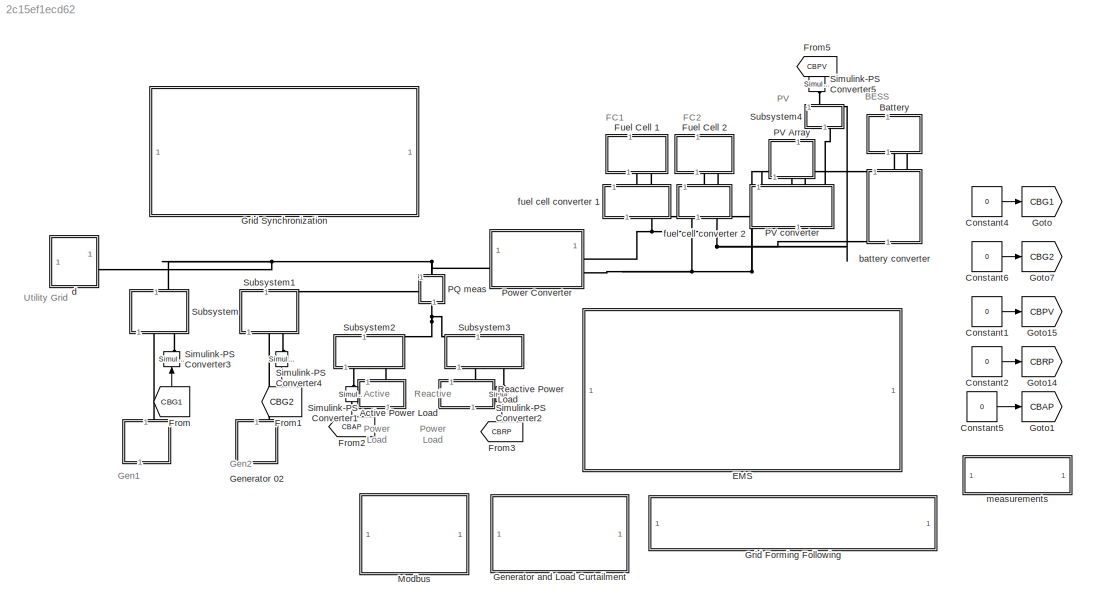
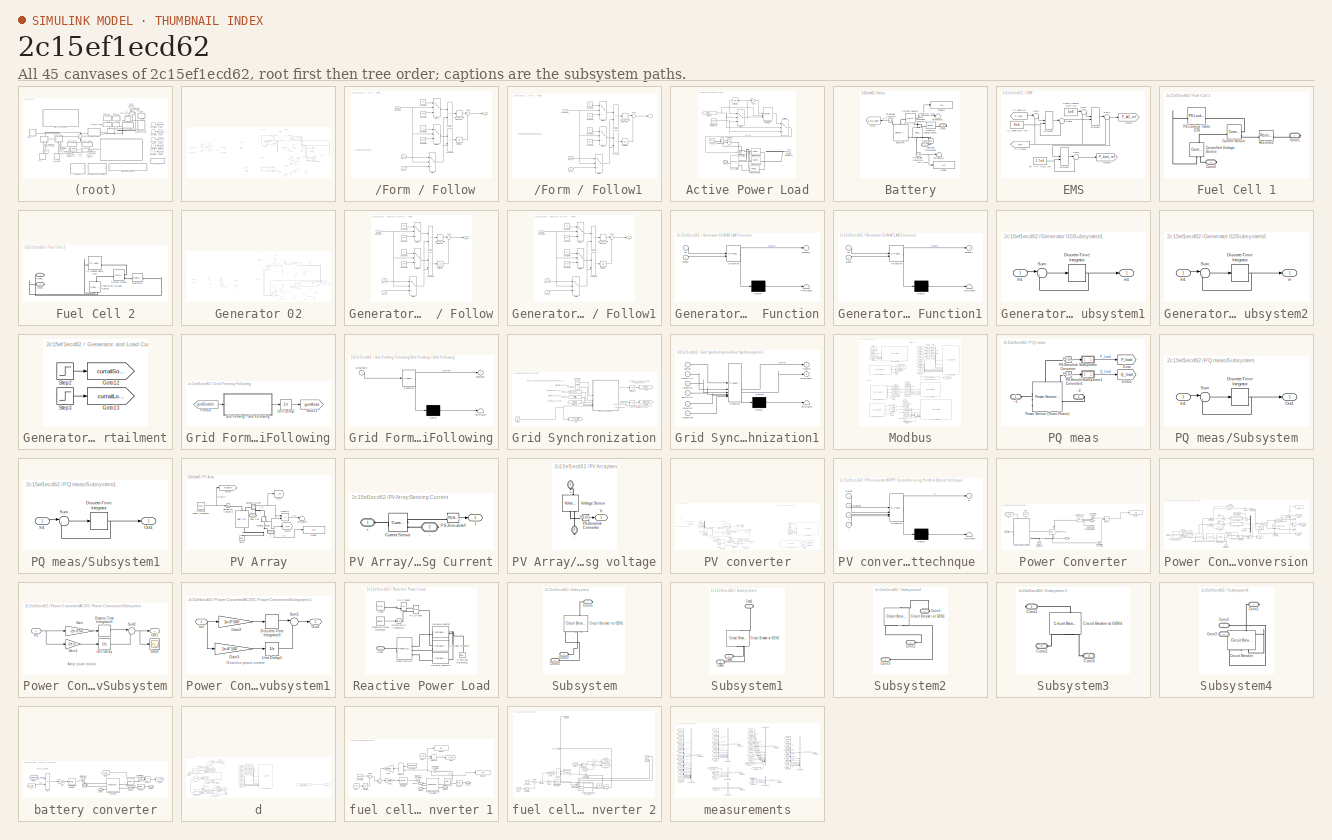
[diagram: thumbnail index - all 45 canvases of the model, root first then tree order]
MODEL slx_2c15ef1ecd62
KIND model
CONFIG AbsTol = auto
CONFIG EnableMultiTasking = off
CONFIG FixedStep = auto
CONFIG MaxStep = auto
CONFIG MinStep = auto
CONFIG RelTol = 1e-3
CONFIG SampleTimeConstraint = Unconstrained
CONFIG SolverName = VariableStepAuto
CONFIG StartTime = 0.0
CONFIG StopTime = 270
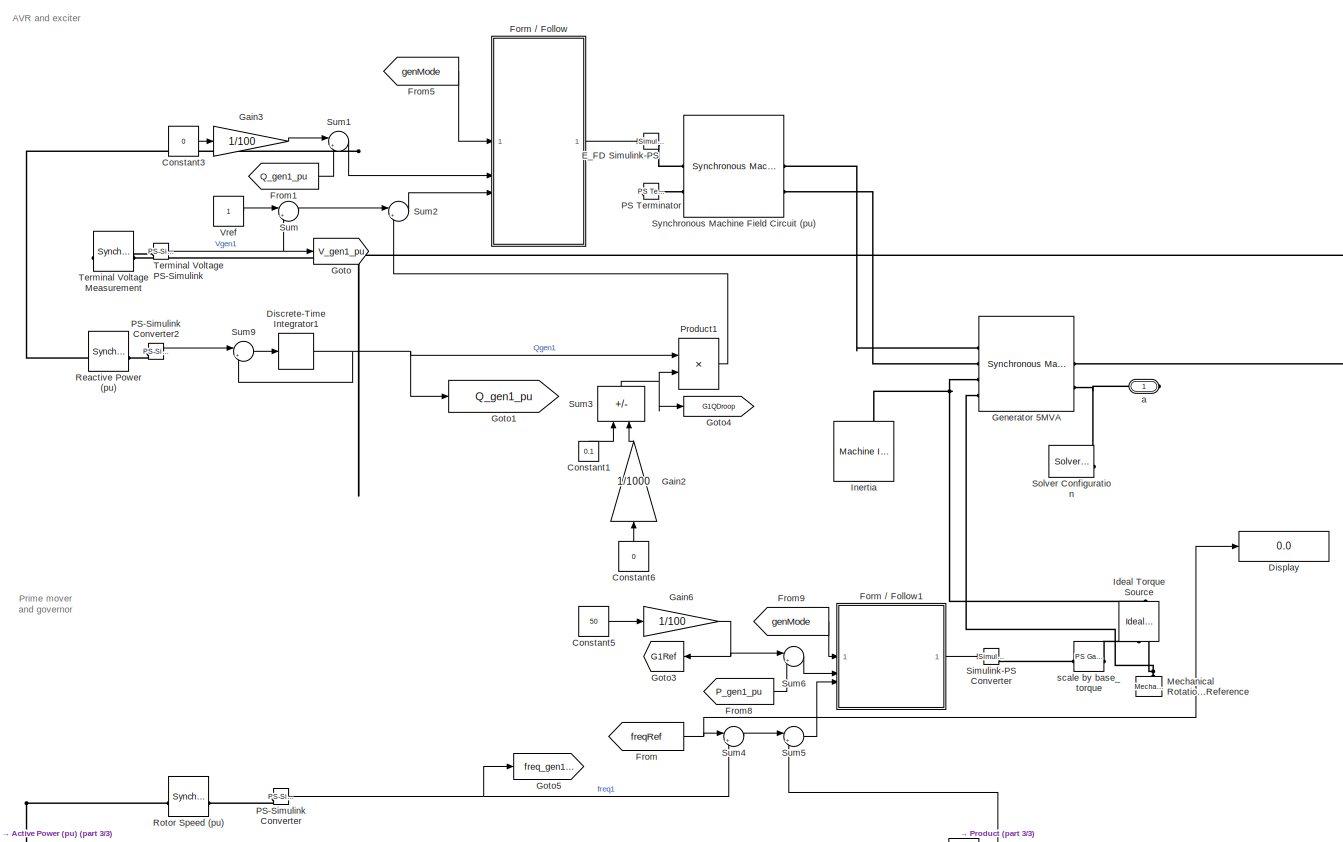
[diagram:   - part 1/3, right side, full height]
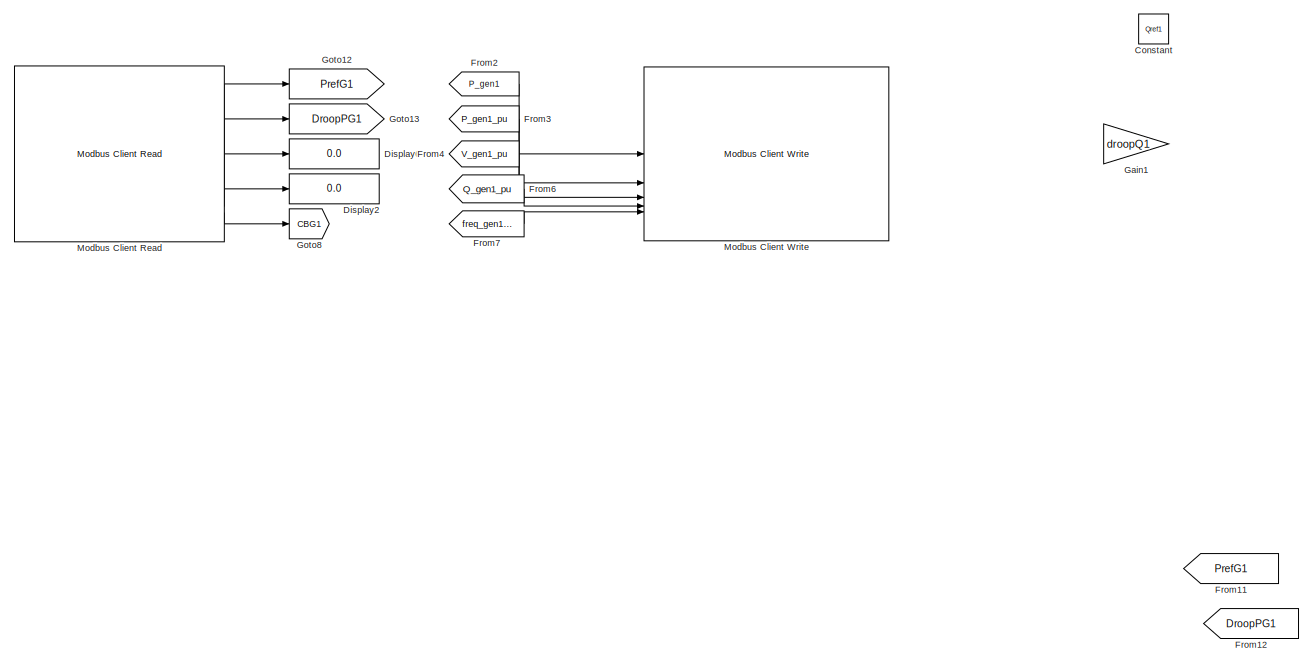
[diagram:   - part 2/3, middle left region]
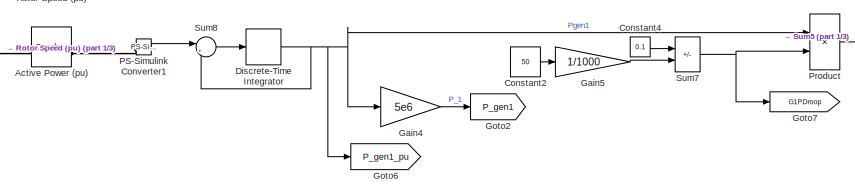
[diagram:   - part 3/3, bottom right region]
BLOCK [SubSystem]  
  NameLocation = right
  ShowPortLabels = none
BLOCK [Reference]  /Active Power (pu)   REF=ee_lib/Electromechanical/Synchronous/Synchronous Machine
Measurement
  SourceBlock = ee_lib/Electromechanical/Synchronous/Synchronous Machine\nMeasurement
  SourceType = Synchronous Machine\nMeasurement
BLOCK [Constant]  /Constant
  Value = Qref1
BLOCK [Constant]  /Constant1
  NameLocation = right
  Value = 0.1
BLOCK [Constant]  /Constant2
  Value = 50
BLOCK [Constant]  /Constant3
  Value = 0
BLOCK [Constant]  /Constant4
  Value = 0.1
BLOCK [Constant]  /Constant5
  Value = 50
BLOCK [Constant]  /Constant6
  NameLocation = right
  Value = 0
BLOCK [DiscreteIntegrator]  /Discrete-Time Integrator
  ICPrevOutput = DiscIntNeverNeededParam
  ICPrevScaledInput = DiscIntNeverNeededParam
  InitialConditionSetting = Auto
  SampleTime = Ts_AC
  gainval = 20
BLOCK [DiscreteIntegrator]  /Discrete-Time Integrator1
  ICPrevOutput = DiscIntNeverNeededParam
  ICPrevScaledInput = DiscIntNeverNeededParam
  InitialConditionSetting = Auto
  SampleTime = Ts_AC
  gainval = 20
BLOCK [Display]  /Display
  Decimation = 1
BLOCK [Display]  /Display2
  Commented = on
  Decimation = 4
  Format = decimal (Stored Integer)
BLOCK [Display]  /Display6
  Commented = on
  Decimation = 4
  Format = decimal (Stored Integer)
BLOCK [Reference]  /E_FD Simulink-PS   REF=nesl_utility/Simulink-PS
Converter
  SourceBlock = nesl_utility/Simulink-PS\nConverter
  SourceType = Simulink-PS\nConverter
BLOCK [SubSystem]  /Form // Follow
  NameLocation = top
BLOCK [Constant]  /Form // Follow/Constant1
  Value = 500
BLOCK [Constant]  /Form // Follow/Constant2
  Value = 0.5
BLOCK [Constant]  /Form // Follow/Constant3
  Value = 1000
BLOCK [Constant]  /Form // Follow/Constant4
BLOCK [DiscreteIntegrator]  /Form // Follow/Discrete-Time Integrator
  ICPrevOutput = DiscIntNeverNeededParam
  ICPrevScaledInput = DiscIntNeverNeededParam
  InitialCondition = 0.1
  InitialConditionSetting = Auto
  SampleTime = Ts_AC
  gainval = 1
BLOCK [Product]  /Form // Follow/Product
BLOCK [Product]  /Form // Follow/Product1
BLOCK [Inport]  /Form // Follow/Qerror
  Port = 2
BLOCK [Sum]  /Form // Follow/Sum4
  Inputs = |++
BLOCK [Switch]  /Form // Follow/Switch
  Criteria = u2 > Threshold
  InputSameDT = off
  SaturateOnIntegerOverflow = off
BLOCK [Switch]  /Form // Follow/Switch1
  Criteria = u2 > Threshold
  InputSameDT = off
  SaturateOnIntegerOverflow = off
BLOCK [Switch]  /Form // Follow/Switch2
  Criteria = u2 > Threshold
  InputSameDT = off
  SaturateOnIntegerOverflow = off
BLOCK [Outport]  /Form // Follow/T
BLOCK [UnitDelay]  /Form // Follow/Unit Delay
  HasFrameUpgradeWarning = on
  SampleTime = Ts_AC
BLOCK [Inport]  /Form // Follow/Verror
  Port = 3
BLOCK [Inport]  /Form // Follow/genMode
BLOCK [SubSystem]  /Form // Follow1
  NameLocation = top
BLOCK [Constant]  /Form // Follow1/Constant1
  Value = 100
BLOCK [Constant]  /Form // Follow1/Constant2
  Value = 0.3
BLOCK [Constant]  /Form // Follow1/Constant3
  Value = 200
BLOCK [Constant]  /Form // Follow1/Constant4
  Value = 0.1
BLOCK [DiscreteIntegrator]  /Form // Follow1/Discrete-Time Integrator
  ICPrevOutput = DiscIntNeverNeededParam
  ICPrevScaledInput = DiscIntNeverNeededParam
  InitialCondition = 0.1
  InitialConditionSetting = Auto
  SampleTime = Ts_AC
  gainval = 1
BLOCK [Inport]  /Form // Follow1/Ferror
  Port = 3
BLOCK [Inport]  /Form // Follow1/Perror
  Port = 2
BLOCK [Product]  /Form // Follow1/Product
BLOCK [Product]  /Form // Follow1/Product1
BLOCK [Sum]  /Form // Follow1/Sum4
  Inputs = |++
BLOCK [Switch]  /Form // Follow1/Switch
  Criteria = u2 > Threshold
  InputSameDT = off
  SaturateOnIntegerOverflow = off
BLOCK [Switch]  /Form // Follow1/Switch1
  Criteria = u2 > Threshold
  InputSameDT = off
  SaturateOnIntegerOverflow = off
BLOCK [Switch]  /Form // Follow1/Switch2
  Criteria = u2 > Threshold
  InputSameDT = off
  SaturateOnIntegerOverflow = off
BLOCK [Outport]  /Form // Follow1/T
BLOCK [UnitDelay]  /Form // Follow1/Unit Delay
  HasFrameUpgradeWarning = on
  SampleTime = Ts_AC
BLOCK [Inport]  /Form // Follow1/genMode
BLOCK [From]  /From
  GotoTag = freqRef
  TagVisibility = global
BLOCK [From]  /From1
  GotoTag = Q_gen1_pu
  TagVisibility = global
BLOCK [From]  /From11
  Commented = on
  GotoTag = PrefG1
BLOCK [From]  /From12
  Commented = on
  GotoTag = DroopPG1
BLOCK [From]  /From2
  Commented = on
  GotoTag = P_gen1
  TagVisibility = global
BLOCK [From]  /From3
  Commented = on
  GotoTag = P_gen1_pu
  TagVisibility = global
BLOCK [From]  /From4
  Commented = on
  GotoTag = V_gen1_pu
  TagVisibility = global
BLOCK [From]  /From5
  GotoTag = genMode
  TagVisibility = global
BLOCK [From]  /From6
  Commented = on
  GotoTag = Q_gen1_pu
  TagVisibility = global
BLOCK [From]  /From7
  Commented = on
  GotoTag = freq_gen1_pu
  TagVisibility = global
BLOCK [From]  /From8
  GotoTag = P_gen1_pu
  TagVisibility = global
BLOCK [From]  /From9
  GotoTag = genMode
  TagVisibility = global
BLOCK [Gain]  /Gain1
  Gain = droopQ1
BLOCK [Gain]  /Gain2
  Gain = 1/1000
  NameLocation = right
BLOCK [Gain]  /Gain3
  Gain = 1/100
BLOCK [Gain]  /Gain4
  Gain = 5e6
BLOCK [Gain]  /Gain5
  Gain = 1/1000
BLOCK [Gain]  /Gain6
  Gain = 1/100
BLOCK [Reference]  /Generator 5MVA  REF=ee_lib/Electromechanical/Synchronous/Synchronous Machine
Salient Pole
  SourceBlock = ee_lib/Electromechanical/Synchronous/Synchronous Machine\nSalient Pole
  SourceType = Synchronous Machine\nSalient Pole
BLOCK [Goto]  /Goto
  GotoTag = V_gen1_pu
  TagVisibility = global
BLOCK [Goto]  /Goto1
  GotoTag = Q_gen1_pu
  TagVisibility = global
BLOCK [Goto]  /Goto12
  Commented = on
  GotoTag = PrefG1
  TagVisibility = global
BLOCK [Goto]  /Goto13
  Commented = on
  GotoTag = DroopPG1
  TagVisibility = global
BLOCK [Goto]  /Goto2
  GotoTag = P_gen1
  TagVisibility = global
BLOCK [Goto]  /Goto3
  GotoTag = G1Ref
  TagVisibility = global
BLOCK [Goto]  /Goto4
  GotoTag = G1QDroop
  TagVisibility = global
BLOCK [Goto]  /Goto5
  GotoTag = freq_gen1_pu
  TagVisibility = global
BLOCK [Goto]  /Goto6
  GotoTag = P_gen1_pu
  TagVisibility = global
BLOCK [Goto]  /Goto7
  GotoTag = G1PDroop
  TagVisibility = global
BLOCK [Goto]  /Goto8
  Commented = on
  GotoTag = CBG1
  TagVisibility = global
BLOCK [Reference]  /Ideal Torque Source  REF=fl_lib/Mechanical/Mechanical Sources/Ideal Torque Source
  NameLocation = left
  SourceBlock = fl_lib/Mechanical/Mechanical Sources/Ideal Torque Source
  SourceType = Ideal Torque Source
BLOCK [Reference]  /Inertia  REF=ee_lib/Electromechanical/Mechanical/Machine
Inertia
  NameLocation = right
  SourceBlock = ee_lib/Electromechanical/Mechanical/Machine\nInertia
  SourceType = Machine\nInertia
BLOCK [Reference]  /Mechanical Rotational Reference  REF=fl_lib/Mechanical/Rotational Elements/Mechanical
Rotational Reference
  NameLocation = right
  SourceBlock = fl_lib/Mechanical/Rotational Elements/Mechanical\nRotational Reference
  SourceType = Mechanical\nRotational Reference
BLOCK [Reference]  /Modbus Client Read  REF=modbuslib/Modbus Client Read
  Commented = on
  SourceBlock = modbuslib/Modbus Client Read
  SourceType = modbusRead
BLOCK [Reference]  /Modbus Client Write  REF=modbuslib/Modbus Client Write
  Commented = on
  SourceBlock = modbuslib/Modbus Client Write
  SourceType = modbusWrite
BLOCK [Reference]  /PS Terminator  REF=fl_lib/Physical Signals/Sinks/PS Terminator
  NameLocation = top
  SourceBlock = fl_lib/Physical Signals/Sinks/PS Terminator
  SourceType = PS Terminator
BLOCK [Reference]  /PS-Simulink Converter  REF=nesl_utility/PS-Simulink
Converter
  SourceBlock = nesl_utility/PS-Simulink\nConverter
  SourceType = PS-Simulink\nConverter
BLOCK [Reference]  /PS-Simulink Converter1  REF=nesl_utility/PS-Simulink
Converter
  SourceBlock = nesl_utility/PS-Simulink\nConverter
  SourceType = PS-Simulink\nConverter
BLOCK [Reference]  /PS-Simulink Converter2  REF=nesl_utility/PS-Simulink
Converter
  SourceBlock = nesl_utility/PS-Simulink\nConverter
  SourceType = PS-Simulink\nConverter
BLOCK [Product]  /Product
BLOCK [Product]  /Product1
BLOCK [Reference]  /Reactive Power (pu)  REF=ee_lib/Electromechanical/Synchronous/Synchronous Machine
Measurement
  SourceBlock = ee_lib/Electromechanical/Synchronous/Synchronous Machine\nMeasurement
  SourceType = Synchronous Machine\nMeasurement
BLOCK [Reference]  /Rotor Speed (pu)  REF=ee_lib/Electromechanical/Synchronous/Synchronous Machine
Measurement
  SourceBlock = ee_lib/Electromechanical/Synchronous/Synchronous Machine\nMeasurement
  SourceType = Synchronous Machine\nMeasurement
BLOCK [Reference]  /Simulink-PS Converter  REF=nesl_utility/Simulink-PS
Converter
  SourceBlock = nesl_utility/Simulink-PS\nConverter
  SourceType = Simulink-PS\nConverter
BLOCK [Reference]  /Solver Configuration  REF=nesl_utility/Solver
Configuration
  SourceBlock = nesl_utility/Solver\nConfiguration
  SourceType = Solver\nConfiguration
BLOCK [Sum]  /Sum
  Inputs = |+-
BLOCK [Sum]  /Sum1
  Inputs = |+-
BLOCK [Sum]  /Sum2
  Inputs = |+-
BLOCK [Sum]  /Sum3
  IconShape = rectangular
  Inputs = +-
  NameLocation = right
BLOCK [Sum]  /Sum4
  Inputs = |+-
BLOCK [Sum]  /Sum5
  Inputs = |+-
BLOCK [Sum]  /Sum6
  Inputs = |+-
BLOCK [Sum]  /Sum7
  IconShape = rectangular
  Inputs = +-
BLOCK [Sum]  /Sum8
  Inputs = |+-
BLOCK [Sum]  /Sum9
  Inputs = |+-
BLOCK [Reference]  /Synchronous Machine Field Circuit (pu)  REF=ee_lib/Electromechanical/Synchronous/Synchronous Machine
Field Circuit
  SourceBlock = ee_lib/Electromechanical/Synchronous/Synchronous Machine\nField Circuit
  SourceType = Synchronous Machine\nField Circuit
BLOCK [Reference]  /Terminal Voltage Measurement  REF=ee_lib/Electromechanical/Synchronous/Synchronous Machine
Measurement
  SourceBlock = ee_lib/Electromechanical/Synchronous/Synchronous Machine\nMeasurement
  SourceType = Synchronous Machine\nMeasurement
BLOCK [Reference]  /Terminal Voltage PS-Simulink  REF=nesl_utility/PS-Simulink
Converter
  SourceBlock = nesl_utility/PS-Simulink\nConverter
  SourceType = PS-Simulink\nConverter
BLOCK [Constant]  /Vref
  NameLocation = top
  SampleTime = Ts_AC
BLOCK [PMIOPort]  /a
  Side = Right
BLOCK [Reference]  /scale by base_torque  REF=fl_lib/Physical Signals/Functions/PS Gain
  SourceBlock = fl_lib/Physical Signals/Functions/PS Gain
  SourceType = PS Gain
BLOCK [SubSystem] Active Power Load
  NameLocation = left
  ShowPortLabels = none
BLOCK [Reference] Active Power Load/Active Power Reference  REF=simulink/Sources/Repeating
Sequence
Interpolated
  SourceBlock = simulink/Sources/Repeating\nSequence\nInterpolated
  SourceType = Repeating Sequence Interpolated
BLOCK [PMIOPort] Active Power Load/Conn1
  Side = Left
BLOCK [DiscreteIntegrator] Active Power Load/Discrete-Time Integrator
  ExternalReset = rising
  ICPrevOutput = DiscIntNeverNeededParam
  ICPrevScaledInput = DiscIntNeverNeededParam
  InitialConditionSetting = Auto
  InitialConditionSource = external
  LimitOutput = on
  LowerSaturationLimit = 6e6
  SampleTime = -1
  gainval = 1e-2
BLOCK [Reference] Active Power Load/Electrical Reference2  REF=fl_lib/Electrical/Electrical Elements/Electrical Reference
  NameLocation = top
  SourceBlock = fl_lib/Electrical/Electrical Elements/Electrical Reference
  SourceType = Electrical Reference
BLOCK [From] Active Power Load/From10
  GotoTag = curtailLoad
  TagVisibility = global
BLOCK [Gain] Active Power Load/Gain
  Gain = -1
BLOCK [Reference] Active Power Load/PS Divide1  REF=fl_lib/Physical Signals/Functions/PS Divide
  SourceBlock = fl_lib/Physical Signals/Functions/PS Divide
  SourceType = PS Divide
BLOCK [Reference] Active Power Load/PS Product1  REF=fl_lib/Physical Signals/Functions/PS Product
  SourceBlock = fl_lib/Physical Signals/Functions/PS Product
  SourceType = PS Product
BLOCK [Reference] Active Power Load/Phase Splitter  REF=ee_lib/Connectors &
References/Phase Splitter
  SourceBlock = ee_lib/Connectors &\nReferences/Phase Splitter
  SourceType = Phase Splitter
BLOCK [Reference] Active Power Load/Simulink-PS Converter2  REF=nesl_utility/Simulink-PS
Converter
  SourceBlock = nesl_utility/Simulink-PS\nConverter
  SourceType = Simulink-PS\nConverter
BLOCK [Switch] Active Power Load/Switch
  Criteria = u2 > Threshold
  InputSameDT = off
  SaturateOnIntegerOverflow = off
BLOCK [Switch] Active Power Load/Switch 
  Criteria = u2 > Threshold
  InputSameDT = off
  SaturateOnIntegerOverflow = off
BLOCK [UnitDelay] Active Power Load/Unit Delay
  HasFrameUpgradeWarning = on
  SampleTime = -1
BLOCK [Reference] Active Power Load/Variable Resistor  REF=fl_lib/Electrical/Electrical Elements/Variable Resistor
  SourceBlock = fl_lib/Electrical/Electrical Elements/Variable Resistor
  SourceType = Variable Resistor
BLOCK [Reference] Active Power Load/Variable Resistor1  REF=fl_lib/Electrical/Electrical Elements/Variable Resistor
  SourceBlock = fl_lib/Electrical/Electrical Elements/Variable Resistor
  SourceType = Variable Resistor
BLOCK [Reference] Active Power Load/Variable Resistor2  REF=fl_lib/Electrical/Electrical Elements/Variable Resistor
  SourceBlock = fl_lib/Electrical/Electrical Elements/Variable Resistor
  SourceType = Variable Resistor
BLOCK [Reference] Active Power Load/Vnom1  REF=fl_lib/Physical Signals/Sources/PS Constant
  SourceBlock = fl_lib/Physical Signals/Sources/PS Constant
  SourceType = PS Constant
BLOCK [SubSystem] Battery
  NameLocation = left
  ShowPortLabels = none
BLOCK [Reference] Battery/Battery1  REF=batteryecm_lib/Battery
(Table-Based)
  NameLocation = left
  SourceBlock = batteryecm_lib/Battery\n(Table-Based)
  SourceType = Battery\n(Table-Based)
BLOCK [PMIOPort] Battery/Conn1
  Side = Right
BLOCK [PMIOPort] Battery/Conn2
  Port = 2
  Side = Right
BLOCK [Reference] Battery/Current Sensor1  REF=fl_lib/Electrical/Electrical Sensors/Current Sensor
  SourceBlock = fl_lib/Electrical/Electrical Sensors/Current Sensor
  SourceType = Current Sensor
BLOCK [Display] Battery/Display
  Decimation = 1
BLOCK [Display] Battery/Display1
  Decimation = 1
BLOCK [Reference] Battery/Electrical Reference1  REF=fl_lib/Electrical/Electrical Elements/Electrical Reference
  NameLocation = top
  SourceBlock = fl_lib/Electrical/Electrical Elements/Electrical Reference
  SourceType = Electrical Reference
BLOCK [Goto] Battery/Goto
  GotoTag = SOC_batt
  NameLocation = top
  TagVisibility = global
BLOCK [Reference] Battery/PS-Simulink Converter  REF=nesl_utility/PS-Simulink
Converter
  NameLocation = top
  SourceBlock = nesl_utility/PS-Simulink\nConverter
  SourceType = PS-Simulink\nConverter
BLOCK [Reference] Battery/PS-Simulink Converter1  REF=nesl_utility/PS-Simulink
Converter
  SourceBlock = nesl_utility/PS-Simulink\nConverter
  SourceType = PS-Simulink\nConverter
BLOCK [Reference] Battery/PS-Simulink Converter4  REF=nesl_utility/PS-Simulink
Converter
  SourceBlock = nesl_utility/PS-Simulink\nConverter
  SourceType = PS-Simulink\nConverter
BLOCK [Reference] Battery/Resistor1  REF=fl_lib/Electrical/Electrical Elements/Resistor
  SourceBlock = fl_lib/Electrical/Electrical Elements/Resistor
  SourceType = Resistor
BLOCK [Terminator] Battery/Terminator1
BLOCK [Terminator] Battery/Terminator2
BLOCK [Reference] Battery/Voltage Sensor  REF=fl_lib/Electrical/Electrical Sensors/Voltage Sensor
  NameLocation = right
  SourceBlock = fl_lib/Electrical/Electrical Sensors/Voltage Sensor
  SourceType = Voltage Sensor
BLOCK [Constant] Constant1
  Value = 0
BLOCK [Constant] Constant2
  Value = 0
BLOCK [Constant] Constant4
  Value = 0
BLOCK [Constant] Constant5
  Value = 0
BLOCK [Constant] Constant6
  Value = 0
BLOCK [SubSystem] EMS
BLOCK [From] EMS/AC Load (W)
  GotoTag = P_load
  NameLocation = top
  TagVisibility = global
BLOCK [Constant] EMS/AC Load Limit (W)
  SampleTime = Ts_DC
  Value = 8e6
BLOCK [Constant] EMS/FC + PV limit (W)
  SampleTime = Ts_DC
  Value = 1.7e6
BLOCK [Goto] EMS/Goto14
  GotoTag = P_AC_ref
  TagVisibility = global
BLOCK [Goto] EMS/Goto15
  GotoTag = P_batt_ref
  TagVisibility = global
BLOCK [MinMax] EMS/MinMax1
  Function = max
  Inputs = 2
BLOCK [MinMax] EMS/MinMax2
  Inputs = 2
BLOCK [MinMax] EMS/MinMax3
  Function = max
  Inputs = 2
BLOCK [From] EMS/PV Power
  GotoTag = P_PV
  TagVisibility = global
BLOCK [Constant] EMS/Power Transfer Limit (W)
  NameLocation = top
  SampleTime = Ts_DC
  Value = 5e6
BLOCK [Sum] EMS/Sum1
  Inputs = |+-
BLOCK [Sum] EMS/Sum2
  Inputs = |+-
BLOCK [Sum] EMS/Sum3
  Inputs = |+-
BLOCK [Sum] EMS/Sum4
  Inputs = |++
BLOCK [Sum] EMS/Sum5
  Inputs = |+-
BLOCK [From] From
  GotoTag = CBG1
  NameLocation = right
BLOCK [From] From1
  GotoTag = CBG2
  NameLocation = right
BLOCK [From] From2
  GotoTag = CBAP
  NameLocation = right
BLOCK [From] From3
  GotoTag = CBRP
  NameLocation = right
BLOCK [From] From5
  GotoTag = CBPV
  NameLocation = left
BLOCK [SubSystem] Fuel Cell 1
  NameLocation = left
  ShowPortLabels = none
BLOCK [PMIOPort] Fuel Cell 1/Conn1
  Side = Right
BLOCK [PMIOPort] Fuel Cell 1/Conn2
  Port = 2
  Side = Right
BLOCK [Reference] Fuel Cell 1/Controlled Voltage Source  REF=fl_lib/Electrical/Electrical Sources/Controlled Voltage
Source
  NameLocation = right
  SourceBlock = fl_lib/Electrical/Electrical Sources/Controlled Voltage\nSource
  SourceType = Controlled Voltage\nSource
BLOCK [Reference] Fuel Cell 1/Current Sensor  REF=fl_lib/Electrical/Electrical Sensors/Current Sensor
  SourceBlock = fl_lib/Electrical/Electrical Sensors/Current Sensor
  SourceType = Current Sensor
BLOCK [Reference] Fuel Cell 1/PS Lookup Table (1D)  REF=fl_lib/Physical Signals/Lookup Tables/PS Lookup Table (1D)
  NameLocation = top
  SourceBlock = fl_lib/Physical Signals/Lookup Tables/PS Lookup Table (1D)
  SourceType = PS Lookup Table (1D)
BLOCK [Reference] Fuel Cell 1/Resistor2  REF=fl_lib/Electrical/Electrical Elements/Resistor
  SourceBlock = fl_lib/Electrical/Electrical Elements/Resistor
  SourceType = Resistor
BLOCK [SubSystem] Fuel Cell 2
  NameLocation = left
  ShowPortLabels = none
BLOCK [PMIOPort] Fuel Cell 2/Conn1
  Side = Right
BLOCK [PMIOPort] Fuel Cell 2/Conn2
  Port = 2
  Side = Right
BLOCK [Reference] Fuel Cell 2/Controlled Voltage Source  REF=fl_lib/Electrical/Electrical Sources/Controlled Voltage
Source
  NameLocation = right
  SourceBlock = fl_lib/Electrical/Electrical Sources/Controlled Voltage\nSource
  SourceType = Controlled Voltage\nSource
BLOCK [Reference] Fuel Cell 2/Current Sensor  REF=fl_lib/Electrical/Electrical Sensors/Current Sensor
  SourceBlock = fl_lib/Electrical/Electrical Sensors/Current Sensor
  SourceType = Current Sensor
BLOCK [Reference] Fuel Cell 2/PS Lookup Table (1D)  REF=fl_lib/Physical Signals/Lookup Tables/PS Lookup Table (1D)
  NameLocation = top
  SourceBlock = fl_lib/Physical Signals/Lookup Tables/PS Lookup Table (1D)
  SourceType = PS Lookup Table (1D)
BLOCK [Reference] Fuel Cell 2/Resistor2  REF=fl_lib/Electrical/Electrical Elements/Resistor
  SourceBlock = fl_lib/Electrical/Electrical Elements/Resistor
  SourceType = Resistor
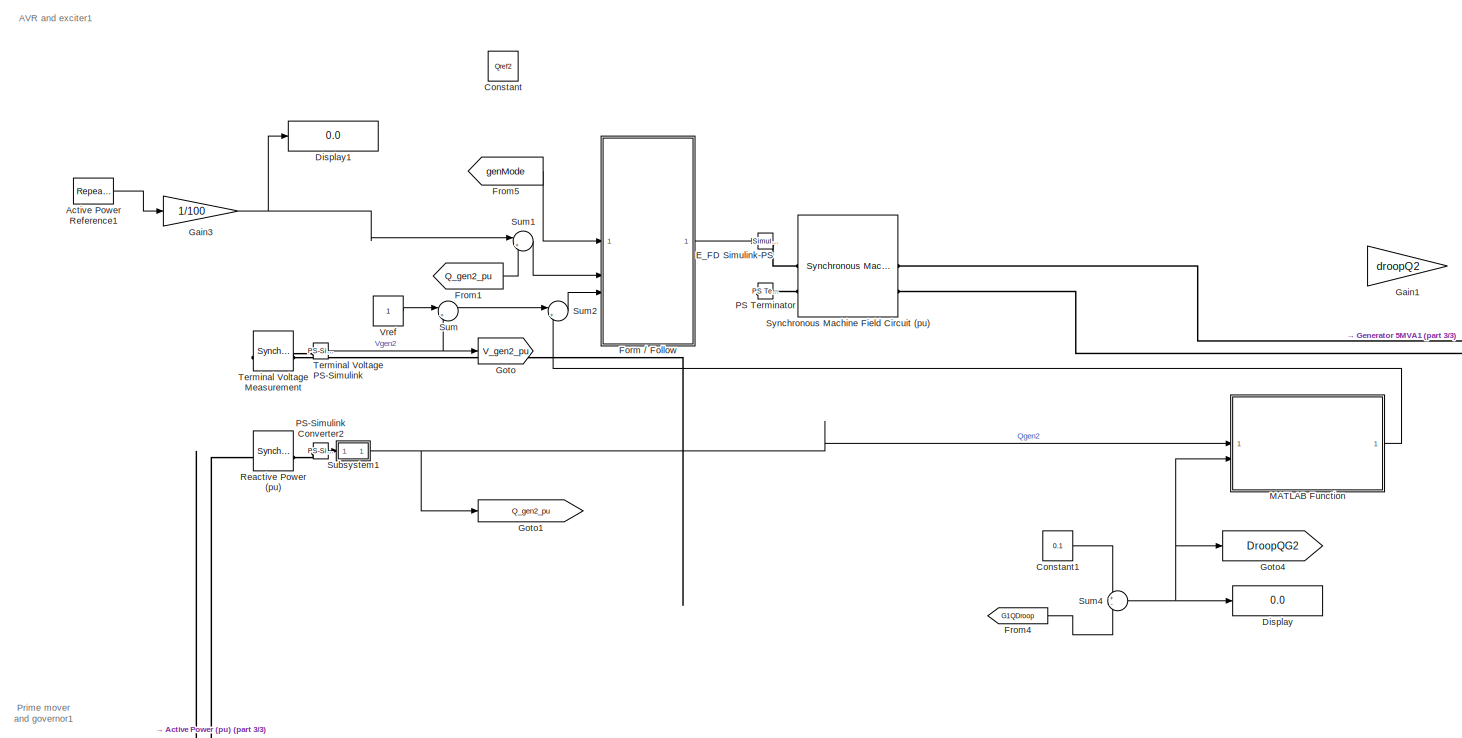
[diagram: Generator 02 - part 1/3, top right region]
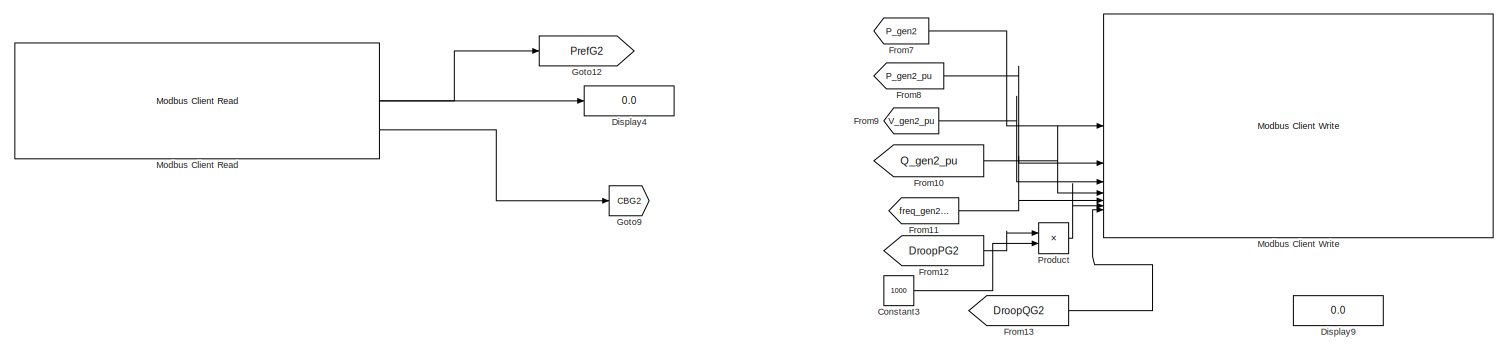
[diagram: Generator 02 - part 2/3, middle left region]
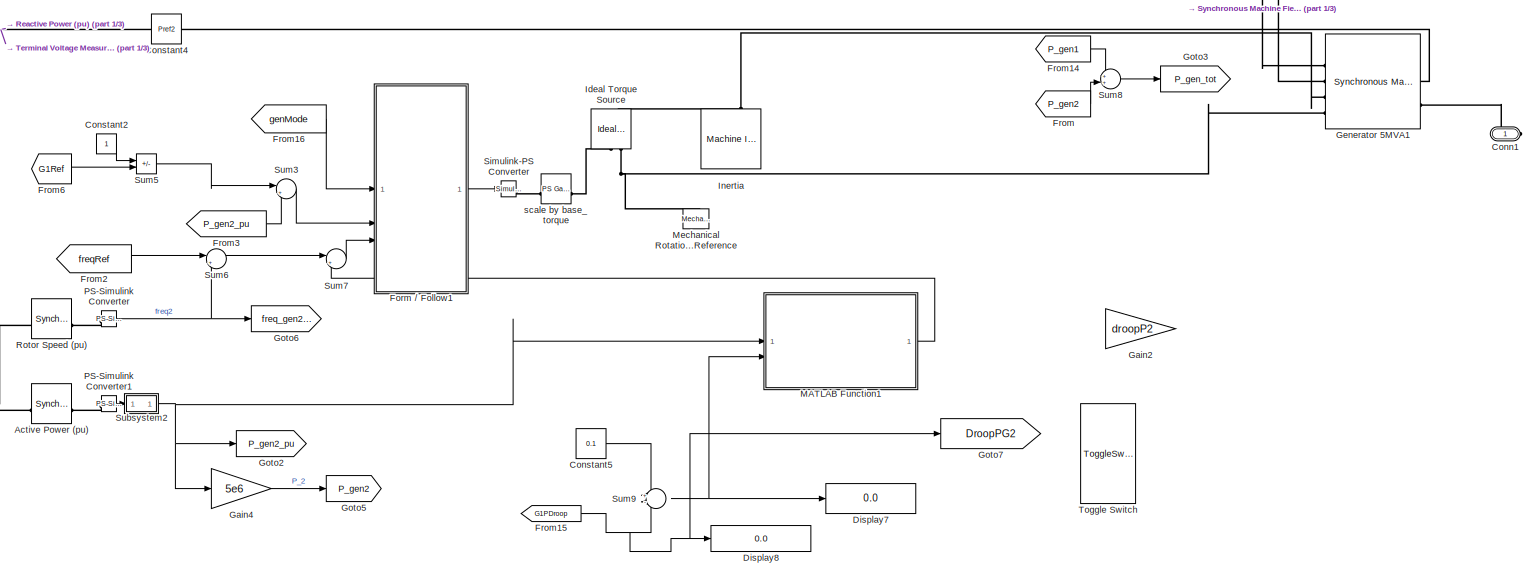
[diagram: Generator 02 - part 3/3, bottom right region]
BLOCK [SubSystem] Generator 02
  NameLocation = right
  ShowPortLabels = none
BLOCK [Reference] Generator 02/Active Power (pu)   REF=ee_lib/Electromechanical/Synchronous/Synchronous Machine
Measurement
  SourceBlock = ee_lib/Electromechanical/Synchronous/Synchronous Machine\nMeasurement
  SourceType = Synchronous Machine\nMeasurement
BLOCK [Reference] Generator 02/Active Power Reference1  REF=simulink/Sources/Repeating
Sequence
Interpolated
  SourceBlock = simulink/Sources/Repeating\nSequence\nInterpolated
  SourceType = Repeating Sequence Interpolated
BLOCK [PMIOPort] Generator 02/Conn1
  Side = Right
BLOCK [Constant] Generator 02/Constant
  Value = Qref2
BLOCK [Constant] Generator 02/Constant1
  Value = 0.1
BLOCK [Constant] Generator 02/Constant2
BLOCK [Constant] Generator 02/Constant3
  Commented = on
  Value = 1000
BLOCK [Constant] Generator 02/Constant4
  Value = Pref2
BLOCK [Constant] Generator 02/Constant5
  Value = 0.1
BLOCK [Display] Generator 02/Display
  Decimation = 1
BLOCK [Display] Generator 02/Display1
  Decimation = 1
BLOCK [Display] Generator 02/Display4
  Commented = on
  Decimation = 4
  Format = decimal (Stored Integer)
BLOCK [Display] Generator 02/Display7
  Decimation = 1
BLOCK [Display] Generator 02/Display8
  Decimation = 1
BLOCK [Display] Generator 02/Display9
  Commented = on
  Decimation = 1
BLOCK [Reference] Generator 02/E_FD Simulink-PS   REF=nesl_utility/Simulink-PS
Converter
  SourceBlock = nesl_utility/Simulink-PS\nConverter
  SourceType = Simulink-PS\nConverter
BLOCK [SubSystem] Generator 02/Form // Follow
  NameLocation = top
BLOCK [Constant] Generator 02/Form // Follow/Constant1
  Value = 500
BLOCK [Constant] Generator 02/Form // Follow/Constant2
  Value = 0.5
BLOCK [Constant] Generator 02/Form // Follow/Constant3
  Value = 1000
BLOCK [Constant] Generator 02/Form // Follow/Constant4
BLOCK [DiscreteIntegrator] Generator 02/Form // Follow/Discrete-Time Integrator
  ICPrevOutput = DiscIntNeverNeededParam
  ICPrevScaledInput = DiscIntNeverNeededParam
  InitialCondition = 0.1
  InitialConditionSetting = Auto
  SampleTime = Ts_AC
  gainval = 1
BLOCK [Product] Generator 02/Form // Follow/Product
BLOCK [Product] Generator 02/Form // Follow/Product1
BLOCK [Inport] Generator 02/Form // Follow/Qerror
  Port = 2
BLOCK [Sum] Generator 02/Form // Follow/Sum4
  Inputs = |++
BLOCK [Switch] Generator 02/Form // Follow/Switch
  Criteria = u2 > Threshold
  InputSameDT = off
  SaturateOnIntegerOverflow = off
BLOCK [Switch] Generator 02/Form // Follow/Switch1
  Criteria = u2 > Threshold
  InputSameDT = off
  SaturateOnIntegerOverflow = off
BLOCK [Switch] Generator 02/Form // Follow/Switch2
  Criteria = u2 > Threshold
  InputSameDT = off
  SaturateOnIntegerOverflow = off
BLOCK [Outport] Generator 02/Form // Follow/T
BLOCK [UnitDelay] Generator 02/Form // Follow/Unit Delay
  HasFrameUpgradeWarning = on
  SampleTime = Ts_AC
BLOCK [Inport] Generator 02/Form // Follow/Verror
  Port = 3
BLOCK [Inport] Generator 02/Form // Follow/genMode
BLOCK [SubSystem] Generator 02/Form // Follow1
  NameLocation = top
BLOCK [Constant] Generator 02/Form // Follow1/Constant1
  Value = 100
BLOCK [Constant] Generator 02/Form // Follow1/Constant2
  Value = 0.3
BLOCK [Constant] Generator 02/Form // Follow1/Constant3
  Value = 200
BLOCK [Constant] Generator 02/Form // Follow1/Constant4
  Value = 0.1
BLOCK [DiscreteIntegrator] Generator 02/Form // Follow1/Discrete-Time Integrator
  ICPrevOutput = DiscIntNeverNeededParam
  ICPrevScaledInput = DiscIntNeverNeededParam
  InitialCondition = 0.1
  InitialConditionSetting = Auto
  SampleTime = Ts_AC
  gainval = 1
BLOCK [Inport] Generator 02/Form // Follow1/Ferror
  Port = 3
BLOCK [Inport] Generator 02/Form // Follow1/Perror
  Port = 2
BLOCK [Product] Generator 02/Form // Follow1/Product
BLOCK [Product] Generator 02/Form // Follow1/Product1
BLOCK [Sum] Generator 02/Form // Follow1/Sum4
  Inputs = |++
BLOCK [Switch] Generator 02/Form // Follow1/Switch
  Criteria = u2 > Threshold
  InputSameDT = off
  SaturateOnIntegerOverflow = off
BLOCK [Switch] Generator 02/Form // Follow1/Switch1
  Criteria = u2 > Threshold
  InputSameDT = off
  SaturateOnIntegerOverflow = off
BLOCK [Switch] Generator 02/Form // Follow1/Switch2
  Criteria = u2 > Threshold
  InputSameDT = off
  SaturateOnIntegerOverflow = off
BLOCK [Outport] Generator 02/Form // Follow1/T
BLOCK [UnitDelay] Generator 02/Form // Follow1/Unit Delay
  HasFrameUpgradeWarning = on
  SampleTime = Ts_AC
BLOCK [Inport] Generator 02/Form // Follow1/genMode
BLOCK [From] Generator 02/From
  GotoTag = P_gen2
  TagVisibility = global
BLOCK [From] Generator 02/From1
  GotoTag = Q_gen2_pu
  TagVisibility = global
BLOCK [From] Generator 02/From10
  Commented = on
  GotoTag = Q_gen2_pu
  TagVisibility = global
BLOCK [From] Generator 02/From11
  Commented = on
  GotoTag = freq_gen2_pu
  TagVisibility = global
BLOCK [From] Generator 02/From12
  Commented = on
  GotoTag = DroopPG2
  TagVisibility = global
BLOCK [From] Generator 02/From13
  Commented = on
  GotoTag = DroopQG2
  TagVisibility = global
BLOCK [From] Generator 02/From14
  GotoTag = P_gen1
  TagVisibility = global
BLOCK [From] Generator 02/From15
  GotoTag = G1PDroop
  TagVisibility = global
BLOCK [From] Generator 02/From16
  GotoTag = genMode
  TagVisibility = global
BLOCK [From] Generator 02/From2
  GotoTag = freqRef
  TagVisibility = global
BLOCK [From] Generator 02/From3
  GotoTag = P_gen2_pu
  TagVisibility = global
BLOCK [From] Generator 02/From4
  GotoTag = G1QDroop
  TagVisibility = global
BLOCK [From] Generator 02/From5
  GotoTag = genMode
  TagVisibility = global
BLOCK [From] Generator 02/From6
  GotoTag = G1Ref
  TagVisibility = global
BLOCK [From] Generator 02/From7
  Commented = on
  GotoTag = P_gen2
  TagVisibility = global
BLOCK [From] Generator 02/From8
  Commented = on
  GotoTag = P_gen2_pu
  TagVisibility = global
BLOCK [From] Generator 02/From9
  Commented = on
  GotoTag = V_gen2_pu
  TagVisibility = global
BLOCK [Gain] Generator 02/Gain1
  Gain = droopQ2
BLOCK [Gain] Generator 02/Gain2
  Commented = on
  Gain = droopP2
BLOCK [Gain] Generator 02/Gain3
  Gain = 1/100
BLOCK [Gain] Generator 02/Gain4
  Gain = 5e6
BLOCK [Reference] Generator 02/Generator 5MVA1  REF=ee_lib/Electromechanical/Synchronous/Synchronous Machine
Salient Pole
  SourceBlock = ee_lib/Electromechanical/Synchronous/Synchronous Machine\nSalient Pole
  SourceType = Synchronous Machine\nSalient Pole
BLOCK [Goto] Generator 02/Goto
  GotoTag = V_gen2_pu
  TagVisibility = global
BLOCK [Goto] Generator 02/Goto1
  GotoTag = Q_gen2_pu
  TagVisibility = global
BLOCK [Goto] Generator 02/Goto12
  Commented = on
  GotoTag = PrefG2
  TagVisibility = global
BLOCK [Goto] Generator 02/Goto2
  GotoTag = P_gen2_pu
  TagVisibility = global
BLOCK [Goto] Generator 02/Goto3
  GotoTag = P_gen_tot
  TagVisibility = global
BLOCK [Goto] Generator 02/Goto4
  GotoTag = DroopQG2
  TagVisibility = global
BLOCK [Goto] Generator 02/Goto5
  GotoTag = P_gen2
  TagVisibility = global
BLOCK [Goto] Generator 02/Goto6
  GotoTag = freq_gen2_pu
  TagVisibility = global
BLOCK [Goto] Generator 02/Goto7
  GotoTag = DroopPG2
  TagVisibility = global
BLOCK [Goto] Generator 02/Goto9
  Commented = on
  GotoTag = CBG2
  TagVisibility = global
BLOCK [Reference] Generator 02/Ideal Torque Source  REF=fl_lib/Mechanical/Mechanical Sources/Ideal Torque Source
  NameLocation = left
  SourceBlock = fl_lib/Mechanical/Mechanical Sources/Ideal Torque Source
  SourceType = Ideal Torque Source
BLOCK [Reference] Generator 02/Inertia  REF=ee_lib/Electromechanical/Mechanical/Machine
Inertia
  NameLocation = right
  SourceBlock = ee_lib/Electromechanical/Mechanical/Machine\nInertia
  SourceType = Machine\nInertia
BLOCK [SubSystem] Generator 02/MATLAB Function
  ErrorFcn = Stateflow.Translate.translate
  PermitHierarchicalResolution = ExplicitOnly
  SFBlockType = MATLAB Function
  TreatAsAtomicUnit = on
BLOCK [Demux] Generator 02/MATLAB Function/ Demux 
  Outputs = 1
BLOCK [S-Function] Generator 02/MATLAB Function/ SFunction 
  EnableBusSupport = on
  FunctionName = sf_sfun
  PortCounts = [2 2]
  SFcnIsStateOwnerBlock = off
  SFunctionDeploymentMode = off
  Tag = Stateflow S-Function 7
BLOCK [Terminator] Generator 02/MATLAB Function/ Terminator 
BLOCK [Inport] Generator 02/MATLAB Function/alpha1
  Port = 2
BLOCK [Outport] Generator 02/MATLAB Function/droopQ2
BLOCK [Inport] Generator 02/MATLAB Function/in1
BLOCK [SubSystem] Generator 02/MATLAB Function1
  ErrorFcn = Stateflow.Translate.translate
  PermitHierarchicalResolution = ExplicitOnly
  SFBlockType = MATLAB Function
  TreatAsAtomicUnit = on
BLOCK [Demux] Generator 02/MATLAB Function1/ Demux 
  Outputs = 1
BLOCK [S-Function] Generator 02/MATLAB Function1/ SFunction 
  EnableBusSupport = on
  FunctionName = sf_sfun
  PortCounts = [2 2]
  SFcnIsStateOwnerBlock = off
  SFunctionDeploymentMode = off
  Tag = Stateflow S-Function 5
BLOCK [Terminator] Generator 02/MATLAB Function1/ Terminator 
BLOCK [Inport] Generator 02/MATLAB Function1/alpha1
  Port = 2
BLOCK [Outport] Generator 02/MATLAB Function1/droopP2
BLOCK [Inport] Generator 02/MATLAB Function1/in1
BLOCK [Reference] Generator 02/Mechanical Rotational Reference  REF=fl_lib/Mechanical/Rotational Elements/Mechanical
Rotational Reference
  NameLocation = right
  SourceBlock = fl_lib/Mechanical/Rotational Elements/Mechanical\nRotational Reference
  SourceType = Mechanical\nRotational Reference
BLOCK [Reference] Generator 02/Modbus Client Read  REF=modbuslib/Modbus Client Read
  Commented = on
  SourceBlock = modbuslib/Modbus Client Read
  SourceType = modbusRead
BLOCK [Reference] Generator 02/Modbus Client Write  REF=modbuslib/Modbus Client Write
  Commented = on
  SourceBlock = modbuslib/Modbus Client Write
  SourceType = modbusWrite
BLOCK [Reference] Generator 02/PS Terminator  REF=fl_lib/Physical Signals/Sinks/PS Terminator
  NameLocation = top
  SourceBlock = fl_lib/Physical Signals/Sinks/PS Terminator
  SourceType = PS Terminator
BLOCK [Reference] Generator 02/PS-Simulink Converter  REF=nesl_utility/PS-Simulink
Converter
  SourceBlock = nesl_utility/PS-Simulink\nConverter
  SourceType = PS-Simulink\nConverter
BLOCK [Reference] Generator 02/PS-Simulink Converter1  REF=nesl_utility/PS-Simulink
Converter
  SourceBlock = nesl_utility/PS-Simulink\nConverter
  SourceType = PS-Simulink\nConverter
BLOCK [Reference] Generator 02/PS-Simulink Converter2  REF=nesl_utility/PS-Simulink
Converter
  SourceBlock = nesl_utility/PS-Simulink\nConverter
  SourceType = PS-Simulink\nConverter
BLOCK [Product] Generator 02/Product
  Commented = on
BLOCK [Reference] Generator 02/Reactive Power (pu)  REF=ee_lib/Electromechanical/Synchronous/Synchronous Machine
Measurement
  SourceBlock = ee_lib/Electromechanical/Synchronous/Synchronous Machine\nMeasurement
  SourceType = Synchronous Machine\nMeasurement
BLOCK [Reference] Generator 02/Rotor Speed (pu)  REF=ee_lib/Electromechanical/Synchronous/Synchronous Machine
Measurement
  SourceBlock = ee_lib/Electromechanical/Synchronous/Synchronous Machine\nMeasurement
  SourceType = Synchronous Machine\nMeasurement
BLOCK [Reference] Generator 02/Simulink-PS Converter  REF=nesl_utility/Simulink-PS
Converter
  SourceBlock = nesl_utility/Simulink-PS\nConverter
  SourceType = Simulink-PS\nConverter
BLOCK [SubSystem] Generator 02/Subsystem1
BLOCK [DiscreteIntegrator] Generator 02/Subsystem1/Discrete-Time Integrator
  ICPrevOutput = DiscIntNeverNeededParam
  ICPrevScaledInput = DiscIntNeverNeededParam
  InitialConditionSetting = Auto
  SampleTime = Ts_AC
  gainval = 20
BLOCK [Inport] Generator 02/Subsystem1/In1
BLOCK [Sum] Generator 02/Subsystem1/Sum
  Inputs = |+-
BLOCK [Outport] Generator 02/Subsystem1/in1
BLOCK [SubSystem] Generator 02/Subsystem2
BLOCK [DiscreteIntegrator] Generator 02/Subsystem2/Discrete-Time Integrator
  ICPrevOutput = DiscIntNeverNeededParam
  ICPrevScaledInput = DiscIntNeverNeededParam
  InitialConditionSetting = Auto
  SampleTime = Ts_AC
  gainval = 20
BLOCK [Inport] Generator 02/Subsystem2/In1
BLOCK [Sum] Generator 02/Subsystem2/Sum
  Inputs = |+-
BLOCK [Outport] Generator 02/Subsystem2/in
BLOCK [Sum] Generator 02/Sum
  Inputs = |+-
BLOCK [Sum] Generator 02/Sum1
  Inputs = |+-
BLOCK [Sum] Generator 02/Sum2
  Inputs = |+-
BLOCK [Sum] Generator 02/Sum3
  Inputs = |+-
BLOCK [Sum] Generator 02/Sum4
  Inputs = +-
BLOCK [Sum] Generator 02/Sum5
  IconShape = rectangular
  Inputs = +-
BLOCK [Sum] Generator 02/Sum6
  Inputs = |+-
BLOCK [Sum] Generator 02/Sum7
  Inputs = |+-
BLOCK [Sum] Generator 02/Sum8
BLOCK [Sum] Generator 02/Sum9
  Inputs = +-
BLOCK [Reference] Generator 02/Synchronous Machine Field Circuit (pu)  REF=ee_lib/Electromechanical/Synchronous/Synchronous Machine
Field Circuit
  SourceBlock = ee_lib/Electromechanical/Synchronous/Synchronous Machine\nField Circuit
  SourceType = Synchronous Machine\nField Circuit
BLOCK [Reference] Generator 02/Terminal Voltage Measurement  REF=ee_lib/Electromechanical/Synchronous/Synchronous Machine
Measurement
  SourceBlock = ee_lib/Electromechanical/Synchronous/Synchronous Machine\nMeasurement
  SourceType = Synchronous Machine\nMeasurement
BLOCK [Reference] Generator 02/Terminal Voltage PS-Simulink  REF=nesl_utility/PS-Simulink
Converter
  SourceBlock = nesl_utility/PS-Simulink\nConverter
  SourceType = PS-Simulink\nConverter
BLOCK [ToggleSwitchBlock] Generator 02/Toggle Switch
BLOCK [Constant] Generator 02/Vref
  NameLocation = top
  SampleTime = Ts_AC
BLOCK [Reference] Generator 02/scale by base_torque  REF=fl_lib/Physical Signals/Functions/PS Gain
  SourceBlock = fl_lib/Physical Signals/Functions/PS Gain
  SourceType = PS Gain
BLOCK [SubSystem] Generator and Load Curtailment
BLOCK [Goto] Generator and Load Curtailment/Goto12
  GotoTag = curtailSolar
  TagVisibility = global
BLOCK [Goto] Generator and Load Curtailment/Goto13
  GotoTag = curtailLoad
  TagVisibility = global
BLOCK [Step] Generator and Load Curtailment/Step2
  SampleTime = Ts_AC
  Time = timeSolarCurtail
BLOCK [Step] Generator and Load Curtailment/Step3
  SampleTime = Ts_AC
  Time = timeACLoadCurtail
BLOCK [Goto] Goto
  GotoTag = CBG1
  NameLocation = top
BLOCK [Goto] Goto1
  GotoTag = CBAP
BLOCK [Goto] Goto14
  GotoTag = CBRP
BLOCK [Goto] Goto15
  GotoTag = CBPV
BLOCK [Goto] Goto7
  GotoTag = CBG2
  NameLocation = top
BLOCK [SubSystem] Grid Forming Following
BLOCK [From] Grid Forming Following/From14
  GotoTag = gridEnable
  TagVisibility = global
BLOCK [Goto] Grid Forming Following/Goto11
  GotoTag = genMode
  TagVisibility = global
BLOCK [SubSystem] Grid Forming Following/Grid Forming // Grid Following
  ErrorFcn = Stateflow.Translate.translate
  LibrarySourceBlock = simulink/User-Defined\nFunctions/MATLAB Function
  PermitHierarchicalResolution = ExplicitOnly
  SFBlockType = MATLAB Function
  TreatAsAtomicUnit = on
BLOCK [Demux] Grid Forming Following/Grid Forming // Grid Following/ Demux 
  Outputs = 1
BLOCK [S-Function] Grid Forming Following/Grid Forming // Grid Following/ SFunction 
  EnableBusSupport = on
  FunctionName = sf_sfun
  PortCounts = [1 2]
  SFcnIsStateOwnerBlock = off
  SFunctionDeploymentMode = off
  Tag = Stateflow S-Function 3
BLOCK [Terminator] Grid Forming Following/Grid Forming // Grid Following/ Terminator 
BLOCK [Outport] Grid Forming Following/Grid Forming // Grid Following/genMode
BLOCK [Inport] Grid Forming Following/Grid Forming // Grid Following/gridEnable
BLOCK [UnitDelay] Grid Forming Following/Unit Delay2
  HasFrameUpgradeWarning = on
  InitialCondition = 1
  SampleTime = Ts_AC
BLOCK [SubSystem] Grid Synchronization
BLOCK [Constant] Grid Synchronization/Constant1
  NameLocation = top
  Value = 1e-5
BLOCK [Constant] Grid Synchronization/Constant2
  NameLocation = top
BLOCK [From] Grid Synchronization/From11
  GotoTag = freq_gen1_pu
  TagVisibility = global
BLOCK [From] Grid Synchronization/From12
  GotoTag = phiUtility
  TagVisibility = global
BLOCK [From] Grid Synchronization/From13
  GotoTag = phiMicro
  TagVisibility = global
BLOCK [Goto] Grid Synchronization/Goto
  GotoTag = synchStart
  TagVisibility = global
BLOCK [Goto] Grid Synchronization/Goto8
  GotoTag = gridEnable
  TagVisibility = global
BLOCK [Goto] Grid Synchronization/Goto9
  GotoTag = freqRef
  TagVisibility = global
BLOCK [SubSystem] Grid Synchronization/Grid Synchronization1
  ErrorFcn = Stateflow.Translate.translate
  LibrarySourceBlock = simulink/User-Defined\nFunctions/MATLAB Function
  PermitHierarchicalResolution = ExplicitOnly
  SFBlockType = MATLAB Function
  TreatAsAtomicUnit = on
BLOCK [Demux] Grid Synchronization/Grid Synchronization1/ Demux 
  Outputs = 1
BLOCK [S-Function] Grid Synchronization/Grid Synchronization1/ SFunction 
  EnableBusSupport = on
  FunctionName = sf_sfun
  PortCounts = [6 3]
  SFcnIsStateOwnerBlock = off
  SFunctionDeploymentMode = off
  Tag = Stateflow S-Function 2
BLOCK [Terminator] Grid Synchronization/Grid Synchronization1/ Terminator 
BLOCK [Inport] Grid Synchronization/Grid Synchronization1/deltaF
BLOCK [Inport] Grid Synchronization/Grid Synchronization1/freqMicro
  Port = 3
BLOCK [Outport] Grid Synchronization/Grid Synchronization1/freqRef
BLOCK [Inport] Grid Synchronization/Grid Synchronization1/freqUtility
  Port = 2
BLOCK [Outport] Grid Synchronization/Grid Synchronization1/gridEnable
  Port = 2
BLOCK [Inport] Grid Synchronization/Grid Synchronization1/phiMicro
  Port = 5
BLOCK [Inport] Grid Synchronization/Grid Synchronization1/phiUtility
  Port = 4
BLOCK [Inport] Grid Synchronization/Grid Synchronization1/synchStart
  Port = 6
BLOCK [Step] Grid Synchronization/Step
  After = 0
  Before = 1
  SampleTime = 0
  Time = 27
BLOCK [UnitDelay] Grid Synchronization/Unit Delay
  HasFrameUpgradeWarning = on
  InitialCondition = 1
  SampleTime = Ts_AC
BLOCK [UnitDelay] Grid Synchronization/Unit Delay1
  HasFrameUpgradeWarning = on
  InitialCondition = 1
  SampleTime = Ts_AC
BLOCK [SubSystem] Modbus
  Commented = on
BLOCK [Constant] Modbus/Constant3
  Value = 1000
BLOCK [From] Modbus/From1
  GotoTag = P_gen2
  TagVisibility = global
BLOCK [From] Modbus/From10
  GotoTag = Q_gen2_pu
  TagVisibility = global
BLOCK [From] Modbus/From11
  GotoTag = freq_gen2_pu
  TagVisibility = global
BLOCK [From] Modbus/From12
  GotoTag = DroopPG2
  TagVisibility = global
BLOCK [From] Modbus/From13
  GotoTag = DroopQG2
  TagVisibility = global
BLOCK [From] Modbus/From14
  GotoTag = I_PV
  TagVisibility = global
BLOCK [From] Modbus/From15
  GotoTag = V_PV
  TagVisibility = global
BLOCK [From] Modbus/From16
  GotoTag = P_PV
  TagVisibility = global
BLOCK [From] Modbus/From17
  GotoTag = duty_cycle
  TagVisibility = global
BLOCK [From] Modbus/From2
  GotoTag = P_gen1
  TagVisibility = global
BLOCK [From] Modbus/From3
  GotoTag = P_gen1_pu
  TagVisibility = global
BLOCK [From] Modbus/From4
  GotoTag = V_gen1_pu
  TagVisibility = global
BLOCK [From] Modbus/From44
  GotoTag = vUtility
  TagVisibility = global
BLOCK [From] Modbus/From45
  GotoTag = Pgrid
  TagVisibility = global
BLOCK [From] Modbus/From46
  GotoTag = vMicro
  TagVisibility = global
BLOCK [From] Modbus/From47
  GotoTag = iUtility
  TagVisibility = global
BLOCK [From] Modbus/From48
  GotoTag = iMicro
  TagVisibility = global
BLOCK [From] Modbus/From49
  GotoTag = phiUtility
  TagVisibility = global
BLOCK [From] Modbus/From5
  GotoTag = irradiance
  TagVisibility = global
BLOCK [From] Modbus/From50
  GotoTag = phiMicro
  TagVisibility = global
BLOCK [From] Modbus/From51
  GotoTag = Qgrid
  TagVisibility = global
BLOCK [From] Modbus/From52
  GotoTag = gridEnable
  TagVisibility = global
BLOCK [From] Modbus/From6
  GotoTag = Q_gen1_pu
  TagVisibility = global
BLOCK [From] Modbus/From7
  GotoTag = freq_gen1_pu
  TagVisibility = global
BLOCK [From] Modbus/From8
  GotoTag = P_gen2_pu
  TagVisibility = global
BLOCK [From] Modbus/From9
  GotoTag = V_gen2_pu
  TagVisibility = global
BLOCK [Goto] Modbus/Goto1
  GotoTag = PrefG2
  TagVisibility = global
BLOCK [Goto] Modbus/Goto10
  GotoTag = synchStart
  TagVisibility = global
BLOCK [Goto] Modbus/Goto12
  GotoTag = PrefG1
  TagVisibility = global
BLOCK [Goto] Modbus/Goto13
  GotoTag = DroopPG1
  TagVisibility = global
BLOCK [Goto] Modbus/Goto2
  GotoTag = QrefG2
  TagVisibility = global
BLOCK [Goto] Modbus/Goto3
  GotoTag = QrefG1
  TagVisibility = global
BLOCK [Goto] Modbus/Goto4
  GotoTag = CBPV
  TagVisibility = global
BLOCK [Goto] Modbus/Goto5
  GotoTag = PVCurtailEnable
  TagVisibility = global
BLOCK [Goto] Modbus/Goto6
  GotoTag = DroopQG1
  TagVisibility = global
BLOCK [Goto] Modbus/Goto8
  GotoTag = CBG1
  TagVisibility = global
BLOCK [Goto] Modbus/Goto9
  GotoTag = CBG2
  TagVisibility = global
BLOCK [Reference] Modbus/Modbus Client Read  REF=modbuslib/Modbus Client Read
  SourceBlock = modbuslib/Modbus Client Read
  SourceType = modbusRead
BLOCK [Reference] Modbus/Modbus Client Read1  REF=modbuslib/Modbus Client Read
  SourceBlock = modbuslib/Modbus Client Read
  SourceType = modbusRead
BLOCK [Reference] Modbus/Modbus Client Read2  REF=modbuslib/Modbus Client Read
  SourceBlock = modbuslib/Modbus Client Read
  SourceType = modbusRead
BLOCK [Reference] Modbus/Modbus Client Read3  REF=modbuslib/Modbus Client Read
  SourceBlock = modbuslib/Modbus Client Read
  SourceType = modbusRead
BLOCK [Reference] Modbus/Modbus Client Write  REF=modbuslib/Modbus Client Write
  SourceBlock = modbuslib/Modbus Client Write
  SourceType = modbusWrite
BLOCK [Reference] Modbus/Modbus Client Write1  REF=modbuslib/Modbus Client Write
  SourceBlock = modbuslib/Modbus Client Write
  SourceType = modbusWrite
BLOCK [Reference] Modbus/Modbus Client Write2  REF=modbuslib/Modbus Client Write
  SourceBlock = modbuslib/Modbus Client Write
  SourceType = modbusWrite
BLOCK [Reference] Modbus/Modbus Client Write3  REF=modbuslib/Modbus Client Write
  SourceBlock = modbuslib/Modbus Client Write
  SourceType = modbusWrite
BLOCK [Product] Modbus/Product
BLOCK [Reference] Modbus/RMS  REF=spsRMSLib/RMS
  LibrarySourceBlock = sps_lib/Sensors and Measurements/RMS
  SourceBlock = spsRMSLib/RMS
  SourceType = RMS
BLOCK [Reference] Modbus/RMS1  REF=spsRMSLib/RMS
  LibrarySourceBlock = sps_lib/Sensors and Measurements/RMS
  SourceBlock = spsRMSLib/RMS
  SourceType = RMS
BLOCK [Reference] Modbus/RMS2  REF=spsRMSLib/RMS
  LibrarySourceBlock = sps_lib/Sensors and Measurements/RMS
  SourceBlock = spsRMSLib/RMS
  SourceType = RMS
BLOCK [Reference] Modbus/RMS3  REF=spsRMSLib/RMS
  LibrarySourceBlock = sps_lib/Sensors and Measurements/RMS
  SourceBlock = spsRMSLib/RMS
  SourceType = RMS
BLOCK [Selector] Modbus/Selector2
  IndexOptions = Index vector (dialog)
  Indices = 1
  InputPortWidth = 3
  OutputSizes = 1
BLOCK [Selector] Modbus/Selector3
  IndexOptions = Index vector (dialog)
  Indices = 1
  InputPortWidth = 3
  OutputSizes = 1
BLOCK [Selector] Modbus/Selector4
  IndexOptions = Index vector (dialog)
  Indices = 1
  InputPortWidth = 3
  OutputSizes = 1
BLOCK [Selector] Modbus/Selector5
  IndexOptions = Index vector (dialog)
  Indices = 1
  InputPortWidth = 3
  OutputSizes = 1
BLOCK [ToWorkspace] Modbus/To Workspace
  FixptAsFi = on
  MaxDataPoints = inf
  SampleTime = -1
  SaveFormat = Timeseries
  VariableName = PVCurtailValue
BLOCK [SubSystem] PQ meas
  NameLocation = left
BLOCK [Goto] PQ meas/Goto
  GotoTag = P_load
  TagVisibility = global
BLOCK [Goto] PQ meas/Goto1
  GotoTag = Q_load
  TagVisibility = global
BLOCK [Reference] PQ meas/PS-Simulink Converter  REF=nesl_utility/PS-Simulink
Converter
  SourceBlock = nesl_utility/PS-Simulink\nConverter
  SourceType = PS-Simulink\nConverter
BLOCK [Reference] PQ meas/PS-Simulink Converter1  REF=nesl_utility/PS-Simulink
Converter
  SourceBlock = nesl_utility/PS-Simulink\nConverter
  SourceType = PS-Simulink\nConverter
BLOCK [Reference] PQ meas/Power Sensor (Three-Phase)  REF=ee_lib/Sensors &
Transducers/Power Sensor
(Three-Phase)
  SourceBlock = ee_lib/Sensors &\nTransducers/Power Sensor\n(Three-Phase)
  SourceType = Power Sensor\n(Three-Phase)
BLOCK [SubSystem] PQ meas/Subsystem
BLOCK [DiscreteIntegrator] PQ meas/Subsystem/Discrete-Time Integrator
  ICPrevOutput = DiscIntNeverNeededParam
  ICPrevScaledInput = DiscIntNeverNeededParam
  InitialConditionSetting = Auto
  SampleTime = Ts_AC
  gainval = 20
BLOCK [Inport] PQ meas/Subsystem/In1
BLOCK [Outport] PQ meas/Subsystem/Out1
BLOCK [Sum] PQ meas/Subsystem/Sum
  Inputs = |+-
BLOCK [SubSystem] PQ meas/Subsystem1
BLOCK [DiscreteIntegrator] PQ meas/Subsystem1/Discrete-Time Integrator
  ICPrevOutput = DiscIntNeverNeededParam
  ICPrevScaledInput = DiscIntNeverNeededParam
  InitialConditionSetting = Auto
  SampleTime = Ts_AC
  gainval = 20
BLOCK [Inport] PQ meas/Subsystem1/In1
BLOCK [Outport] PQ meas/Subsystem1/Out1
BLOCK [Sum] PQ meas/Subsystem1/Sum
  Inputs = |+-
BLOCK [PMIOPort] PQ meas/~1
  Side = Left
BLOCK [PMIOPort] PQ meas/~2
  Port = 2
  Side = Right
BLOCK [SubSystem] PV Array
  NameLocation = right
  ShowPortLabels = none
BLOCK [PMIOPort] PV Array/-
  Side = Left
BLOCK [PMIOPort] PV Array/-1
  NameLocation = top
  Port = 2
  Side = Left
BLOCK [Display] PV Array/Display
  Decimation = 1
BLOCK [Reference] PV Array/ERef  REF=fl_lib/Electrical/Electrical Elements/Electrical Reference
  NameLocation = right
  SourceBlock = fl_lib/Electrical/Electrical Elements/Electrical Reference
  SourceType = Electrical Reference
BLOCK [Goto] PV Array/Goto
  GotoTag = I_PV
  TagVisibility = global
BLOCK [Goto] PV Array/Goto1
  GotoTag = V_PV
  TagVisibility = global
BLOCK [Goto] PV Array/Goto2
  GotoTag = irradiance
  TagVisibility = global
BLOCK [Product] PV Array/Product1
BLOCK [Reference] PV Array/Repeating Sequence Interpolated  REF=simulink/Sources/Repeating
Sequence
Interpolated
  SourceBlock = simulink/Sources/Repeating\nSequence\nInterpolated
  SourceType = Repeating Sequence Interpolated
BLOCK [SubSystem] PV Array/Sensing Current
  PortSchema = {"entries":[{"content":{"sides":[{"content":{"connectorIds":["LConn1"]},"type":"ConnectorPlacement.EquallySpacedRectSide","uuid":"08eaf192-3836-4d70-9f6a-c3aee0977ea6"},{"content":{"connectorIds":["RConn1"],"side":"RIGHT"},"type":"ConnectorPlacement.EquallySpacedRectSide","uuid":"69615d36-c1bf-4d31-b3e4-77c73286e7c7"},{"content":{"connectorIds":["Out1"],"side":"TOP"},"type":"ConnectorPlacement.Equ...<+251ch>
BLOCK [PMIOPort] PV Array/Sensing Current/+
  Side = Left
BLOCK [PMIOPort] PV Array/Sensing Current/-
  Port = 2
  Side = Right
BLOCK [Reference] PV Array/Sensing Current/Current Sensor  REF=fl_lib/Electrical/Electrical Sensors/Current Sensor
  SourceBlock = fl_lib/Electrical/Electrical Sensors/Current Sensor
  SourceType = Current Sensor
BLOCK [Outport] PV Array/Sensing Current/I
BLOCK [Reference] PV Array/Sensing Current/PS-Simulink//I  REF=nesl_utility/PS-Simulink
Converter
  SourceBlock = nesl_utility/PS-Simulink\nConverter
  SourceType = PS-Simulink\nConverter
BLOCK [Reference] PV Array/Simulink-PS Converter  REF=nesl_utility/Simulink-PS
Converter
  SourceBlock = nesl_utility/Simulink-PS\nConverter
  SourceType = Simulink-PS\nConverter
BLOCK [Reference] PV Array/Solar Cell  REF=ee_lib/Sources/Solar Cell
  AttributesFormatString = Amerisolar:AS_6M30_HC_320W
  NameLocation = left
  SourceBlock = ee_lib/Sources/Solar Cell
  SourceType = Solar Cell
BLOCK [Terminator] PV Array/Terminator
BLOCK [SubSystem] PV Array/sensing voltage
  NameLocation = left
  PortSchema = {"entries":[{"content":{"sides":[{"content":{"connectorIds":["LConn1"]},"type":"ConnectorPlacement.EquallySpacedRectSide","uuid":"08eaf192-3836-4d70-9f6a-c3aee0977ea6"},{"content":{"connectorIds":["RConn1"],"side":"RIGHT"},"type":"ConnectorPlacement.EquallySpacedRectSide","uuid":"69615d36-c1bf-4d31-b3e4-77c73286e7c7"},{"content":{"connectorIds":[],"side":"TOP"},"type":"ConnectorPlacement.EquallySp...<+395ch>
BLOCK [PMIOPort] PV Array/sensing voltage/+
  NameLocation = left
  Side = Left
BLOCK [PMIOPort] PV Array/sensing voltage/-
  NameLocation = left
  Port = 2
  Side = Right
BLOCK [Reference] PV Array/sensing voltage/PS-Simulink Converter  REF=nesl_utility/PS-Simulink
Converter
  SourceBlock = nesl_utility/PS-Simulink\nConverter
  SourceType = PS-Simulink\nConverter
BLOCK [Outport] PV Array/sensing voltage/V
BLOCK [Reference] PV Array/sensing voltage/Voltage Sensor  REF=fl_lib/Electrical/Electrical Sensors/Voltage Sensor
  NameLocation = right
  SourceBlock = fl_lib/Electrical/Electrical Sensors/Voltage Sensor
  SourceType = Voltage Sensor
BLOCK [SubSystem] PV converter
  NameLocation = left
  ShowPortLabels = none
BLOCK [Reference] PV converter/Average-Value DC-DC Converter  REF=ee_lib/Semiconductors &
Converters/Converters/Average-Value DC-DC
Converter
  SourceBlock = ee_lib/Semiconductors &\nConverters/Converters/Average-Value DC-DC\nConverter
  SourceType = Average-Value DC-DC\nConverter
BLOCK [PMIOPort] PV converter/Conn1
  Side = Left
BLOCK [PMIOPort] PV converter/Conn2
  NameLocation = top
  Port = 2
  Side = Left
BLOCK [PMIOPort] PV converter/Conn3
  NameLocation = top
  Port = 3
  Side = Left
BLOCK [PMIOPort] PV converter/Conn4
  Port = 4
  Side = Left
BLOCK [Reference] PV converter/Current Sensor  REF=fl_lib/Electrical/Electrical Sensors/Current Sensor
  SourceBlock = fl_lib/Electrical/Electrical Sensors/Current Sensor
  SourceType = Current Sensor
BLOCK [DiscreteIntegrator] PV converter/Discrete-Time Integrator
  ExternalReset = rising
  ICPrevOutput = DiscIntNeverNeededParam
  ICPrevScaledInput = DiscIntNeverNeededParam
  InitialConditionSetting = Auto
  InitialConditionSource = external
  NameLocation = top
  SampleTime = -1
  gainval = 1e-6
BLOCK [Display] PV converter/Display
  Decimation = 1
BLOCK [Step] PV converter/Enable MPPT
  NameLocation = top
  SampleTime = Ts_DC
  Time = 0.1
BLOCK [From] PV converter/From
  GotoTag = I_PV
  TagVisibility = global
BLOCK [From] PV converter/From1
  GotoTag = V_PV
  TagVisibility = global
BLOCK [From] PV converter/From2
  GotoTag = curtailSolar
  TagVisibility = global
BLOCK [From] PV converter/From3
  Commented = on
  GotoTag = irradiance
  TagVisibility = global
BLOCK [From] PV converter/From4
  Commented = on
  GotoTag = I_PV
  TagVisibility = global
BLOCK [From] PV converter/From5
  Commented = on
  GotoTag = V_PV
  TagVisibility = global
BLOCK [From] PV converter/From6
  Commented = on
  GotoTag = P_PV
  TagVisibility = global
BLOCK [From] PV converter/From7
  Commented = on
  GotoTag = duty_cycle
  TagVisibility = global
BLOCK [Goto] PV converter/Goto
  GotoTag = P_PV
  TagVisibility = global
BLOCK [Goto] PV converter/Goto1
  GotoTag = duty_cycle
  TagVisibility = global
BLOCK [Goto] PV converter/Goto2
  GotoTag = V_PVf
  TagVisibility = global
BLOCK [Goto] PV converter/Goto4
  Commented = on
  GotoTag = CBPV
  TagVisibility = global
BLOCK [Constant] PV converter/Iph_
  SampleTime = Ts_DC
  Value = 0.85
BLOCK [Constant] PV converter/Iph_1
  SampleTime = Ts_DC
  Value = 0.85
BLOCK [Constant] PV converter/Iph_2
  SampleTime = Ts_DC
  Value = 0.1
BLOCK [Constant] PV converter/Iph_3
  SampleTime = Ts_DC
  Value = 1.5e-3
BLOCK [SubSystem] PV converter/MPPT Controller using Pertrb & Obsere technque 
  ErrorFcn = Stateflow.Translate.translate
  NameLocation = top
  PermitHierarchicalResolution = ExplicitOnly
  SFBlockType = MATLAB Function
  SystemSampleTime = Ts
  TreatAsGroupedWhenPropagatingVariantConditions = off
BLOCK [Demux] PV converter/MPPT Controller using Pertrb & Obsere technque / Demux 
  Outputs = 1
BLOCK [S-Function] PV converter/MPPT Controller using Pertrb & Obsere technque / SFunction 
  EnableBusSupport = on
  FunctionName = sf_sfun
  PortCounts = [4 2]
  SFcnIsStateOwnerBlock = off
  SFunctionDeploymentMode = off
  Tag = Stateflow S-Function 1
BLOCK [Terminator] PV converter/MPPT Controller using Pertrb & Obsere technque / Terminator 
BLOCK [Outport] PV converter/MPPT Controller using Pertrb & Obsere technque /D
  VectorParamsAs1DForOutWhenUnconnected = off
BLOCK [Inport] PV converter/MPPT Controller using Pertrb & Obsere technque /Enabled
  Port = 2
BLOCK [Inport] PV converter/MPPT Controller using Pertrb & Obsere technque /I
  Port = 4
BLOCK [Inport] PV converter/MPPT Controller using Pertrb & Obsere technque /Param
BLOCK [Inport] PV converter/MPPT Controller using Pertrb & Obsere technque /V
  Port = 3
BLOCK [Reference] PV converter/Modbus Client Read  REF=modbuslib/Modbus Client Read
  Commented = on
  SourceBlock = modbuslib/Modbus Client Read
  SourceType = modbusRead
BLOCK [Reference] PV converter/Modbus Client Write  REF=modbuslib/Modbus Client Write
  Commented = on
  SourceBlock = modbuslib/Modbus Client Write
  SourceType = modbusWrite
BLOCK [Mux] PV converter/Mux
  DisplayOption = bar
BLOCK [Reference] PV converter/PS-Simulink Converter  REF=nesl_utility/PS-Simulink
Converter
  SourceBlock = nesl_utility/PS-Simulink\nConverter
  SourceType = PS-Simulink\nConverter
BLOCK [Reference] PV converter/PS-Simulink Converter1  REF=nesl_utility/PS-Simulink
Converter
  SourceBlock = nesl_utility/PS-Simulink\nConverter
  SourceType = PS-Simulink\nConverter
BLOCK [Constant] PV converter/PV_Curtailed_Power
  Value = 500e3
BLOCK [Product] PV converter/Product
BLOCK [Reference] PV converter/Simulink-PS Converter  REF=nesl_utility/Simulink-PS
Converter
  SourceBlock = nesl_utility/Simulink-PS\nConverter
  SourceType = Simulink-PS\nConverter
BLOCK [Sum] PV converter/Sum
  Inputs = |+-
  NameLocation = top
BLOCK [Switch] PV converter/Switch
  Criteria = u2 > Threshold
  InputSameDT = off
  NameLocation = top
  SaturateOnIntegerOverflow = off
BLOCK [UnitDelay] PV converter/Unit Delay
  HasFrameUpgradeWarning = on
  InitialCondition = 0.99
  SampleTime = -1
BLOCK [Reference] PV converter/Voltage Sensor  REF=fl_lib/Electrical/Electrical Sensors/Voltage Sensor
  NameLocation = top
  SourceBlock = fl_lib/Electrical/Electrical Sensors/Voltage Sensor
  SourceType = Voltage Sensor
BLOCK [Display] PV converter/curtail enable
  Commented = on
  Decimation = 4
  Format = decimal (Stored Integer)
BLOCK [Display] PV converter/curtail value
  Commented = on
  Decimation = 4
  Format = decimal (Stored Integer)
BLOCK [SubSystem] Power Converter
BLOCK [PMIOPort] Power Converter/+
  Port = 2
  Side = Right
BLOCK [PMIOPort] Power Converter/-
  Port = 3
  Side = Right
BLOCK [SubSystem] Power Converter/AC//DC Power Conversion
  PortSchema = {"entries":[{"content":{"sides":[{"content":{"connectorIds":["LConn1"]},"type":"ConnectorPlacement.EquallySpacedRectSide","uuid":"019ca52f-1b20-4f8a-8000-26047d27ba44"},{"content":{"connectorIds":["RConn1","RConn2"],"side":"RIGHT"},"type":"ConnectorPlacement.EquallySpacedRectSide","uuid":"bc0710a3-2fa6-4c07-a357-204360cbd971"},{"content":{"connectorIds":["In1","In2"],"side":"TOP"},"type":"Connecto...<+265ch>
BLOCK [PMIOPort] Power Converter/AC//DC Power Conversion/+
  Port = 2
  Side = Right
BLOCK [PMIOPort] Power Converter/AC//DC Power Conversion/-
  NameLocation = top
  Port = 3
  Side = Right
BLOCK [Constant] Power Converter/AC//DC Power Conversion/Constant1
  Value = 0
BLOCK [Constant] Power Converter/AC//DC Power Conversion/Constant2
  Value = 6600*sqrt(2/3)
BLOCK [Reference] Power Converter/AC//DC Power Conversion/Controlled Current Source  REF=fl_lib/Electrical/Electrical Sources/Controlled Current
Source
  NameLocation = right
  SourceBlock = fl_lib/Electrical/Electrical Sources/Controlled Current\nSource
  SourceType = Controlled Current\nSource
BLOCK [Reference] Power Converter/AC//DC Power Conversion/Controlled Voltage Source (Three-Phase)  REF=ee_lib/Sources/Controlled Voltage
Source
(Three-Phase)
  SourceBlock = ee_lib/Sources/Controlled Voltage\nSource\n(Three-Phase)
  SourceType = Controlled Voltage\nSource\n(Three-Phase)
BLOCK [Reference] Power Converter/AC//DC Power Conversion/Current Sensor  REF=fl_lib/Electrical/Electrical Sensors/Current Sensor
  SourceBlock = fl_lib/Electrical/Electrical Sensors/Current Sensor
  SourceType = Current Sensor
BLOCK [Reference] Power Converter/AC//DC Power Conversion/Current and Voltage Sensor (Three-Phase)  REF=ee_lib/Sensors &
Transducers/Current and Voltage
Sensor (Three-Phase)
  SourceBlock = ee_lib/Sensors &\nTransducers/Current and Voltage\nSensor (Three-Phase)
  SourceType = Current and Voltage\nSensor (Three-Phase)
BLOCK [DiscreteIntegrator] Power Converter/AC//DC Power Conversion/Discrete-Time Integrator2
  ICPrevOutput = DiscIntNeverNeededParam
  ICPrevScaledInput = DiscIntNeverNeededParam
  InitialConditionSetting = Auto
  NameLocation = top
  SampleTime = Ts_AC
BLOCK [Display] Power Converter/AC//DC Power Conversion/Display
  Decimation = 1
BLOCK [Reference] Power Converter/AC//DC Power Conversion/Electrical Reference1  REF=fl_lib/Electrical/Electrical Elements/Electrical Reference
  NameLocation = right
  SourceBlock = fl_lib/Electrical/Electrical Elements/Electrical Reference
  SourceType = Electrical Reference
BLOCK [From] Power Converter/AC//DC Power Conversion/From7
  GotoTag = freq_gen1_pu
  NameLocation = top
  TagVisibility = global
BLOCK [Gain] Power Converter/AC//DC Power Conversion/Gain1
  Gain = 2*pi*50
  NameLocation = top
BLOCK [Gain] Power Converter/AC//DC Power Conversion/Gain2
  Gain = -1
BLOCK [Goto] Power Converter/AC//DC Power Conversion/Goto
  GotoTag = V_AC
  TagVisibility = global
BLOCK [Goto] Power Converter/AC//DC Power Conversion/Goto1
  GotoTag = I_AC
  TagVisibility = global
BLOCK [Goto] Power Converter/AC//DC Power Conversion/Goto2
  GotoTag = P_AC
  TagVisibility = global
BLOCK [Goto] Power Converter/AC//DC Power Conversion/Goto3
  GotoTag = Q_AC
  TagVisibility = global
BLOCK [Goto] Power Converter/AC//DC Power Conversion/Goto4
  GotoTag = V_DC
  TagVisibility = global
BLOCK [Goto] Power Converter/AC//DC Power Conversion/Goto5
  GotoTag = I_DC
  TagVisibility = global
BLOCK [Goto] Power Converter/AC//DC Power Conversion/Goto6
  GotoTag = P_DC
  TagVisibility = global
BLOCK [Reference] Power Converter/AC//DC Power Conversion/Inverse Park Transform  REF=eeTransforms/Inverse
Park Transform
  NameLocation = top
  SourceBlock = eeTransforms/Inverse\nPark Transform
  SourceType = Inverse Park Transform
BLOCK [Mux] Power Converter/AC//DC Power Conversion/Mux
  DisplayOption = bar
  Inputs = 3
BLOCK [Reference] Power Converter/AC//DC Power Conversion/PS Divide  REF=fl_lib/Physical Signals/Functions/PS Divide
  NameLocation = top
  SourceBlock = fl_lib/Physical Signals/Functions/PS Divide
  SourceType = PS Divide
BLOCK [Reference] Power Converter/AC//DC Power Conversion/PS-Simulink Converter  REF=nesl_utility/PS-Simulink
Converter
  SourceBlock = nesl_utility/PS-Simulink\nConverter
  SourceType = PS-Simulink\nConverter
BLOCK [Reference] Power Converter/AC//DC Power Conversion/PS-Simulink Converter1  REF=nesl_utility/PS-Simulink
Converter
  SourceBlock = nesl_utility/PS-Simulink\nConverter
  SourceType = PS-Simulink\nConverter
BLOCK [Reference] Power Converter/AC//DC Power Conversion/PS-Simulink Converter2  REF=nesl_utility/PS-Simulink
Converter
  SourceBlock = nesl_utility/PS-Simulink\nConverter
  SourceType = PS-Simulink\nConverter
BLOCK [Reference] Power Converter/AC//DC Power Conversion/PS-Simulink Converter3  REF=nesl_utility/PS-Simulink
Converter
  SourceBlock = nesl_utility/PS-Simulink\nConverter
  SourceType = PS-Simulink\nConverter
BLOCK [Reference] Power Converter/AC//DC Power Conversion/PS-Simulink Converter5  REF=nesl_utility/PS-Simulink
Converter
  SourceBlock = nesl_utility/PS-Simulink\nConverter
  SourceType = PS-Simulink\nConverter
BLOCK [Reference] Power Converter/AC//DC Power Conversion/PS-Simulink Converter6  REF=nesl_utility/PS-Simulink
Converter
  SourceBlock = nesl_utility/PS-Simulink\nConverter
  SourceType = PS-Simulink\nConverter
BLOCK [Reference] Power Converter/AC//DC Power Conversion/Power Sensor (Three-Phase)  REF=ee_lib/Sensors &
Transducers/Power Sensor
(Three-Phase)
  SourceBlock = ee_lib/Sensors &\nTransducers/Power Sensor\n(Three-Phase)
  SourceType = Power Sensor\n(Three-Phase)
BLOCK [Inport] Power Converter/AC//DC Power Conversion/Pref
BLOCK [Product] Power Converter/AC//DC Power Conversion/Product
BLOCK [Inport] Power Converter/AC//DC Power Conversion/Qref
  Port = 2
BLOCK [Reference] Power Converter/AC//DC Power Conversion/RLC (Three-Phase)  REF=ee_lib/Passive/RLC Assemblies/RLC (Three-Phase)
  SourceBlock = ee_lib/Passive/RLC Assemblies/RLC (Three-Phase)
  SourceType = RLC (Three-Phase)
BLOCK [Reference] Power Converter/AC//DC Power Conversion/Resistor  REF=fl_lib/Electrical/Electrical Elements/Resistor
  SourceBlock = fl_lib/Electrical/Electrical Elements/Resistor
  SourceType = Resistor
BLOCK [Reference] Power Converter/AC//DC Power Conversion/Simulink-PS Converter  REF=nesl_utility/Simulink-PS
Converter
  NameLocation = top
  SourceBlock = nesl_utility/Simulink-PS\nConverter
  SourceType = Simulink-PS\nConverter
BLOCK [Reference] Power Converter/AC//DC Power Conversion/Simulink-PS Converter1  REF=nesl_utility/Simulink-PS
Converter
  SourceBlock = nesl_utility/Simulink-PS\nConverter
  SourceType = Simulink-PS\nConverter
BLOCK [SubSystem] Power Converter/AC//DC Power Conversion/Subsystem
BLOCK [DiscreteIntegrator] Power Converter/AC//DC Power Conversion/Subsystem/Discrete-Time Integrator1
  ICPrevOutput = DiscIntNeverNeededParam
  ICPrevScaledInput = DiscIntNeverNeededParam
  InitialConditionSetting = Auto
  SampleTime = Ts_AC
  gainval = 1
BLOCK [Gain] Power Converter/AC//DC Power Conversion/Subsystem/Gain
  Gain = -2e-3*50
BLOCK [Gain] Power Converter/AC//DC Power Conversion/Subsystem/Gain1
  Gain = -2e-3
BLOCK [Inport] Power Converter/AC//DC Power Conversion/Subsystem/In1
BLOCK [Outport] Power Converter/AC//DC Power Conversion/Subsystem/Out1
BLOCK [Scope] Power Converter/AC//DC Power Conversion/Subsystem/Scope
  Floating = off
  NumInputPorts = 1
  ScopeSpecificationString = Simulink.scopes.TimeScopeBlockCfg('CurrentConfiguration', extmgr.ConfigurationSet(extmgr.Configuration('Core','General UI',true),extmgr.Configuration('Core','Source UI',true),extmgr.Configuration('Sources','WiredSimulink',true),extmgr.Configuration('Visuals','Time Domain',true,'SerializedDisplays',{struct('MinYLimReal','186.14212','MaxYLimReal','275.97369','YLabelReal','','MinYLimMag','186.14212',...<+1387ch>
BLOCK [Sum] Power Converter/AC//DC Power Conversion/Subsystem/Sum2
  Inputs = |++
BLOCK [UnitDelay] Power Converter/AC//DC Power Conversion/Subsystem/Unit Delay
  HasFrameUpgradeWarning = on
  SampleTime = Ts_AC
BLOCK [SubSystem] Power Converter/AC//DC Power Conversion/Subsystem1
BLOCK [DiscreteIntegrator] Power Converter/AC//DC Power Conversion/Subsystem1/Discrete-Time Integrator3
  ICPrevOutput = DiscIntNeverNeededParam
  ICPrevScaledInput = DiscIntNeverNeededParam
  InitialConditionSetting = Auto
  SampleTime = Ts_AC
  gainval = 1
BLOCK [Gain] Power Converter/AC//DC Power Conversion/Subsystem1/Gain2
  Gain = 1e-3*500
BLOCK [Gain] Power Converter/AC//DC Power Conversion/Subsystem1/Gain3
  Gain = 1e-4*100
BLOCK [Inport] Power Converter/AC//DC Power Conversion/Subsystem1/In1
BLOCK [Outport] Power Converter/AC//DC Power Conversion/Subsystem1/Out1
  NameLocation = top
BLOCK [Sum] Power Converter/AC//DC Power Conversion/Subsystem1/Sum5
  Inputs = |++
BLOCK [UnitDelay] Power Converter/AC//DC Power Conversion/Subsystem1/Unit Delay1
  HasFrameUpgradeWarning = on
  SampleTime = Ts_AC
BLOCK [Sum] Power Converter/AC//DC Power Conversion/Sum1
  Inputs = +-|
BLOCK [Sum] Power Converter/AC//DC Power Conversion/Sum3
  Inputs = +-|
BLOCK [Sum] Power Converter/AC//DC Power Conversion/Sum4
  Inputs = -+|
BLOCK [Reference] Power Converter/AC//DC Power Conversion/Voltage Sensor  REF=fl_lib/Electrical/Electrical Sensors/Voltage Sensor
  NameLocation = right
  SourceBlock = fl_lib/Electrical/Electrical Sensors/Voltage Sensor
  SourceType = Voltage Sensor
BLOCK [PMIOPort] Power Converter/AC//DC Power Conversion/~
  Side = Left
BLOCK [Reference] Power Converter/Current Sensor  REF=fl_lib/Electrical/Electrical Sensors/Current Sensor
  SourceBlock = fl_lib/Electrical/Electrical Sensors/Current Sensor
  SourceType = Current Sensor
BLOCK [Display] Power Converter/Display
  Decimation = 1
BLOCK [Reference] Power Converter/Electrical Reference  REF=fl_lib/Electrical/Electrical Elements/Electrical Reference
  NameLocation = right
  SourceBlock = fl_lib/Electrical/Electrical Elements/Electrical Reference
  SourceType = Electrical Reference
BLOCK [From] Power Converter/From
  GotoTag = P_AC_ref
  TagVisibility = global
BLOCK [Reference] Power Converter/PS-Simulink Converter  REF=nesl_utility/PS-Simulink
Converter
  SourceBlock = nesl_utility/PS-Simulink\nConverter
  SourceType = PS-Simulink\nConverter
BLOCK [Reference] Power Converter/PS-Simulink Converter1  REF=nesl_utility/PS-Simulink
Converter
  SourceBlock = nesl_utility/PS-Simulink\nConverter
  SourceType = PS-Simulink\nConverter
BLOCK [Product] Power Converter/Product
BLOCK [Reference] Power Converter/Qref  REF=simulink/Sources/Repeating
Sequence
Interpolated
  NameLocation = top
  SourceBlock = simulink/Sources/Repeating\nSequence\nInterpolated
  SourceType = Repeating Sequence Interpolated
BLOCK [Reference] Power Converter/Solver Configuration  REF=nesl_utility/Solver
Configuration
  SourceBlock = nesl_utility/Solver\nConfiguration
  SourceType = Solver\nConfiguration
BLOCK [Reference] Power Converter/Voltage Sensor  REF=fl_lib/Electrical/Electrical Sensors/Voltage Sensor
  NameLocation = right
  SourceBlock = fl_lib/Electrical/Electrical Sensors/Voltage Sensor
  SourceType = Voltage Sensor
BLOCK [PMIOPort] Power Converter/~
  Side = Left
BLOCK [SubSystem] Reactive Power Load
  NameLocation = left
  ShowPortLabels = none
BLOCK [PMIOPort] Reactive Power Load/Conn1
  Side = Left
BLOCK [Reference] Reactive Power Load/Electrical Reference1  REF=fl_lib/Electrical/Electrical Elements/Electrical Reference
  NameLocation = right
  SourceBlock = fl_lib/Electrical/Electrical Elements/Electrical Reference
  SourceType = Electrical Reference
BLOCK [Reference] Reactive Power Load/PS Divide  REF=fl_lib/Physical Signals/Functions/PS Divide
  SourceBlock = fl_lib/Physical Signals/Functions/PS Divide
  SourceType = PS Divide
BLOCK [Reference] Reactive Power Load/PS Product  REF=fl_lib/Physical Signals/Functions/PS Product
  SourceBlock = fl_lib/Physical Signals/Functions/PS Product
  SourceType = PS Product
BLOCK [Reference] Reactive Power Load/Phase Splitter1  REF=ee_lib/Connectors &
References/Phase Splitter
  SourceBlock = ee_lib/Connectors &\nReferences/Phase Splitter
  SourceType = Phase Splitter
BLOCK [Reference] Reactive Power Load/Reactive Power Reference  REF=simulink/Sources/Repeating
Sequence
Interpolated
  SourceBlock = simulink/Sources/Repeating\nSequence\nInterpolated
  SourceType = Repeating Sequence Interpolated
BLOCK [Reference] Reactive Power Load/Simulink-PS Converter1  REF=nesl_utility/Simulink-PS
Converter
  SourceBlock = nesl_utility/Simulink-PS\nConverter
  SourceType = Simulink-PS\nConverter
BLOCK [Reference] Reactive Power Load/Variable Inductor  REF=ee_lib/Passive/Variable Inductor
  SourceBlock = ee_lib/Passive/Variable Inductor
  SourceType = Variable Inductor
BLOCK [Reference] Reactive Power Load/Variable Inductor1  REF=ee_lib/Passive/Variable Inductor
  SourceBlock = ee_lib/Passive/Variable Inductor
  SourceType = Variable Inductor
BLOCK [Reference] Reactive Power Load/Variable Inductor2  REF=ee_lib/Passive/Variable Inductor
  SourceBlock = ee_lib/Passive/Variable Inductor
  SourceType = Variable Inductor
BLOCK [Reference] Reactive Power Load/Vnom  REF=fl_lib/Physical Signals/Sources/PS Constant
  SourceBlock = fl_lib/Physical Signals/Sources/PS Constant
  SourceType = PS Constant
BLOCK [Reference] Simulink-PS Converter1  REF=nesl_utility/Simulink-PS
Converter
  NameLocation = right
  SourceBlock = nesl_utility/Simulink-PS\nConverter
  SourceType = Simulink-PS\nConverter
BLOCK [Reference] Simulink-PS Converter2  REF=nesl_utility/Simulink-PS
Converter
  NameLocation = right
  SourceBlock = nesl_utility/Simulink-PS\nConverter
  SourceType = Simulink-PS\nConverter
BLOCK [Reference] Simulink-PS Converter3  REF=nesl_utility/Simulink-PS
Converter
  NameLocation = right
  SourceBlock = nesl_utility/Simulink-PS\nConverter
  SourceType = Simulink-PS\nConverter
BLOCK [Reference] Simulink-PS Converter4  REF=nesl_utility/Simulink-PS
Converter
  NameLocation = right
  SourceBlock = nesl_utility/Simulink-PS\nConverter
  SourceType = Simulink-PS\nConverter
BLOCK [Reference] Simulink-PS Converter5  REF=nesl_utility/Simulink-PS
Converter
  NameLocation = left
  SourceBlock = nesl_utility/Simulink-PS\nConverter
  SourceType = Simulink-PS\nConverter
BLOCK [SubSystem] Subsystem
  ShowPortLabels = none
BLOCK [Reference] Subsystem/Circuit Breaker at GEN1  REF=ee_lib/Switches & Breakers/Circuit Breaker
(Three-Phase)
  NameLocation = right
  SourceBlock = ee_lib/Switches & Breakers/Circuit Breaker\n(Three-Phase)
  SourceType = Circuit Breaker\n(Three-Phase)
BLOCK [PMIOPort] Subsystem/Conn1
  Side = Right
BLOCK [PMIOPort] Subsystem/Conn2
  Port = 2
  Side = Left
BLOCK [PMIOPort] Subsystem/Conn3
  Port = 3
  Side = Left
BLOCK [SubSystem] Subsystem1
  ShowPortLabels = none
BLOCK [Reference] Subsystem1/Circuit Breaker at GEN2  REF=ee_lib/Switches & Breakers/Circuit Breaker
(Three-Phase)
  NameLocation = right
  SourceBlock = ee_lib/Switches & Breakers/Circuit Breaker\n(Three-Phase)
  SourceType = Circuit Breaker\n(Three-Phase)
BLOCK [PMIOPort] Subsystem1/Conn1
  Side = Right
BLOCK [PMIOPort] Subsystem1/Conn2
  Port = 2
  Side = Left
BLOCK [PMIOPort] Subsystem1/Conn3
  Port = 3
  Side = Left
BLOCK [SubSystem] Subsystem2
  ShowPortLabels = none
BLOCK [Reference] Subsystem2/Circuit Breaker at GEN3  REF=ee_lib/Switches & Breakers/Circuit Breaker
(Three-Phase)
  NameLocation = right
  SourceBlock = ee_lib/Switches & Breakers/Circuit Breaker\n(Three-Phase)
  SourceType = Circuit Breaker\n(Three-Phase)
BLOCK [PMIOPort] Subsystem2/Conn1
  Side = Right
BLOCK [PMIOPort] Subsystem2/Conn2
  Port = 2
  Side = Left
BLOCK [PMIOPort] Subsystem2/Conn3
  Port = 3
  Side = Left
BLOCK [SubSystem] Subsystem3
  ShowPortLabels = none
BLOCK [Reference] Subsystem3/Circuit Breaker at GEN4  REF=ee_lib/Switches & Breakers/Circuit Breaker
(Three-Phase)
  NameLocation = right
  SourceBlock = ee_lib/Switches & Breakers/Circuit Breaker\n(Three-Phase)
  SourceType = Circuit Breaker\n(Three-Phase)
BLOCK [PMIOPort] Subsystem3/Conn1
  Side = Right
BLOCK [PMIOPort] Subsystem3/Conn2
  Port = 2
  Side = Left
BLOCK [PMIOPort] Subsystem3/Conn3
  Port = 3
  Side = Left
BLOCK [SubSystem] Subsystem4
  NameLocation = top
  ShowPortLabels = none
BLOCK [Reference] Subsystem4/Circuit Breaker  REF=ee_lib/Switches & Breakers/Circuit Breaker
  NameLocation = right
  SourceBlock = ee_lib/Switches & Breakers/Circuit Breaker
  SourceType = Circuit Breaker
BLOCK [PMIOPort] Subsystem4/Conn1
  Side = Right
BLOCK [PMIOPort] Subsystem4/Conn2
  Port = 2
  Side = Left
BLOCK [PMIOPort] Subsystem4/Conn3
  Port = 3
  Side = Left
BLOCK [SubSystem] battery converter
  NameLocation = left
  ShowPortLabels = none
BLOCK [Reference] battery converter/Average-Value DC-DC Converter  REF=ee_lib/Semiconductors &
Converters/Converters/Average-Value DC-DC
Converter
  SourceBlock = ee_lib/Semiconductors &\nConverters/Converters/Average-Value DC-DC\nConverter
  SourceType = Average-Value DC-DC\nConverter
BLOCK [PMIOPort] battery converter/Conn1
  Side = Left
BLOCK [PMIOPort] battery converter/Conn2
  Port = 2
  Side = Left
BLOCK [PMIOPort] battery converter/Conn3
  Port = 3
  Side = Right
BLOCK [PMIOPort] battery converter/Conn4
  NameLocation = top
  Port = 4
  Side = Right
BLOCK [Reference] battery converter/Current Sensor1  REF=fl_lib/Electrical/Electrical Sensors/Current Sensor
  SourceBlock = fl_lib/Electrical/Electrical Sensors/Current Sensor
  SourceType = Current Sensor
BLOCK [DiscreteIntegrator] battery converter/Discrete-Time Integrator
  ICPrevOutput = DiscIntNeverNeededParam
  ICPrevScaledInput = DiscIntNeverNeededParam
  InitialCondition = 0.5
  InitialConditionSetting = Auto
  LimitOutput = on
  LowerSaturationLimit = 0
  SampleTime = Ts_DC
  UpperSaturationLimit = 0.99
BLOCK [From] battery converter/From1
  GotoTag = P_batt_ref
  TagVisibility = global
BLOCK [From] battery converter/From2
  GotoTag = V_DC
  TagVisibility = global
BLOCK [Gain] battery converter/Gain
  Gain = 2e-6
BLOCK [Goto] battery converter/Goto1
  GotoTag = P_batt
  TagVisibility = global
BLOCK [Reference] battery converter/PS-Simulink Converter3  REF=nesl_utility/PS-Simulink
Converter
  SourceBlock = nesl_utility/PS-Simulink\nConverter
  SourceType = PS-Simulink\nConverter
BLOCK [Product] battery converter/Product
BLOCK [Reference] battery converter/Resistor  REF=fl_lib/Electrical/Electrical Elements/Resistor
  SourceBlock = fl_lib/Electrical/Electrical Elements/Resistor
  SourceType = Resistor
BLOCK [Reference] battery converter/Simulink-PS Converter  REF=nesl_utility/Simulink-PS
Converter
  SourceBlock = nesl_utility/Simulink-PS\nConverter
  SourceType = Simulink-PS\nConverter
BLOCK [Sum] battery converter/Sum
  IconShape = rectangular
  Inputs = +-
BLOCK [From] battery converter/e
  GotoTag = P_batt
  TagVisibility = global
BLOCK [SubSystem] d
  ShowPortLabels = none
BLOCK [Reference] d/CB PCC  REF=ee_lib/Switches & Breakers/Circuit Breaker
(Three-Phase)
  SourceBlock = ee_lib/Switches & Breakers/Circuit Breaker\n(Three-Phase)
  SourceType = Circuit Breaker\n(Three-Phase)
BLOCK [PMIOPort] d/Conn1
  Side = Right
BLOCK [Reference] d/Current and Voltage Sensor (Three-Phase)  REF=ee_lib/Sensors &
Transducers/Current and Voltage
Sensor (Three-Phase)
  SourceBlock = ee_lib/Sensors &\nTransducers/Current and Voltage\nSensor (Three-Phase)
  SourceType = Current and Voltage\nSensor (Three-Phase)
BLOCK [Reference] d/Current and Voltage Sensor (Three-Phase)1  REF=ee_lib/Sensors &
Transducers/Current and Voltage
Sensor (Three-Phase)
  SourceBlock = ee_lib/Sensors &\nTransducers/Current and Voltage\nSensor (Three-Phase)
  SourceType = Current and Voltage\nSensor (Three-Phase)
BLOCK [Display] d/Display9
  Commented = on
  Decimation = 1
BLOCK [Reference] d/Electrical Reference  REF=fl_lib/Electrical/Electrical Elements/Electrical Reference
  NameLocation = right
  SourceBlock = fl_lib/Electrical/Electrical Elements/Electrical Reference
  SourceType = Electrical Reference
BLOCK [Reference] d/Fourier  REF=spsFourierLib/Fourier
  LibrarySourceBlock = sps_lib/Sensors and Measurements/Fourier
  SourceBlock = spsFourierLib/Fourier
  SourceType = Fourier
BLOCK [Reference] d/Fourier1  REF=spsFourierLib/Fourier
  LibrarySourceBlock = sps_lib/Sensors and Measurements/Fourier
  SourceBlock = spsFourierLib/Fourier
  SourceType = Fourier
BLOCK [From] d/From
  GotoTag = gridEnable
  NameLocation = top
  TagVisibility = global
BLOCK [From] d/From44
  Commented = on
  GotoTag = vUtility
  TagVisibility = global
BLOCK [From] d/From45
  Commented = on
  GotoTag = Pgrid
  TagVisibility = global
BLOCK [From] d/From46
  Commented = on
  GotoTag = vMicro
  TagVisibility = global
BLOCK [From] d/From47
  Commented = on
  GotoTag = iUtility
  TagVisibility = global
BLOCK [From] d/From48
  Commented = on
  GotoTag = iMicro
  TagVisibility = global
BLOCK [From] d/From49
  Commented = on
  GotoTag = phiUtility
  TagVisibility = global
BLOCK [From] d/From50
  Commented = on
  GotoTag = phiMicro
  TagVisibility = global
BLOCK [From] d/From51
  Commented = on
  GotoTag = Qgrid
  TagVisibility = global
BLOCK [From] d/From52
  Commented = on
  GotoTag = gridEnable
  TagVisibility = global
BLOCK [Goto] d/Goto
  GotoTag = phiUtility
  TagVisibility = global
BLOCK [Goto] d/Goto1
  GotoTag = phiMicro
  TagVisibility = global
BLOCK [Goto] d/Goto2
  GotoTag = Pgrid
  TagVisibility = global
BLOCK [Goto] d/Goto3
  GotoTag = Qgrid
  TagVisibility = global
BLOCK [Goto] d/Goto4
  GotoTag = vMicro
  TagVisibility = global
BLOCK [Goto] d/Goto5
  GotoTag = iMicro
  TagVisibility = global
BLOCK [Goto] d/Goto6
  GotoTag = vUtility
  TagVisibility = global
BLOCK [Goto] d/Goto7
  GotoTag = iUtility
  TagVisibility = global
BLOCK [Reference] d/Modbus Client Read  REF=modbuslib/Modbus Client Read
  Commented = on
  SourceBlock = modbuslib/Modbus Client Read
  SourceType = modbusRead
BLOCK [Reference] d/Modbus Client Write  REF=modbuslib/Modbus Client Write
  Commented = on
  SourceBlock = modbuslib/Modbus Client Write
  SourceType = modbusWrite
BLOCK [Reference] d/PS-Simulink Converter  REF=nesl_utility/PS-Simulink
Converter
  SourceBlock = nesl_utility/PS-Simulink\nConverter
  SourceType = PS-Simulink\nConverter
BLOCK [Reference] d/PS-Simulink Converter1  REF=nesl_utility/PS-Simulink
Converter
  SourceBlock = nesl_utility/PS-Simulink\nConverter
  SourceType = PS-Simulink\nConverter
BLOCK [Reference] d/PS-Simulink Converter2  REF=nesl_utility/PS-Simulink
Converter
  SourceBlock = nesl_utility/PS-Simulink\nConverter
  SourceType = PS-Simulink\nConverter
BLOCK [Reference] d/PS-Simulink Converter3  REF=nesl_utility/PS-Simulink
Converter
  SourceBlock = nesl_utility/PS-Simulink\nConverter
  SourceType = PS-Simulink\nConverter
BLOCK [Reference] d/PS-Simulink Converter4  REF=nesl_utility/PS-Simulink
Converter
  SourceBlock = nesl_utility/PS-Simulink\nConverter
  SourceType = PS-Simulink\nConverter
BLOCK [Reference] d/PS-Simulink Converter5  REF=nesl_utility/PS-Simulink
Converter
  SourceBlock = nesl_utility/PS-Simulink\nConverter
  SourceType = PS-Simulink\nConverter
BLOCK [Reference] d/Power Sensor (Three-Phase)  REF=ee_lib/Sensors &
Transducers/Power Sensor
(Three-Phase)
  SourceBlock = ee_lib/Sensors &\nTransducers/Power Sensor\n(Three-Phase)
  SourceType = Power Sensor\n(Three-Phase)
BLOCK [Reference] d/RMS  REF=spsRMSLib/RMS
  Commented = on
  LibrarySourceBlock = sps_lib/Sensors and Measurements/RMS
  SourceBlock = spsRMSLib/RMS
  SourceType = RMS
BLOCK [Reference] d/RMS1  REF=spsRMSLib/RMS
  Commented = on
  LibrarySourceBlock = sps_lib/Sensors and Measurements/RMS
  SourceBlock = spsRMSLib/RMS
  SourceType = RMS
BLOCK [Reference] d/RMS2  REF=spsRMSLib/RMS
  Commented = on
  LibrarySourceBlock = sps_lib/Sensors and Measurements/RMS
  SourceBlock = spsRMSLib/RMS
  SourceType = RMS
BLOCK [Reference] d/RMS3  REF=spsRMSLib/RMS
  Commented = on
  LibrarySourceBlock = sps_lib/Sensors and Measurements/RMS
  SourceBlock = spsRMSLib/RMS
  SourceType = RMS
BLOCK [Selector] d/Selector
  IndexOptions = Index vector (dialog)
  Indices = 1
  InputPortWidth = 3
  NameLocation = right
  OutputSizes = 1
BLOCK [Selector] d/Selector1
  IndexOptions = Index vector (dialog)
  Indices = 1
  InputPortWidth = 3
  NameLocation = right
  OutputSizes = 1
BLOCK [Selector] d/Selector2
  Commented = on
  IndexOptions = Index vector (dialog)
  Indices = 1
  InputPortWidth = 3
  OutputSizes = 1
BLOCK [Selector] d/Selector3
  Commented = on
  IndexOptions = Index vector (dialog)
  Indices = 1
  InputPortWidth = 3
  OutputSizes = 1
BLOCK [Selector] d/Selector4
  Commented = on
  IndexOptions = Index vector (dialog)
  Indices = 1
  InputPortWidth = 3
  OutputSizes = 1
BLOCK [Selector] d/Selector5
  Commented = on
  IndexOptions = Index vector (dialog)
  Indices = 1
  InputPortWidth = 3
  OutputSizes = 1
BLOCK [Reference] d/Simulink-PS Converter  REF=nesl_utility/Simulink-PS
Converter
  NameLocation = top
  SourceBlock = nesl_utility/Simulink-PS\nConverter
  SourceType = Simulink-PS\nConverter
BLOCK [Terminator] d/Terminator6
BLOCK [Terminator] d/Terminator7
BLOCK [Reference] d/Voltage Source (Three-Phase)  REF=ee_lib/Sources/Voltage
Source
(Three-Phase)
  SourceBlock = ee_lib/Sources/Voltage\nSource\n(Three-Phase)
  SourceType = Voltage\nSource\n(Three-Phase)
BLOCK [SubSystem] fuel cell converter 1
  NameLocation = left
  ShowPortLabels = none
BLOCK [Reference] fuel cell converter 1/Average-Value DC-DC Converter1  REF=ee_lib/Semiconductors &
Converters/Converters/Average-Value DC-DC
Converter
  SourceBlock = ee_lib/Semiconductors &\nConverters/Converters/Average-Value DC-DC\nConverter
  SourceType = Average-Value DC-DC\nConverter
BLOCK [PMIOPort] fuel cell converter 1/Conn1
  NameLocation = top
  Side = Right
BLOCK [PMIOPort] fuel cell converter 1/Conn2
  Port = 2
  Side = Left
BLOCK [PMIOPort] fuel cell converter 1/Conn3
  Port = 3
  Side = Left
BLOCK [PMIOPort] fuel cell converter 1/Conn4
  Port = 4
  Side = Right
BLOCK [Constant] fuel cell converter 1/Constant1
  SampleTime = Ts_DC
  Value = 5000
BLOCK [Constant] fuel cell converter 1/Constant2
  NameLocation = top
  SampleTime = Ts_DC
  Value = droopFC1
BLOCK [Reference] fuel cell converter 1/Current Sensor2  REF=fl_lib/Electrical/Electrical Sensors/Current Sensor
  SourceBlock = fl_lib/Electrical/Electrical Sensors/Current Sensor
  SourceType = Current Sensor
BLOCK [DiscreteIntegrator] fuel cell converter 1/Discrete-Time Integrator
  ICPrevOutput = DiscIntNeverNeededParam
  ICPrevScaledInput = DiscIntNeverNeededParam
  InitialCondition = 0.5
  InitialConditionSetting = Auto
  LimitOutput = on
  LowerSaturationLimit = 0
  SampleTime = Ts_DC
  UpperSaturationLimit = 0.99
  gainval = 1
BLOCK [Display] fuel cell converter 1/Display
  Decimation = 1
BLOCK [Display] fuel cell converter 1/Display3
  Decimation = 1
BLOCK [From] fuel cell converter 1/From
  GotoTag = V_DC
  TagVisibility = global
BLOCK [From] fuel cell converter 1/From1
  GotoTag = V_DC
  TagVisibility = global
BLOCK [Gain] fuel cell converter 1/Gain1
  Gain = 0.0002
BLOCK [Goto] fuel cell converter 1/Goto
  GotoTag = P_FC1
  TagVisibility = global
BLOCK [Reference] fuel cell converter 1/PS-Simulink Converter4  REF=nesl_utility/PS-Simulink
Converter
  NameLocation = top
  SourceBlock = nesl_utility/PS-Simulink\nConverter
  SourceType = PS-Simulink\nConverter
BLOCK [Product] fuel cell converter 1/Product
  NameLocation = top
BLOCK [Product] fuel cell converter 1/Product1
BLOCK [Reference] fuel cell converter 1/Resistor  REF=fl_lib/Electrical/Electrical Elements/Resistor
  SourceBlock = fl_lib/Electrical/Electrical Elements/Resistor
  SourceType = Resistor
BLOCK [Saturate] fuel cell converter 1/Saturation
  UpperLimit = 5000
BLOCK [Reference] fuel cell converter 1/Simulink-PS Converter1  REF=nesl_utility/Simulink-PS
Converter
  SourceBlock = nesl_utility/Simulink-PS\nConverter
  SourceType = Simulink-PS\nConverter
BLOCK [Sum] fuel cell converter 1/Sum1
  Inputs = |+-
BLOCK [Sum] fuel cell converter 1/Sum2
  Inputs = -+|
BLOCK [Gain] fuel cell converter 1/scale
  Gain = 5000/50
  NameLocation = top
BLOCK [SubSystem] fuel cell converter 2
  NameLocation = left
  ShowPortLabels = none
BLOCK [Reference] fuel cell converter 2/Average-Value DC-DC Converter1  REF=ee_lib/Semiconductors &
Converters/Converters/Average-Value DC-DC
Converter
  SourceBlock = ee_lib/Semiconductors &\nConverters/Converters/Average-Value DC-DC\nConverter
  SourceType = Average-Value DC-DC\nConverter
BLOCK [PMIOPort] fuel cell converter 2/Conn1
  Side = Right
BLOCK [PMIOPort] fuel cell converter 2/Conn2
  Port = 2
  Side = Right
BLOCK [PMIOPort] fuel cell converter 2/Conn3
  Port = 3
  Side = Left
BLOCK [PMIOPort] fuel cell converter 2/Conn4
  Port = 4
  Side = Left
BLOCK [Constant] fuel cell converter 2/Constant1
  SampleTime = Ts_DC
  Value = 5000
BLOCK [Constant] fuel cell converter 2/Constant2
  NameLocation = top
  SampleTime = Ts_DC
  Value = droopFC2
BLOCK [Reference] fuel cell converter 2/Current Sensor2  REF=fl_lib/Electrical/Electrical Sensors/Current Sensor
  SourceBlock = fl_lib/Electrical/Electrical Sensors/Current Sensor
  SourceType = Current Sensor
BLOCK [DiscreteIntegrator] fuel cell converter 2/Discrete-Time Integrator
  ICPrevOutput = DiscIntNeverNeededParam
  ICPrevScaledInput = DiscIntNeverNeededParam
  InitialCondition = 0.5
  InitialConditionSetting = Auto
  LimitOutput = on
  LowerSaturationLimit = 0
  SampleTime = Ts_DC
  UpperSaturationLimit = 0.99
BLOCK [From] fuel cell converter 2/From
  GotoTag = V_DC
  TagVisibility = global
BLOCK [From] fuel cell converter 2/From1
  GotoTag = V_DC
  TagVisibility = global
BLOCK [From] fuel cell converter 2/From2
  GotoTag = P_FC1
  TagVisibility = global
BLOCK [Gain] fuel cell converter 2/Gain1
  Gain = 0.0002
BLOCK [Goto] fuel cell converter 2/Goto
  GotoTag = P_FC_tot
  TagVisibility = global
BLOCK [Goto] fuel cell converter 2/Goto1
  GotoTag = P_FC2
  TagVisibility = global
BLOCK [Reference] fuel cell converter 2/PS-Simulink Converter4  REF=nesl_utility/PS-Simulink
Converter
  NameLocation = top
  SourceBlock = nesl_utility/PS-Simulink\nConverter
  SourceType = PS-Simulink\nConverter
BLOCK [Product] fuel cell converter 2/Product
  NameLocation = top
BLOCK [Product] fuel cell converter 2/Product1
BLOCK [Reference] fuel cell converter 2/Resistor  REF=fl_lib/Electrical/Electrical Elements/Resistor
  SourceBlock = fl_lib/Electrical/Electrical Elements/Resistor
  SourceType = Resistor
BLOCK [Saturate] fuel cell converter 2/Saturation
  UpperLimit = 5000
BLOCK [Reference] fuel cell converter 2/Simulink-PS Converter1  REF=nesl_utility/Simulink-PS
Converter
  SourceBlock = nesl_utility/Simulink-PS\nConverter
  SourceType = Simulink-PS\nConverter
BLOCK [Sum] fuel cell converter 2/Sum
  Inputs = |++
BLOCK [Sum] fuel cell converter 2/Sum1
  Inputs = |+-
BLOCK [Sum] fuel cell converter 2/Sum2
  Inputs = -+|
BLOCK [Gain] fuel cell converter 2/scale
  Gain = 5000/50
  NameLocation = top
BLOCK [SubSystem] measurements
BLOCK [BusCreator] measurements/Bus Creator
  DisplayOption = bar
  InheritFromInputs = on
  Inputs = 8
BLOCK [BusCreator] measurements/Bus Creator1
  DisplayOption = bar
  InheritFromInputs = on
  Inputs = 13
BLOCK [BusCreator] measurements/Bus Creator2
  DisplayOption = bar
  InheritFromInputs = on
  Inputs = 10
BLOCK [BusCreator] measurements/Bus Creator3
  DisplayOption = bar
  InheritFromInputs = on
  Inputs = 3
BLOCK [BusCreator] measurements/Bus Creator4
  DisplayOption = bar
  InheritFromInputs = on
  Inputs = 1
BLOCK [BusCreator] measurements/Bus Creator5
  DisplayOption = bar
  InheritFromInputs = on
  Inputs = 2
BLOCK [BusCreator] measurements/Bus Creator6
  DisplayOption = bar
  InheritFromInputs = on
  Inputs = 8
BLOCK [From] measurements/From
  GotoTag = V_AC
  TagVisibility = global
BLOCK [From] measurements/From1
  GotoTag = I_AC
  TagVisibility = global
BLOCK [From] measurements/From10
  GotoTag = P_gen1_pu
  TagVisibility = global
BLOCK [From] measurements/From11
  GotoTag = P_gen1
  TagVisibility = global
BLOCK [From] measurements/From12
  GotoTag = P_gen2_pu
  TagVisibility = global
BLOCK [From] measurements/From13
  GotoTag = P_gen2
  TagVisibility = global
BLOCK [From] measurements/From14
  GotoTag = V_gen2_pu
  TagVisibility = global
BLOCK [From] measurements/From15
  GotoTag = Q_gen2_pu
  TagVisibility = global
BLOCK [From] measurements/From16
  GotoTag = freq_gen2_pu
  TagVisibility = global
BLOCK [From] measurements/From17
  GotoTag = Q_load
  TagVisibility = global
BLOCK [From] measurements/From18
  GotoTag = P_load
  TagVisibility = global
BLOCK [From] measurements/From19
  GotoTag = V_DC
  TagVisibility = global
BLOCK [From] measurements/From2
  GotoTag = P_AC
  TagVisibility = global
BLOCK [From] measurements/From20
  GotoTag = P_batt
  TagVisibility = global
BLOCK [From] measurements/From21
  GotoTag = P_batt_ref
  TagVisibility = global
BLOCK [From] measurements/From22
  GotoTag = SOC_batt
  TagVisibility = global
BLOCK [From] measurements/From23
  GotoTag = P_FC1
  TagVisibility = global
BLOCK [From] measurements/From24
  GotoTag = P_FC2
  TagVisibility = global
BLOCK [From] measurements/From25
  GotoTag = P_FC_tot
  TagVisibility = global
BLOCK [From] measurements/From26
  GotoTag = P_PV
  TagVisibility = global
BLOCK [From] measurements/From27
  GotoTag = duty_cycle
  TagVisibility = global
BLOCK [From] measurements/From28
  GotoTag = P_AC_ref
  TagVisibility = global
BLOCK [From] measurements/From29
  GotoTag = P_gen_tot
  TagVisibility = global
BLOCK [From] measurements/From3
  GotoTag = Q_AC
  TagVisibility = global
BLOCK [From] measurements/From30
  GotoTag = synchStart
  TagVisibility = global
BLOCK [From] measurements/From31
  GotoTag = gridEnable
  TagVisibility = global
BLOCK [From] measurements/From32
  GotoTag = freqRef
  TagVisibility = global
BLOCK [From] measurements/From33
  GotoTag = genMode
  TagVisibility = global
BLOCK [From] measurements/From34
  GotoTag = curtailSolar
  TagVisibility = global
BLOCK [From] measurements/From35
  GotoTag = curtailLoad
  TagVisibility = global
BLOCK [From] measurements/From36
  GotoTag = Pgrid
  TagVisibility = global
BLOCK [From] measurements/From37
  GotoTag = Qgrid
  TagVisibility = global
BLOCK [From] measurements/From38
  GotoTag = phiUtility
  TagVisibility = global
BLOCK [From] measurements/From39
  GotoTag = phiMicro
  TagVisibility = global
BLOCK [From] measurements/From4
  GotoTag = V_DC
  TagVisibility = global
BLOCK [From] measurements/From40
  GotoTag = vUtility
  TagVisibility = global
BLOCK [From] measurements/From41
  GotoTag = iUtility
  TagVisibility = global
BLOCK [From] measurements/From42
  GotoTag = vMicro
  TagVisibility = global
BLOCK [From] measurements/From43
  GotoTag = iMicro
  TagVisibility = global
BLOCK [From] measurements/From44
  GotoTag = V_PVf
  TagVisibility = global
BLOCK [From] measurements/From5
  GotoTag = I_DC
  TagVisibility = global
BLOCK [From] measurements/From6
  GotoTag = P_DC
  TagVisibility = global
BLOCK [From] measurements/From7
  GotoTag = V_gen1_pu
  TagVisibility = global
BLOCK [From] measurements/From8
  GotoTag = Q_gen1_pu
  TagVisibility = global
BLOCK [From] measurements/From9
  GotoTag = freq_gen1_pu
  TagVisibility = global
BLOCK [Terminator] measurements/Terminator1
BLOCK [Terminator] measurements/Terminator2
BLOCK [Terminator] measurements/Terminator3
BLOCK [Terminator] measurements/Terminator4
BLOCK [Terminator] measurements/Terminator5
BLOCK [Terminator] measurements/Terminator6
BLOCK [Terminator] measurements/Terminator7
ANNOTATION (root): Active Power Load
ANNOTATION (root): BESS
ANNOTATION (root): FC1
ANNOTATION (root): FC2
ANNOTATION (root): Gen1
ANNOTATION (root): Gen2
ANNOTATION (root): PV
ANNOTATION (root): Reactive Power Load
ANNOTATION (root): Utility Grid
ANNOTATION  : AVR and exciter
ANNOTATION  : Prime mover and governor
ANNOTATION  /Form // Follow: AVR and exciter control
ANNOTATION  /Form // Follow1: PRIME MOVER ND GOVRNR CONTROL
ANNOTATION Generator 02: AVR and exciter1
ANNOTATION Generator 02: Prime mover and governor1
ANNOTATION Grid Synchronization: 1 - start sycnhronisation 0 - stay islanded
ANNOTATION Grid Synchronization: breaker command: 1 - islanded (PCC open) 0 - connect to utility (PCC closed)
ANNOTATION Grid Synchronization: frequency step size (how aggressive we tune frequency)
ANNOTATION Grid Synchronization: microgrid frequency (pu)
ANNOTATION Grid Synchronization: microgrid phase angle
ANNOTATION Grid Synchronization: new frequency reference sent to microgrid governer
ANNOTATION Grid Synchronization: utility grid frequency (pu)
ANNOTATION Grid Synchronization: utility grid phase angle
ANNOTATION Modbus: Generator
ANNOTATION Modbus: PV
ANNOTATION Modbus: Utility Grid/PCC Point
ANNOTATION PV converter: Buck/Boost Converter
ANNOTATION PV converter: Increment value used to increase/decrease (DeltaD)
ANNOTATION PV converter: Initial value for D output (Dinit)
ANNOTATION PV converter: Lower limit for D (Dmin)
ANNOTATION PV converter: MPPT
ANNOTATION PV converter: MPPT / Power Ref
ANNOTATION PV converter: Solar power is curtailed by switching from MPPT to Power Ref
ANNOTATION PV converter: Upper limit for D (Dmax)
ANNOTATION Power Converter/AC//DC Power Conversion/Subsystem: Active power control
ANNOTATION Power Converter/AC//DC Power Conversion/Subsystem1: Reactive power control
ANNOTATION battery converter: Duty Cycle Control
LINE  /Constant1:1 ->  /Sum3:1
LINE  /Constant2:1 ->  /Gain5:1
LINE  /Constant3:1 ->  /Gain3:1
LINE  /Constant4:1 ->  /Sum7:1
LINE  /Constant5:1 ->  /Gain6:1
LINE  /Constant6:1 ->  /Gain2:1
NET  /Discrete-Time Integrator1:1 ->  /Goto1:1,  /Product1:1,  /Sum9:2
NET  /Discrete-Time Integrator:1 ->  /Gain4:1,  /Goto6:1,  /Product:1,  /Sum8:2
LINE  /Form // Follow/Constant1:1 ->  /Form // Follow/Switch1:3
LINE  /Form // Follow/Constant2:1 ->  /Form // Follow/Switch1:1
LINE  /Form // Follow/Constant3:1 ->  /Form // Follow/Switch2:3
LINE  /Form // Follow/Constant4:1 ->  /Form // Follow/Switch2:1
LINE  /Form // Follow/Discrete-Time Integrator:1 ->  /Form // Follow/Sum4:1
LINE  /Form // Follow/Product1:1 ->  /Form // Follow/Unit Delay:1
LINE  /Form // Follow/Product:1 ->  /Form // Follow/Discrete-Time Integrator:1
LINE  /Form // Follow/Qerror:1 ->  /Form // Follow/Switch:1
LINE  /Form // Follow/Sum4:1 ->  /Form // Follow/T:1
LINE  /Form // Follow/Switch1:1 ->  /Form // Follow/Product:1
LINE  /Form // Follow/Switch2:1 ->  /Form // Follow/Product1:1
NET  /Form // Follow/Switch:1 ->  /Form // Follow/Product1:2,  /Form // Follow/Product:2
LINE  /Form // Follow/Unit Delay:1 ->  /Form // Follow/Sum4:2
LINE  /Form // Follow/Verror:1 ->  /Form // Follow/Switch:3
NET  /Form // Follow/genMode:1 ->  /Form // Follow/Switch1:2,  /Form // Follow/Switch2:2,  /Form // Follow/Switch:2
LINE  /Form // Follow1/Constant1:1 ->  /Form // Follow1/Switch1:3
LINE  /Form // Follow1/Constant2:1 ->  /Form // Follow1/Switch1:1
LINE  /Form // Follow1/Constant3:1 ->  /Form // Follow1/Switch2:3
LINE  /Form // Follow1/Constant4:1 ->  /Form // Follow1/Switch2:1
LINE  /Form // Follow1/Discrete-Time Integrator:1 ->  /Form // Follow1/Sum4:1
LINE  /Form // Follow1/Ferror:1 ->  /Form // Follow1/Switch:3
LINE  /Form // Follow1/Perror:1 ->  /Form // Follow1/Switch:1
LINE  /Form // Follow1/Product1:1 ->  /Form // Follow1/Unit Delay:1
LINE  /Form // Follow1/Product:1 ->  /Form // Follow1/Discrete-Time Integrator:1
LINE  /Form // Follow1/Sum4:1 ->  /Form // Follow1/T:1
LINE  /Form // Follow1/Switch1:1 ->  /Form // Follow1/Product:1
LINE  /Form // Follow1/Switch2:1 ->  /Form // Follow1/Product1:1
NET  /Form // Follow1/Switch:1 ->  /Form // Follow1/Product1:2,  /Form // Follow1/Product:2
LINE  /Form // Follow1/Unit Delay:1 ->  /Form // Follow1/Sum4:2
NET  /Form // Follow1/genMode:1 ->  /Form // Follow1/Switch1:2,  /Form // Follow1/Switch2:2,  /Form // Follow1/Switch:2
LINE  /Form // Follow1:1 ->  /Simulink-PS Converter:1
LINE  /Form // Follow:1 ->  /E_FD Simulink-PS :1
LINE  /From1:1 ->  /Sum1:2
LINE  /From2:1 ->  /Modbus Client Write:1
LINE  /From3:1 ->  /Modbus Client Write:2
LINE  /From4:1 ->  /Modbus Client Write:3
LINE  /From5:1 ->  /Form // Follow:1
LINE  /From6:1 ->  /Modbus Client Write:4
LINE  /From7:1 ->  /Modbus Client Write:5
LINE  /From8:1 ->  /Sum6:2
LINE  /From9:1 ->  /Form // Follow1:1
NET  /From:1 ->  /Display:1,  /Sum4:1
LINE  /Gain2:1 ->  /Sum3:2
LINE  /Gain3:1 ->  /Sum1:1
LINE  /Gain4:1 ->  /Goto2:1
LINE  /Gain5:1 ->  /Sum7:2
NET  /Gain6:1 ->  /Goto3:1,  /Sum6:1
LINE  /Modbus Client Read:1 ->  /Goto12:1
LINE  /Modbus Client Read:2 ->  /Goto13:1
LINE  /Modbus Client Read:3 ->  /Display6:1
LINE  /Modbus Client Read:4 ->  /Display2:1
LINE  /Modbus Client Read:5 ->  /Goto8:1
LINE  /PS-Simulink Converter1:1 ->  /Sum8:1
LINE  /PS-Simulink Converter2:1 ->  /Sum9:1
NET  /PS-Simulink Converter:1 ->  /Goto5:1,  /Sum4:2
LINE  /Product1:1 ->  /Sum2:2
LINE  /Product:1 ->  /Sum5:2
LINE  /Sum1:1 ->  /Form // Follow:2
LINE  /Sum2:1 ->  /Form // Follow:3
NET  /Sum3:1 ->  /Goto4:1,  /Product1:2
LINE  /Sum4:1 ->  /Sum5:1
LINE  /Sum5:1 ->  /Form // Follow1:3
LINE  /Sum6:1 ->  /Form // Follow1:2
NET  /Sum7:1 ->  /Goto7:1,  /Product:2
LINE  /Sum8:1 ->  /Discrete-Time Integrator:1
LINE  /Sum9:1 ->  /Discrete-Time Integrator1:1
LINE  /Sum:1 ->  /Sum2:1
NET  /Terminal Voltage PS-Simulink:1 ->  /Goto:1,  /Sum:2
LINE  /Vref:1 ->  /Sum:1
NET Active Power Load/Active Power Reference:1 -> Active Power Load/Switch :3, Active Power Load/Switch:3
LINE Active Power Load/Discrete-Time Integrator:1 -> Active Power Load/Switch :1
NET Active Power Load/From10:1 -> Active Power Load/Discrete-Time Integrator:2, Active Power Load/Switch :2, Active Power Load/Switch:2
LINE Active Power Load/Gain:1 -> Active Power Load/Discrete-Time Integrator:1
LINE Active Power Load/Switch :1 -> Active Power Load/Simulink-PS Converter2:1
NET Active Power Load/Switch:1 -> Active Power Load/Discrete-Time Integrator:3, Active Power Load/Gain:1, Active Power Load/Unit Delay:1
LINE Active Power Load/Unit Delay:1 -> Active Power Load/Switch:1
NET Battery/PS-Simulink Converter1:1 -> Battery/Display:1, Battery/Terminator1:1
NET Battery/PS-Simulink Converter4:1 -> Battery/Display1:1, Battery/Terminator2:1
LINE Battery/PS-Simulink Converter:1 -> Battery/Goto:1
LINE Constant1:1 -> Goto15:1
LINE Constant2:1 -> Goto14:1
LINE Constant4:1 -> Goto:1
LINE Constant5:1 -> Goto1:1
LINE Constant6:1 -> Goto7:1
LINE EMS/AC Load (W):1 -> EMS/Sum1:1
NET EMS/AC Load Limit (W):1 -> EMS/MinMax1:2, EMS/Sum5:2
NET EMS/FC + PV limit (W):1 -> EMS/MinMax3:2, EMS/Sum3:2
LINE EMS/MinMax1:1 -> EMS/Sum5:1
LINE EMS/MinMax2:1 -> EMS/Sum4:1
LINE EMS/MinMax3:1 -> EMS/Sum3:1
NET EMS/PV Power:1 -> EMS/Sum1:2, EMS/Sum2:2, EMS/Sum4:2
LINE EMS/Power Transfer Limit (W):1 -> EMS/Sum2:1
LINE EMS/Sum1:1 -> EMS/MinMax1:1
LINE EMS/Sum2:1 -> EMS/MinMax2:1
LINE EMS/Sum3:1 -> EMS/Goto15:1
NET EMS/Sum4:1 -> EMS/Goto14:1, EMS/MinMax3:1
LINE EMS/Sum5:1 -> EMS/MinMax2:2
LINE From1:1 -> Simulink-PS Converter4:1
LINE From2:1 -> Simulink-PS Converter1:1
LINE From3:1 -> Simulink-PS Converter2:1
LINE From:1 -> Simulink-PS Converter3:1
LINE Generator 02/Active Power Reference1:1 -> Generator 02/Gain3:1
LINE Generator 02/Constant1:1 -> Generator 02/Sum4:1
LINE Generator 02/Constant2:1 -> Generator 02/Sum5:1
LINE Generator 02/Constant3:1 -> Generator 02/Product:2
LINE Generator 02/Constant5:1 -> Generator 02/Sum9:1
LINE Generator 02/Form // Follow/Constant1:1 -> Generator 02/Form // Follow/Switch1:3
LINE Generator 02/Form // Follow/Constant2:1 -> Generator 02/Form // Follow/Switch1:1
LINE Generator 02/Form // Follow/Constant3:1 -> Generator 02/Form // Follow/Switch2:3
LINE Generator 02/Form // Follow/Constant4:1 -> Generator 02/Form // Follow/Switch2:1
LINE Generator 02/Form // Follow/Discrete-Time Integrator:1 -> Generator 02/Form // Follow/Sum4:1
LINE Generator 02/Form // Follow/Product1:1 -> Generator 02/Form // Follow/Unit Delay:1
LINE Generator 02/Form // Follow/Product:1 -> Generator 02/Form // Follow/Discrete-Time Integrator:1
LINE Generator 02/Form // Follow/Qerror:1 -> Generator 02/Form // Follow/Switch:1
LINE Generator 02/Form // Follow/Sum4:1 -> Generator 02/Form // Follow/T:1
LINE Generator 02/Form // Follow/Switch1:1 -> Generator 02/Form // Follow/Product:1
LINE Generator 02/Form // Follow/Switch2:1 -> Generator 02/Form // Follow/Product1:1
NET Generator 02/Form // Follow/Switch:1 -> Generator 02/Form // Follow/Product1:2, Generator 02/Form // Follow/Product:2
LINE Generator 02/Form // Follow/Unit Delay:1 -> Generator 02/Form // Follow/Sum4:2
LINE Generator 02/Form // Follow/Verror:1 -> Generator 02/Form // Follow/Switch:3
NET Generator 02/Form // Follow/genMode:1 -> Generator 02/Form // Follow/Switch1:2, Generator 02/Form // Follow/Switch2:2, Generator 02/Form // Follow/Switch:2
LINE Generator 02/Form // Follow1/Constant1:1 -> Generator 02/Form // Follow1/Switch1:3
LINE Generator 02/Form // Follow1/Constant2:1 -> Generator 02/Form // Follow1/Switch1:1
LINE Generator 02/Form // Follow1/Constant3:1 -> Generator 02/Form // Follow1/Switch2:3
LINE Generator 02/Form // Follow1/Constant4:1 -> Generator 02/Form // Follow1/Switch2:1
LINE Generator 02/Form // Follow1/Discrete-Time Integrator:1 -> Generator 02/Form // Follow1/Sum4:1
LINE Generator 02/Form // Follow1/Ferror:1 -> Generator 02/Form // Follow1/Switch:3
LINE Generator 02/Form // Follow1/Perror:1 -> Generator 02/Form // Follow1/Switch:1
LINE Generator 02/Form // Follow1/Product1:1 -> Generator 02/Form // Follow1/Unit Delay:1
LINE Generator 02/Form // Follow1/Product:1 -> Generator 02/Form // Follow1/Discrete-Time Integrator:1
LINE Generator 02/Form // Follow1/Sum4:1 -> Generator 02/Form // Follow1/T:1
LINE Generator 02/Form // Follow1/Switch1:1 -> Generator 02/Form // Follow1/Product:1
LINE Generator 02/Form // Follow1/Switch2:1 -> Generator 02/Form // Follow1/Product1:1
NET Generator 02/Form // Follow1/Switch:1 -> Generator 02/Form // Follow1/Product1:2, Generator 02/Form // Follow1/Product:2
LINE Generator 02/Form // Follow1/Unit Delay:1 -> Generator 02/Form // Follow1/Sum4:2
NET Generator 02/Form // Follow1/genMode:1 -> Generator 02/Form // Follow1/Switch1:2, Generator 02/Form // Follow1/Switch2:2, Generator 02/Form // Follow1/Switch:2
LINE Generator 02/Form // Follow1:1 -> Generator 02/Simulink-PS Converter:1
LINE Generator 02/Form // Follow:1 -> Generator 02/E_FD Simulink-PS :1
LINE Generator 02/From10:1 -> Generator 02/Modbus Client Write:4
LINE Generator 02/From11:1 -> Generator 02/Modbus Client Write:5
LINE Generator 02/From12:1 -> Generator 02/Product:1
LINE Generator 02/From13:1 -> Generator 02/Modbus Client Write:7
LINE Generator 02/From14:1 -> Generator 02/Sum8:1
NET Generator 02/From15:1 -> Generator 02/Display8:1, Generator 02/Goto7:1, Generator 02/Sum9:2
LINE Generator 02/From16:1 -> Generator 02/Form // Follow1:1
LINE Generator 02/From1:1 -> Generator 02/Sum1:2
LINE Generator 02/From2:1 -> Generator 02/Sum6:1
LINE Generator 02/From3:1 -> Generator 02/Sum3:2
LINE Generator 02/From4:1 -> Generator 02/Sum4:2
LINE Generator 02/From5:1 -> Generator 02/Form // Follow:1
LINE Generator 02/From6:1 -> Generator 02/Sum5:2
LINE Generator 02/From7:1 -> Generator 02/Modbus Client Write:1
LINE Generator 02/From8:1 -> Generator 02/Modbus Client Write:2
LINE Generator 02/From9:1 -> Generator 02/Modbus Client Write:3
LINE Generator 02/From:1 -> Generator 02/Sum8:2
NET Generator 02/Gain3:1 -> Generator 02/Display1:1, Generator 02/Sum1:1
LINE Generator 02/Gain4:1 -> Generator 02/Goto5:1
LINE Generator 02/MATLAB Function1:1 -> Generator 02/Sum7:2
LINE Generator 02/MATLAB Function:1 -> Generator 02/Sum2:2
LINE Generator 02/Modbus Client Read:1 -> Generator 02/Goto12:1
LINE Generator 02/Modbus Client Read:2 -> Generator 02/Display4:1
LINE Generator 02/Modbus Client Read:3 -> Generator 02/Goto9:1
LINE Generator 02/PS-Simulink Converter1:1 -> Generator 02/Subsystem2:1
LINE Generator 02/PS-Simulink Converter2:1 -> Generator 02/Subsystem1:1
NET Generator 02/PS-Simulink Converter:1 -> Generator 02/Goto6:1, Generator 02/Sum6:2
LINE Generator 02/Product:1 -> Generator 02/Modbus Client Write:6
NET Generator 02/Subsystem1/Discrete-Time Integrator:1 -> Generator 02/Subsystem1/Sum:2, Generator 02/Subsystem1/in1:1
LINE Generator 02/Subsystem1/In1:1 -> Generator 02/Subsystem1/Sum:1
LINE Generator 02/Subsystem1/Sum:1 -> Generator 02/Subsystem1/Discrete-Time Integrator:1
NET Generator 02/Subsystem1:1 -> Generator 02/Goto1:1, Generator 02/MATLAB Function:1
NET Generator 02/Subsystem2/Discrete-Time Integrator:1 -> Generator 02/Subsystem2/Sum:2, Generator 02/Subsystem2/in:1
LINE Generator 02/Subsystem2/In1:1 -> Generator 02/Subsystem2/Sum:1
LINE Generator 02/Subsystem2/Sum:1 -> Generator 02/Subsystem2/Discrete-Time Integrator:1
NET Generator 02/Subsystem2:1 -> Generator 02/Gain4:1, Generator 02/Goto2:1, Generator 02/MATLAB Function1:1
LINE Generator 02/Sum1:1 -> Generator 02/Form // Follow:2
LINE Generator 02/Sum2:1 -> Generator 02/Form // Follow:3
LINE Generator 02/Sum3:1 -> Generator 02/Form // Follow1:2
NET Generator 02/Sum4:1 -> Generator 02/Display:1, Generator 02/Goto4:1, Generator 02/MATLAB Function:2
LINE Generator 02/Sum5:1 -> Generator 02/Sum3:1
LINE Generator 02/Sum6:1 -> Generator 02/Sum7:1
LINE Generator 02/Sum7:1 -> Generator 02/Form // Follow1:3
LINE Generator 02/Sum8:1 -> Generator 02/Goto3:1
NET Generator 02/Sum9:1 -> Generator 02/Display7:1, Generator 02/MATLAB Function1:2
LINE Generator 02/Sum:1 -> Generator 02/Sum2:1
NET Generator 02/Terminal Voltage PS-Simulink:1 -> Generator 02/Goto:1, Generator 02/Sum:2
LINE Generator 02/Vref:1 -> Generator 02/Sum:1
LINE Generator and Load Curtailment/Step2:1 -> Generator and Load Curtailment/Goto12:1
LINE Generator and Load Curtailment/Step3:1 -> Generator and Load Curtailment/Goto13:1
LINE Grid Forming Following/From14:1 -> Grid Forming Following/Grid Forming // Grid Following:1
LINE Grid Forming Following/Grid Forming // Grid Following:1 -> Grid Forming Following/Unit Delay2:1
LINE Grid Forming Following/Unit Delay2:1 -> Grid Forming Following/Goto11:1
LINE Grid Synchronization/Constant1:1 -> Grid Synchronization/Grid Synchronization1:1
LINE Grid Synchronization/Constant2:1 -> Grid Synchronization/Grid Synchronization1:2
LINE Grid Synchronization/From11:1 -> Grid Synchronization/Grid Synchronization1:3
LINE Grid Synchronization/From12:1 -> Grid Synchronization/Grid Synchronization1:4
LINE Grid Synchronization/From13:1 -> Grid Synchronization/Grid Synchronization1:5
LINE Grid Synchronization/Grid Synchronization1:1 -> Grid Synchronization/Unit Delay1:1
LINE Grid Synchronization/Grid Synchronization1:2 -> Grid Synchronization/Unit Delay:1
NET Grid Synchronization/Step:1 -> Grid Synchronization/Goto:1, Grid Synchronization/Grid Synchronization1:6
LINE Grid Synchronization/Unit Delay1:1 -> Grid Synchronization/Goto9:1
LINE Grid Synchronization/Unit Delay:1 -> Grid Synchronization/Goto8:1
LINE Modbus/Constant3:1 -> Modbus/Product:2
LINE Modbus/From10:1 -> Modbus/Modbus Client Write2:4
LINE Modbus/From11:1 -> Modbus/Modbus Client Write2:5
LINE Modbus/From12:1 -> Modbus/Product:1
LINE Modbus/From13:1 -> Modbus/Modbus Client Write2:7
LINE Modbus/From14:1 -> Modbus/Modbus Client Write3:3
LINE Modbus/From15:1 -> Modbus/Modbus Client Write3:2
LINE Modbus/From16:1 -> Modbus/Modbus Client Write3:1
LINE Modbus/From17:1 -> Modbus/Modbus Client Write3:4
LINE Modbus/From1:1 -> Modbus/Modbus Client Write2:1
LINE Modbus/From2:1 -> Modbus/Modbus Client Write:1
LINE Modbus/From3:1 -> Modbus/Modbus Client Write:2
LINE Modbus/From44:1 -> Modbus/Selector2:1
LINE Modbus/From45:1 -> Modbus/Modbus Client Write1:7
LINE Modbus/From46:1 -> Modbus/Selector3:1
LINE Modbus/From47:1 -> Modbus/Selector4:1
LINE Modbus/From48:1 -> Modbus/Selector5:1
LINE Modbus/From49:1 -> Modbus/Modbus Client Write1:5
LINE Modbus/From4:1 -> Modbus/Modbus Client Write:3
LINE Modbus/From50:1 -> Modbus/Modbus Client Write1:6
LINE Modbus/From51:1 -> Modbus/Modbus Client Write1:8
LINE Modbus/From52:1 -> Modbus/Modbus Client Write1:9
LINE Modbus/From5:1 -> Modbus/Modbus Client Write3:5
LINE Modbus/From6:1 -> Modbus/Modbus Client Write:4
LINE Modbus/From7:1 -> Modbus/Modbus Client Write:5
LINE Modbus/From8:1 -> Modbus/Modbus Client Write2:2
LINE Modbus/From9:1 -> Modbus/Modbus Client Write2:3
LINE Modbus/Modbus Client Read1:1 -> Modbus/Goto10:1
LINE Modbus/Modbus Client Read2:1 -> Modbus/Goto1:1
LINE Modbus/Modbus Client Read2:2 -> Modbus/Goto2:1
LINE Modbus/Modbus Client Read2:3 -> Modbus/Goto9:1
LINE Modbus/Modbus Client Read3:1 -> Modbus/To Workspace:1
LINE Modbus/Modbus Client Read3:2 -> Modbus/Goto5:1
LINE Modbus/Modbus Client Read3:3 -> Modbus/Goto4:1
LINE Modbus/Modbus Client Read:1 -> Modbus/Goto12:1
LINE Modbus/Modbus Client Read:2 -> Modbus/Goto13:1
LINE Modbus/Modbus Client Read:3 -> Modbus/Goto3:1
LINE Modbus/Modbus Client Read:4 -> Modbus/Goto6:1
LINE Modbus/Modbus Client Read:5 -> Modbus/Goto8:1
LINE Modbus/Product:1 -> Modbus/Modbus Client Write2:6
LINE Modbus/RMS1:1 -> Modbus/Modbus Client Write1:2
LINE Modbus/RMS2:1 -> Modbus/Modbus Client Write1:3
LINE Modbus/RMS3:1 -> Modbus/Modbus Client Write1:4
LINE Modbus/RMS:1 -> Modbus/Modbus Client Write1:1
LINE Modbus/Selector2:1 -> Modbus/RMS:1
LINE Modbus/Selector3:1 -> Modbus/RMS1:1
LINE Modbus/Selector4:1 -> Modbus/RMS2:1
LINE Modbus/Selector5:1 -> Modbus/RMS3:1
LINE PQ meas/PS-Simulink Converter1:1 -> PQ meas/Subsystem1:1
LINE PQ meas/PS-Simulink Converter:1 -> PQ meas/Subsystem:1
NET PQ meas/Subsystem/Discrete-Time Integrator:1 -> PQ meas/Subsystem/Out1:1, PQ meas/Subsystem/Sum:2
LINE PQ meas/Subsystem/In1:1 -> PQ meas/Subsystem/Sum:1
LINE PQ meas/Subsystem/Sum:1 -> PQ meas/Subsystem/Discrete-Time Integrator:1
NET PQ meas/Subsystem1/Discrete-Time Integrator:1 -> PQ meas/Subsystem1/Out1:1, PQ meas/Subsystem1/Sum:2
LINE PQ meas/Subsystem1/In1:1 -> PQ meas/Subsystem1/Sum:1
LINE PQ meas/Subsystem1/Sum:1 -> PQ meas/Subsystem1/Discrete-Time Integrator:1
LINE PQ meas/Subsystem1:1 -> PQ meas/Goto1:1
LINE PQ meas/Subsystem:1 -> PQ meas/Goto:1
LINE PV Array/Product1:1 -> PV Array/Terminator:1
NET PV Array/Repeating Sequence Interpolated:1 -> PV Array/Goto2:1, PV Array/Simulink-PS Converter:1
LINE PV Array/Sensing Current/PS-Simulink//I:1 -> PV Array/Sensing Current/I:1
NET PV Array/Sensing Current:1 -> PV Array/Goto:1, PV Array/Product1:1
LINE PV Array/sensing voltage/PS-Simulink Converter:1 -> PV Array/sensing voltage/V:1
NET PV Array/sensing voltage:1 -> PV Array/Display:1, PV Array/Goto1:1, PV Array/Product1:2
LINE PV converter/Discrete-Time Integrator:1 -> PV converter/Switch:1
LINE PV converter/Enable MPPT:1 -> PV converter/MPPT Controller using Pertrb & Obsere technque :2
LINE PV converter/From1:1 -> PV converter/MPPT Controller using Pertrb & Obsere technque :3
NET PV converter/From2:1 -> PV converter/Discrete-Time Integrator:2, PV converter/Switch:2
LINE PV converter/From3:1 -> PV converter/Modbus Client Write:5
LINE PV converter/From4:1 -> PV converter/Modbus Client Write:3
LINE PV converter/From5:1 -> PV converter/Modbus Client Write:2
LINE PV converter/From6:1 -> PV converter/Modbus Client Write:1
LINE PV converter/From7:1 -> PV converter/Modbus Client Write:4
LINE PV converter/From:1 -> PV converter/MPPT Controller using Pertrb & Obsere technque :4
LINE PV converter/Iph_1:1 -> PV converter/Mux:2
LINE PV converter/Iph_2:1 -> PV converter/Mux:3
LINE PV converter/Iph_3:1 -> PV converter/Mux:4
LINE PV converter/Iph_:1 -> PV converter/Mux:1
NET PV converter/MPPT Controller using Pertrb & Obsere technque :1 -> PV converter/Discrete-Time Integrator:3, PV converter/Switch:3
LINE PV converter/Modbus Client Read:1 -> PV converter/curtail value:1
LINE PV converter/Modbus Client Read:2 -> PV converter/curtail enable:1
LINE PV converter/Modbus Client Read:3 -> PV converter/Goto4:1
LINE PV converter/Mux:1 -> PV converter/MPPT Controller using Pertrb & Obsere technque :1
NET PV converter/PS-Simulink Converter1:1 -> PV converter/Display:1, PV converter/Goto2:1, PV converter/Product:2
LINE PV converter/PS-Simulink Converter:1 -> PV converter/Product:1
LINE PV converter/PV_Curtailed_Power:1 -> PV converter/Sum:1
NET PV converter/Product:1 -> PV converter/Goto:1, PV converter/Sum:2
LINE PV converter/Sum:1 -> PV converter/Discrete-Time Integrator:1
NET PV converter/Switch:1 -> PV converter/Goto1:1, PV converter/Unit Delay:1
LINE PV converter/Unit Delay:1 -> PV converter/Simulink-PS Converter:1
LINE Power Converter/AC//DC Power Conversion/Constant1:1 -> Power Converter/AC//DC Power Conversion/Mux:3
LINE Power Converter/AC//DC Power Conversion/Constant2:1 -> Power Converter/AC//DC Power Conversion/Sum3:1
LINE Power Converter/AC//DC Power Conversion/Discrete-Time Integrator2:1 -> Power Converter/AC//DC Power Conversion/Inverse Park Transform:2
LINE Power Converter/AC//DC Power Conversion/From7:1 -> Power Converter/AC//DC Power Conversion/Gain1:1
LINE Power Converter/AC//DC Power Conversion/Gain1:1 -> Power Converter/AC//DC Power Conversion/Discrete-Time Integrator2:1
LINE Power Converter/AC//DC Power Conversion/Gain2:1 -> Power Converter/AC//DC Power Conversion/Simulink-PS Converter1:1
LINE Power Converter/AC//DC Power Conversion/Inverse Park Transform:1 -> Power Converter/AC//DC Power Conversion/Simulink-PS Converter:1
LINE Power Converter/AC//DC Power Conversion/Mux:1 -> Power Converter/AC//DC Power Conversion/Inverse Park Transform:1
NET Power Converter/AC//DC Power Conversion/PS-Simulink Converter1:1 -> Power Converter/AC//DC Power Conversion/Goto3:1, Power Converter/AC//DC Power Conversion/Sum4:2
LINE Power Converter/AC//DC Power Conversion/PS-Simulink Converter2:1 -> Power Converter/AC//DC Power Conversion/Goto:1
LINE Power Converter/AC//DC Power Conversion/PS-Simulink Converter3:1 -> Power Converter/AC//DC Power Conversion/Goto1:1
NET Power Converter/AC//DC Power Conversion/PS-Simulink Converter5:1 -> Power Converter/AC//DC Power Conversion/Goto4:1, Power Converter/AC//DC Power Conversion/Product:2
NET Power Converter/AC//DC Power Conversion/PS-Simulink Converter6:1 -> Power Converter/AC//DC Power Conversion/Display:1, Power Converter/AC//DC Power Conversion/Goto5:1, Power Converter/AC//DC Power Conversion/Product:1
NET Power Converter/AC//DC Power Conversion/PS-Simulink Converter:1 -> Power Converter/AC//DC Power Conversion/Gain2:1, Power Converter/AC//DC Power Conversion/Goto2:1, Power Converter/AC//DC Power Conversion/Sum1:2
LINE Power Converter/AC//DC Power Conversion/Pref:1 -> Power Converter/AC//DC Power Conversion/Sum1:1
LINE Power Converter/AC//DC Power Conversion/Product:1 -> Power Converter/AC//DC Power Conversion/Goto6:1
LINE Power Converter/AC//DC Power Conversion/Qref:1 -> Power Converter/AC//DC Power Conversion/Sum4:1
LINE Power Converter/AC//DC Power Conversion/Subsystem/Discrete-Time Integrator1:1 -> Power Converter/AC//DC Power Conversion/Subsystem/Sum2:1
LINE Power Converter/AC//DC Power Conversion/Subsystem/Gain1:1 -> Power Converter/AC//DC Power Conversion/Subsystem/Unit Delay:1
LINE Power Converter/AC//DC Power Conversion/Subsystem/Gain:1 -> Power Converter/AC//DC Power Conversion/Subsystem/Discrete-Time Integrator1:1
NET Power Converter/AC//DC Power Conversion/Subsystem/In1:1 -> Power Converter/AC//DC Power Conversion/Subsystem/Gain1:1, Power Converter/AC//DC Power Conversion/Subsystem/Gain:1
NET Power Converter/AC//DC Power Conversion/Subsystem/Sum2:1 -> Power Converter/AC//DC Power Conversion/Subsystem/Out1:1, Power Converter/AC//DC Power Conversion/Subsystem/Scope:1
LINE Power Converter/AC//DC Power Conversion/Subsystem/Unit Delay:1 -> Power Converter/AC//DC Power Conversion/Subsystem/Sum2:2
LINE Power Converter/AC//DC Power Conversion/Subsystem1/Discrete-Time Integrator3:1 -> Power Converter/AC//DC Power Conversion/Subsystem1/Sum5:1
LINE Power Converter/AC//DC Power Conversion/Subsystem1/Gain2:1 -> Power Converter/AC//DC Power Conversion/Subsystem1/Discrete-Time Integrator3:1
LINE Power Converter/AC//DC Power Conversion/Subsystem1/Gain3:1 -> Power Converter/AC//DC Power Conversion/Subsystem1/Unit Delay1:1
NET Power Converter/AC//DC Power Conversion/Subsystem1/In1:1 -> Power Converter/AC//DC Power Conversion/Subsystem1/Gain2:1, Power Converter/AC//DC Power Conversion/Subsystem1/Gain3:1
LINE Power Converter/AC//DC Power Conversion/Subsystem1/Sum5:1 -> Power Converter/AC//DC Power Conversion/Subsystem1/Out1:1
LINE Power Converter/AC//DC Power Conversion/Subsystem1/Unit Delay1:1 -> Power Converter/AC//DC Power Conversion/Subsystem1/Sum5:2
LINE Power Converter/AC//DC Power Conversion/Subsystem1:1 -> Power Converter/AC//DC Power Conversion/Mux:2
LINE Power Converter/AC//DC Power Conversion/Subsystem:1 -> Power Converter/AC//DC Power Conversion/Sum3:2
LINE Power Converter/AC//DC Power Conversion/Sum1:1 -> Power Converter/AC//DC Power Conversion/Subsystem:1
LINE Power Converter/AC//DC Power Conversion/Sum3:1 -> Power Converter/AC//DC Power Conversion/Mux:1
LINE Power Converter/AC//DC Power Conversion/Sum4:1 -> Power Converter/AC//DC Power Conversion/Subsystem1:1
LINE Power Converter/From:1 -> Power Converter/AC//DC Power Conversion:1
LINE Power Converter/PS-Simulink Converter1:1 -> Power Converter/Product:2
LINE Power Converter/PS-Simulink Converter:1 -> Power Converter/Product:1
LINE Power Converter/Product:1 -> Power Converter/Display:1
LINE Power Converter/Qref:1 -> Power Converter/AC//DC Power Conversion:2
LINE Reactive Power Load/Reactive Power Reference:1 -> Reactive Power Load/Simulink-PS Converter1:1
LINE battery converter/Discrete-Time Integrator:1 -> battery converter/Simulink-PS Converter:1
LINE battery converter/From1:1 -> battery converter/Sum:1
LINE battery converter/From2:1 -> battery converter/Product:1
LINE battery converter/Gain:1 -> battery converter/Discrete-Time Integrator:1
LINE battery converter/PS-Simulink Converter3:1 -> battery converter/Product:2
LINE battery converter/Product:1 -> battery converter/Goto1:1
LINE battery converter/Sum:1 -> battery converter/Gain:1
LINE battery converter/e:1 -> battery converter/Sum:2
LINE d/Fourier1:1 -> d/Terminator7:1
LINE d/Fourier1:2 -> d/Goto1:1
LINE d/Fourier:1 -> d/Terminator6:1
LINE d/Fourier:2 -> d/Goto:1
LINE d/From44:1 -> d/Selector2:1
LINE d/From45:1 -> d/Modbus Client Write:7
LINE d/From46:1 -> d/Selector3:1
LINE d/From47:1 -> d/Selector4:1
LINE d/From48:1 -> d/Selector5:1
LINE d/From49:1 -> d/Modbus Client Write:5
LINE d/From50:1 -> d/Modbus Client Write:6
LINE d/From51:1 -> d/Modbus Client Write:8
LINE d/From52:1 -> d/Modbus Client Write:9
LINE d/From:1 -> d/Simulink-PS Converter:1
LINE d/Modbus Client Read:1 -> d/Display9:1
LINE d/PS-Simulink Converter1:1 -> d/Goto7:1
LINE d/PS-Simulink Converter2:1 -> d/Goto5:1
NET d/PS-Simulink Converter3:1 -> d/Goto4:1, d/Selector1:1
LINE d/PS-Simulink Converter4:1 -> d/Goto2:1
LINE d/PS-Simulink Converter5:1 -> d/Goto3:1
NET d/PS-Simulink Converter:1 -> d/Goto6:1, d/Selector:1
LINE d/RMS1:1 -> d/Modbus Client Write:2
LINE d/RMS2:1 -> d/Modbus Client Write:3
LINE d/RMS3:1 -> d/Modbus Client Write:4
LINE d/RMS:1 -> d/Modbus Client Write:1
LINE d/Selector1:1 -> d/Fourier1:1
LINE d/Selector2:1 -> d/RMS:1
LINE d/Selector3:1 -> d/RMS1:1
LINE d/Selector4:1 -> d/RMS2:1
LINE d/Selector5:1 -> d/RMS3:1
LINE d/Selector:1 -> d/Fourier:1
LINE fuel cell converter 1/Constant1:1 -> fuel cell converter 1/Sum1:1
LINE fuel cell converter 1/Constant2:1 -> fuel cell converter 1/Product:1
LINE fuel cell converter 1/Discrete-Time Integrator:1 -> fuel cell converter 1/Simulink-PS Converter1:1
NET fuel cell converter 1/From1:1 -> fuel cell converter 1/Display:1, fuel cell converter 1/Product1:1
LINE fuel cell converter 1/From:1 -> fuel cell converter 1/Saturation:1
LINE fuel cell converter 1/Gain1:1 -> fuel cell converter 1/Discrete-Time Integrator:1
NET fuel cell converter 1/PS-Simulink Converter4:1 -> fuel cell converter 1/Display3:1, fuel cell converter 1/Product1:2, fuel cell converter 1/Product:2
LINE fuel cell converter 1/Product1:1 -> fuel cell converter 1/Goto:1
LINE fuel cell converter 1/Product:1 -> fuel cell converter 1/scale:1
LINE fuel cell converter 1/Saturation:1 -> fuel cell converter 1/Sum1:2
LINE fuel cell converter 1/Sum1:1 -> fuel cell converter 1/Sum2:2
LINE fuel cell converter 1/Sum2:1 -> fuel cell converter 1/Gain1:1
LINE fuel cell converter 1/scale:1 -> fuel cell converter 1/Sum2:1
LINE fuel cell converter 2/Constant1:1 -> fuel cell converter 2/Sum1:1
LINE fuel cell converter 2/Constant2:1 -> fuel cell converter 2/Product:1
LINE fuel cell converter 2/Discrete-Time Integrator:1 -> fuel cell converter 2/Simulink-PS Converter1:1
LINE fuel cell converter 2/From1:1 -> fuel cell converter 2/Product1:1
LINE fuel cell converter 2/From2:1 -> fuel cell converter 2/Sum:2
LINE fuel cell converter 2/From:1 -> fuel cell converter 2/Saturation:1
LINE fuel cell converter 2/Gain1:1 -> fuel cell converter 2/Discrete-Time Integrator:1
NET fuel cell converter 2/PS-Simulink Converter4:1 -> fuel cell converter 2/Product1:2, fuel cell converter 2/Product:2
NET fuel cell converter 2/Product1:1 -> fuel cell converter 2/Goto1:1, fuel cell converter 2/Sum:1
LINE fuel cell converter 2/Product:1 -> fuel cell converter 2/scale:1
LINE fuel cell converter 2/Saturation:1 -> fuel cell converter 2/Sum1:2
LINE fuel cell converter 2/Sum1:1 -> fuel cell converter 2/Sum2:2
LINE fuel cell converter 2/Sum2:1 -> fuel cell converter 2/Gain1:1
LINE fuel cell converter 2/Sum:1 -> fuel cell converter 2/Goto:1
LINE fuel cell converter 2/scale:1 -> fuel cell converter 2/Sum2:1
LINE measurements/Bus Creator1:1 -> measurements/Terminator1:1
LINE measurements/Bus Creator2:1 -> measurements/Terminator2:1
LINE measurements/Bus Creator3:1 -> measurements/Terminator3:1
LINE measurements/Bus Creator4:1 -> measurements/Terminator4:1
LINE measurements/Bus Creator5:1 -> measurements/Terminator6:1
LINE measurements/Bus Creator6:1 -> measurements/Terminator7:1
LINE measurements/Bus Creator:1 -> measurements/Terminator5:1
LINE measurements/From10:1 -> measurements/Bus Creator1:4
LINE measurements/From11:1 -> measurements/Bus Creator1:5
LINE measurements/From12:1 -> measurements/Bus Creator1:9
LINE measurements/From13:1 -> measurements/Bus Creator1:10
LINE measurements/From14:1 -> measurements/Bus Creator1:6
LINE measurements/From15:1 -> measurements/Bus Creator1:7
LINE measurements/From16:1 -> measurements/Bus Creator1:8
LINE measurements/From17:1 -> measurements/Bus Creator1:12
LINE measurements/From18:1 -> measurements/Bus Creator1:11
LINE measurements/From19:1 -> measurements/Bus Creator2:1
LINE measurements/From1:1 -> measurements/Bus Creator:2
LINE measurements/From20:1 -> measurements/Bus Creator2:2
LINE measurements/From21:1 -> measurements/Bus Creator2:3
LINE measurements/From22:1 -> measurements/Bus Creator2:4
LINE measurements/From23:1 -> measurements/Bus Creator2:5
LINE measurements/From24:1 -> measurements/Bus Creator2:6
LINE measurements/From25:1 -> measurements/Bus Creator2:7
LINE measurements/From26:1 -> measurements/Bus Creator2:8
LINE measurements/From27:1 -> measurements/Bus Creator2:9
LINE measurements/From28:1 -> measurements/Bus Creator:4
LINE measurements/From29:1 -> measurements/Bus Creator1:13
LINE measurements/From2:1 -> measurements/Bus Creator:3
LINE measurements/From30:1 -> measurements/Bus Creator3:1
LINE measurements/From31:1 -> measurements/Bus Creator3:2
LINE measurements/From32:1 -> measurements/Bus Creator3:3
LINE measurements/From33:1 -> measurements/Bus Creator4:1
LINE measurements/From34:1 -> measurements/Bus Creator5:1
LINE measurements/From35:1 -> measurements/Bus Creator5:2
LINE measurements/From36:1 -> measurements/Bus Creator6:1
LINE measurements/From37:1 -> measurements/Bus Creator6:2
LINE measurements/From38:1 -> measurements/Bus Creator6:3
LINE measurements/From39:1 -> measurements/Bus Creator6:4
LINE measurements/From3:1 -> measurements/Bus Creator:5
LINE measurements/From40:1 -> measurements/Bus Creator6:5
LINE measurements/From41:1 -> measurements/Bus Creator6:6
LINE measurements/From42:1 -> measurements/Bus Creator6:7
LINE measurements/From43:1 -> measurements/Bus Creator6:8
LINE measurements/From44:1 -> measurements/Bus Creator2:10
LINE measurements/From4:1 -> measurements/Bus Creator:6
LINE measurements/From5:1 -> measurements/Bus Creator:7
LINE measurements/From6:1 -> measurements/Bus Creator:8
LINE measurements/From7:1 -> measurements/Bus Creator1:1
LINE measurements/From8:1 -> measurements/Bus Creator1:2
LINE measurements/From9:1 -> measurements/Bus Creator1:3
LINE measurements/From:1 -> measurements/Bus Creator:1
PNET net1:  /Active Power (pu) :LConn1 --  /Generator 5MVA:RConn1 --  /Reactive Power (pu):LConn1 --  /Rotor Speed (pu):LConn1 --  /Terminal Voltage Measurement:LConn1
PLINE  /Active Power (pu) :RConn1 --  /PS-Simulink Converter1:LConn1
PLINE  /E_FD Simulink-PS :RConn1 --  /Synchronous Machine Field Circuit (pu):LConn1
PLINE  /Generator 5MVA:LConn1 --  /Synchronous Machine Field Circuit (pu):RConn1
PLINE  /Generator 5MVA:LConn2 --  /Synchronous Machine Field Circuit (pu):RConn2
PNET net2:  /Generator 5MVA:LConn3 --  /Ideal Torque Source:LConn1 --  /Inertia:LConn1
PNET net3:  /Generator 5MVA:LConn4 --  /Ideal Torque Source:RConn2 --  /Mechanical Rotational Reference:LConn1
PNET net4:  /Generator 5MVA:RConn2 --  /Solver Configuration:RConn1 --  /a:RConn1
PLINE  /Ideal Torque Source:RConn1 --  /scale by base_torque:RConn1
PLINE  /PS Terminator:LConn1 --  /Synchronous Machine Field Circuit (pu):LConn2
PLINE  /PS-Simulink Converter2:LConn1 --  /Reactive Power (pu):RConn1
PLINE  /PS-Simulink Converter:LConn1 --  /Rotor Speed (pu):RConn1
PLINE  /Simulink-PS Converter:RConn1 --  /scale by base_torque:LConn1
PLINE  /Terminal Voltage Measurement:RConn1 --  /Terminal Voltage PS-Simulink:LConn1
PLINE  :RConn1 -- Subsystem:LConn1
PLINE Active Power Load/Conn1:RConn1 -- Active Power Load/Phase Splitter:LConn1
PNET net5: Active Power Load/Electrical Reference2:LConn1 -- Active Power Load/Variable Resistor1:RConn1 -- Active Power Load/Variable Resistor2:RConn1 -- Active Power Load/Variable Resistor:RConn1
PLINE Active Power Load/PS Divide1:LConn1 -- Active Power Load/PS Product1:RConn1
PLINE Active Power Load/PS Divide1:LConn2 -- Active Power Load/Simulink-PS Converter2:RConn1
PNET net6: Active Power Load/PS Divide1:RConn1 -- Active Power Load/Variable Resistor1:LConn1 -- Active Power Load/Variable Resistor2:LConn1 -- Active Power Load/Variable Resistor:LConn1
PNET net7: Active Power Load/PS Product1:LConn1 -- Active Power Load/PS Product1:LConn2 -- Active Power Load/Vnom1:RConn1
PLINE Active Power Load/Phase Splitter:RConn1 -- Active Power Load/Variable Resistor:LConn2
PLINE Active Power Load/Phase Splitter:RConn2 -- Active Power Load/Variable Resistor1:LConn2
PLINE Active Power Load/Phase Splitter:RConn3 -- Active Power Load/Variable Resistor2:LConn2
PLINE Active Power Load:LConn1 -- Subsystem2:LConn2
PLINE Battery/Battery1:LConn1 -- Battery/Current Sensor1:LConn1
PLINE Battery/Battery1:LConn2 -- Battery/PS-Simulink Converter:LConn1
PNET net8: Battery/Battery1:RConn1 -- Battery/Conn2:RConn1 -- Battery/Electrical Reference1:LConn1 -- Battery/Voltage Sensor:RConn2
PLINE Battery/Conn1:RConn1 -- Battery/Resistor1:RConn1
PLINE Battery/Current Sensor1:RConn1 -- Battery/PS-Simulink Converter4:LConn1
PNET net9: Battery/Current Sensor1:RConn2 -- Battery/Resistor1:LConn1 -- Battery/Voltage Sensor:LConn1
PLINE Battery/PS-Simulink Converter1:LConn1 -- Battery/Voltage Sensor:RConn1
PLINE Battery:RConn1 -- battery converter:LConn1
PLINE Battery:RConn2 -- battery converter:LConn2
PLINE Fuel Cell 1/Conn1:RConn1 -- Fuel Cell 1/Resistor2:RConn1
PLINE Fuel Cell 1/Conn2:RConn1 -- Fuel Cell 1/Controlled Voltage Source:RConn2
PLINE Fuel Cell 1/Controlled Voltage Source:LConn1 -- Fuel Cell 1/Current Sensor:LConn1
PLINE Fuel Cell 1/Controlled Voltage Source:RConn1 -- Fuel Cell 1/PS Lookup Table (1D):RConn1
PLINE Fuel Cell 1/Current Sensor:RConn1 -- Fuel Cell 1/PS Lookup Table (1D):LConn1
PLINE Fuel Cell 1/Current Sensor:RConn2 -- Fuel Cell 1/Resistor2:LConn1
PLINE Fuel Cell 1:RConn1 -- fuel cell converter 1:LConn1
PLINE Fuel Cell 1:RConn2 -- fuel cell converter 1:LConn2
PLINE Fuel Cell 2/Conn1:RConn1 -- Fuel Cell 2/Resistor2:RConn1
PLINE Fuel Cell 2/Conn2:RConn1 -- Fuel Cell 2/Controlled Voltage Source:RConn2
PLINE Fuel Cell 2/Controlled Voltage Source:LConn1 -- Fuel Cell 2/Current Sensor:LConn1
PLINE Fuel Cell 2/Controlled Voltage Source:RConn1 -- Fuel Cell 2/PS Lookup Table (1D):RConn1
PLINE Fuel Cell 2/Current Sensor:RConn1 -- Fuel Cell 2/PS Lookup Table (1D):LConn1
PLINE Fuel Cell 2/Current Sensor:RConn2 -- Fuel Cell 2/Resistor2:LConn1
PLINE Fuel Cell 2:RConn1 -- fuel cell converter 2:LConn1
PLINE Fuel Cell 2:RConn2 -- fuel cell converter 2:LConn2
PNET net10: Generator 02/Active Power (pu) :LConn1 -- Generator 02/Generator 5MVA1:RConn1 -- Generator 02/Reactive Power (pu):LConn1 -- Generator 02/Rotor Speed (pu):LConn1 -- Generator 02/Terminal Voltage Measurement:LConn1
PLINE Generator 02/Active Power (pu) :RConn1 -- Generator 02/PS-Simulink Converter1:LConn1
PLINE Generator 02/Conn1:RConn1 -- Generator 02/Generator 5MVA1:RConn2
PLINE Generator 02/E_FD Simulink-PS :RConn1 -- Generator 02/Synchronous Machine Field Circuit (pu):LConn1
PLINE Generator 02/Generator 5MVA1:LConn1 -- Generator 02/Synchronous Machine Field Circuit (pu):RConn1
PLINE Generator 02/Generator 5MVA1:LConn2 -- Generator 02/Synchronous Machine Field Circuit (pu):RConn2
PNET net11: Generator 02/Generator 5MVA1:LConn3 -- Generator 02/Ideal Torque Source:LConn1 -- Generator 02/Inertia:LConn1
PNET net12: Generator 02/Generator 5MVA1:LConn4 -- Generator 02/Ideal Torque Source:RConn2 -- Generator 02/Mechanical Rotational Reference:LConn1
PLINE Generator 02/Ideal Torque Source:RConn1 -- Generator 02/scale by base_torque:RConn1
PLINE Generator 02/PS Terminator:LConn1 -- Generator 02/Synchronous Machine Field Circuit (pu):LConn2
PLINE Generator 02/PS-Simulink Converter2:LConn1 -- Generator 02/Reactive Power (pu):RConn1
PLINE Generator 02/PS-Simulink Converter:LConn1 -- Generator 02/Rotor Speed (pu):RConn1
PLINE Generator 02/Simulink-PS Converter:RConn1 -- Generator 02/scale by base_torque:LConn1
PLINE Generator 02/Terminal Voltage Measurement:RConn1 -- Generator 02/Terminal Voltage PS-Simulink:LConn1
PLINE Generator 02:RConn1 -- Subsystem1:LConn1
PLINE PQ meas/PS-Simulink Converter1:LConn1 -- PQ meas/Power Sensor (Three-Phase):LConn3
PLINE PQ meas/PS-Simulink Converter:LConn1 -- PQ meas/Power Sensor (Three-Phase):LConn2
PLINE PQ meas/Power Sensor (Three-Phase):LConn1 -- PQ meas/~1:RConn1
PLINE PQ meas/Power Sensor (Three-Phase):RConn1 -- PQ meas/~2:RConn1
PNET net13: PQ meas:LConn1 -- Power Converter:LConn1 -- Subsystem1:RConn1 -- Subsystem:RConn1 -- d:RConn1
PNET net14: PQ meas:RConn1 -- Subsystem2:RConn1 -- Subsystem3:RConn1
PNET net15: PV Array/-1:RConn1 -- PV Array/ERef:LConn1 -- PV Array/Solar Cell:RConn1 -- PV Array/sensing voltage:RConn1
PNET net16: PV Array/-:RConn1 -- PV Array/Sensing Current:RConn1 -- PV Array/sensing voltage:LConn1
PLINE PV Array/Sensing Current/+:RConn1 -- PV Array/Sensing Current/Current Sensor:LConn1
PLINE PV Array/Sensing Current/-:RConn1 -- PV Array/Sensing Current/Current Sensor:RConn2
PLINE PV Array/Sensing Current/Current Sensor:RConn1 -- PV Array/Sensing Current/PS-Simulink//I:LConn1
PLINE PV Array/Sensing Current:LConn1 -- PV Array/Solar Cell:LConn2
PLINE PV Array/Simulink-PS Converter:RConn1 -- PV Array/Solar Cell:LConn1
PLINE PV Array/sensing voltage/+:RConn1 -- PV Array/sensing voltage/Voltage Sensor:LConn1
PLINE PV Array/sensing voltage/-:RConn1 -- PV Array/sensing voltage/Voltage Sensor:RConn2
PLINE PV Array/sensing voltage/PS-Simulink Converter:LConn1 -- PV Array/sensing voltage/Voltage Sensor:RConn1
PLINE PV Array:LConn1 -- PV converter:LConn2
PLINE PV Array:LConn2 -- PV converter:LConn3
PLINE PV converter/Average-Value DC-DC Converter:LConn1 -- PV converter/Simulink-PS Converter:RConn1
PLINE PV converter/Average-Value DC-DC Converter:LConn2 -- PV converter/Conn2:RConn1
PLINE PV converter/Average-Value DC-DC Converter:LConn3 -- PV converter/Conn3:RConn1
PLINE PV converter/Average-Value DC-DC Converter:RConn1 -- PV converter/Current Sensor:LConn1
PNET net17: PV converter/Average-Value DC-DC Converter:RConn2 -- PV converter/Conn1:RConn1 -- PV converter/Voltage Sensor:RConn2
PNET net18: PV converter/Conn4:RConn1 -- PV converter/Current Sensor:RConn2 -- PV converter/Voltage Sensor:LConn1
PLINE PV converter/Current Sensor:RConn1 -- PV converter/PS-Simulink Converter:LConn1
PLINE PV converter/PS-Simulink Converter1:LConn1 -- PV converter/Voltage Sensor:RConn1
PNET net19: PV converter:LConn1 -- Power Converter:RConn2 -- battery converter:RConn1 -- fuel cell converter 1:RConn1 -- fuel cell converter 2:RConn1
PLINE PV converter:LConn4 -- Subsystem4:RConn1
PNET net20: Power Converter/+:RConn1 -- Power Converter/Current Sensor:RConn2 -- Power Converter/Solver Configuration:RConn1
PNET net21: Power Converter/-:RConn1 -- Power Converter/AC//DC Power Conversion:RConn2 -- Power Converter/Electrical Reference:LConn1 -- Power Converter/Voltage Sensor:RConn2
PLINE Power Converter/AC//DC Power Conversion/+:RConn1 -- Power Converter/AC//DC Power Conversion/Current Sensor:LConn1
PNET net22: Power Converter/AC//DC Power Conversion/-:RConn1 -- Power Converter/AC//DC Power Conversion/Controlled Current Source:RConn2 -- Power Converter/AC//DC Power Conversion/Voltage Sensor:RConn2
PNET net23: Power Converter/AC//DC Power Conversion/Controlled Current Source:LConn1 -- Power Converter/AC//DC Power Conversion/Resistor:LConn1 -- Power Converter/AC//DC Power Conversion/Voltage Sensor:LConn1
PLINE Power Converter/AC//DC Power Conversion/Controlled Current Source:RConn1 -- Power Converter/AC//DC Power Conversion/PS Divide:RConn1
PLINE Power Converter/AC//DC Power Conversion/Controlled Voltage Source (Three-Phase):LConn1 -- Power Converter/AC//DC Power Conversion/Simulink-PS Converter:RConn1
PLINE Power Converter/AC//DC Power Conversion/Controlled Voltage Source (Three-Phase):LConn2 -- Power Converter/AC//DC Power Conversion/Electrical Reference1:LConn1
PLINE Power Converter/AC//DC Power Conversion/Controlled Voltage Source (Three-Phase):RConn1 -- Power Converter/AC//DC Power Conversion/RLC (Three-Phase):RConn1
PLINE Power Converter/AC//DC Power Conversion/Current Sensor:RConn1 -- Power Converter/AC//DC Power Conversion/PS-Simulink Converter6:LConn1
PLINE Power Converter/AC//DC Power Conversion/Current Sensor:RConn2 -- Power Converter/AC//DC Power Conversion/Resistor:RConn1
PLINE Power Converter/AC//DC Power Conversion/Current and Voltage Sensor (Three-Phase):LConn1 -- Power Converter/AC//DC Power Conversion/~:RConn1
PLINE Power Converter/AC//DC Power Conversion/Current and Voltage Sensor (Three-Phase):RConn1 -- Power Converter/AC//DC Power Conversion/PS-Simulink Converter2:LConn1
PLINE Power Converter/AC//DC Power Conversion/Current and Voltage Sensor (Three-Phase):RConn2 -- Power Converter/AC//DC Power Conversion/PS-Simulink Converter3:LConn1
PLINE Power Converter/AC//DC Power Conversion/Current and Voltage Sensor (Three-Phase):RConn3 -- Power Converter/AC//DC Power Conversion/Power Sensor (Three-Phase):RConn1
PLINE Power Converter/AC//DC Power Conversion/PS Divide:LConn1 -- Power Converter/AC//DC Power Conversion/Simulink-PS Converter1:RConn1
PNET net24: Power Converter/AC//DC Power Conversion/PS Divide:LConn2 -- Power Converter/AC//DC Power Conversion/PS-Simulink Converter5:LConn1 -- Power Converter/AC//DC Power Conversion/Voltage Sensor:RConn1
PLINE Power Converter/AC//DC Power Conversion/PS-Simulink Converter1:LConn1 -- Power Converter/AC//DC Power Conversion/Power Sensor (Three-Phase):LConn3
PLINE Power Converter/AC//DC Power Conversion/PS-Simulink Converter:LConn1 -- Power Converter/AC//DC Power Conversion/Power Sensor (Three-Phase):LConn2
PLINE Power Converter/AC//DC Power Conversion/Power Sensor (Three-Phase):LConn1 -- Power Converter/AC//DC Power Conversion/RLC (Three-Phase):LConn1
PLINE Power Converter/AC//DC Power Conversion:LConn1 -- Power Converter/~:RConn1
PNET net25: Power Converter/AC//DC Power Conversion:RConn1 -- Power Converter/Current Sensor:LConn1 -- Power Converter/Voltage Sensor:LConn1
PLINE Power Converter/Current Sensor:RConn1 -- Power Converter/PS-Simulink Converter:LConn1
PLINE Power Converter/PS-Simulink Converter1:LConn1 -- Power Converter/Voltage Sensor:RConn1
PNET net26: Power Converter:RConn1 -- Subsystem4:LConn2 -- battery converter:RConn2 -- fuel cell converter 1:RConn2 -- fuel cell converter 2:RConn2
PLINE Reactive Power Load/Conn1:RConn1 -- Reactive Power Load/Phase Splitter1:LConn1
PNET net27: Reactive Power Load/Electrical Reference1:LConn1 -- Reactive Power Load/Variable Inductor1:RConn1 -- Reactive Power Load/Variable Inductor2:RConn1 -- Reactive Power Load/Variable Inductor:RConn1
PLINE Reactive Power Load/PS Divide:LConn1 -- Reactive Power Load/PS Product:RConn1
PLINE Reactive Power Load/PS Divide:LConn2 -- Reactive Power Load/Simulink-PS Converter1:RConn1
PNET net28: Reactive Power Load/PS Divide:RConn1 -- Reactive Power Load/Variable Inductor1:LConn1 -- Reactive Power Load/Variable Inductor2:LConn1 -- Reactive Power Load/Variable Inductor:LConn1
PNET net29: Reactive Power Load/PS Product:LConn1 -- Reactive Power Load/PS Product:LConn2 -- Reactive Power Load/Vnom:RConn1
PLINE Reactive Power Load/Phase Splitter1:RConn1 -- Reactive Power Load/Variable Inductor:LConn2
PLINE Reactive Power Load/Phase Splitter1:RConn2 -- Reactive Power Load/Variable Inductor1:LConn2
PLINE Reactive Power Load/Phase Splitter1:RConn3 -- Reactive Power Load/Variable Inductor2:LConn2
PLINE Reactive Power Load:LConn1 -- Subsystem3:LConn1
PLINE Simulink-PS Converter1:RConn1 -- Subsystem2:LConn1
PLINE Simulink-PS Converter2:RConn1 -- Subsystem3:LConn2
PLINE Simulink-PS Converter3:RConn1 -- Subsystem:LConn2
PLINE Simulink-PS Converter4:RConn1 -- Subsystem1:LConn2
PLINE Simulink-PS Converter5:RConn1 -- Subsystem4:LConn1
PLINE Subsystem/Circuit Breaker at GEN1:LConn1 -- Subsystem/Conn3:RConn1
PLINE Subsystem/Circuit Breaker at GEN1:LConn2 -- Subsystem/Conn2:RConn1
PLINE Subsystem/Circuit Breaker at GEN1:RConn1 -- Subsystem/Conn1:RConn1
PLINE Subsystem1/Circuit Breaker at GEN2:LConn1 -- Subsystem1/Conn3:RConn1
PLINE Subsystem1/Circuit Breaker at GEN2:LConn2 -- Subsystem1/Conn2:RConn1
PLINE Subsystem1/Circuit Breaker at GEN2:RConn1 -- Subsystem1/Conn1:RConn1
PLINE Subsystem2/Circuit Breaker at GEN3:LConn1 -- Subsystem2/Conn2:RConn1
PLINE Subsystem2/Circuit Breaker at GEN3:LConn2 -- Subsystem2/Conn3:RConn1
PLINE Subsystem2/Circuit Breaker at GEN3:RConn1 -- Subsystem2/Conn1:RConn1
PLINE Subsystem3/Circuit Breaker at GEN4:LConn1 -- Subsystem3/Conn3:RConn1
PLINE Subsystem3/Circuit Breaker at GEN4:LConn2 -- Subsystem3/Conn2:RConn1
PLINE Subsystem3/Circuit Breaker at GEN4:RConn1 -- Subsystem3/Conn1:RConn1
PLINE Subsystem4/Circuit Breaker:LConn1 -- Subsystem4/Conn2:RConn1
PLINE Subsystem4/Circuit Breaker:LConn2 -- Subsystem4/Conn3:RConn1
PLINE Subsystem4/Circuit Breaker:RConn1 -- Subsystem4/Conn1:RConn1
PLINE battery converter/Average-Value DC-DC Converter:LConn1 -- battery converter/Simulink-PS Converter:RConn1
PLINE battery converter/Average-Value DC-DC Converter:LConn2 -- battery converter/Conn1:RConn1
PLINE battery converter/Average-Value DC-DC Converter:LConn3 -- battery converter/Conn2:RConn1
PLINE battery converter/Average-Value DC-DC Converter:RConn1 -- battery converter/Current Sensor1:LConn1
PLINE battery converter/Average-Value DC-DC Converter:RConn2 -- battery converter/Conn3:RConn1
PLINE battery converter/Conn4:RConn1 -- battery converter/Resistor:RConn1
PLINE battery converter/Current Sensor1:RConn1 -- battery converter/PS-Simulink Converter3:LConn1
PLINE battery converter/Current Sensor1:RConn2 -- battery converter/Resistor:LConn1
PLINE d/CB PCC:LConn1 -- d/Simulink-PS Converter:RConn1
PLINE d/CB PCC:LConn2 -- d/Current and Voltage Sensor (Three-Phase):RConn3
PLINE d/CB PCC:RConn1 -- d/Current and Voltage Sensor (Three-Phase)1:LConn1
PLINE d/Conn1:RConn1 -- d/Power Sensor (Three-Phase):RConn1
PLINE d/Current and Voltage Sensor (Three-Phase)1:RConn1 -- d/PS-Simulink Converter3:LConn1
PLINE d/Current and Voltage Sensor (Three-Phase)1:RConn2 -- d/PS-Simulink Converter2:LConn1
PLINE d/Current and Voltage Sensor (Three-Phase)1:RConn3 -- d/Power Sensor (Three-Phase):LConn1
PLINE d/Current and Voltage Sensor (Three-Phase):LConn1 -- d/Voltage Source (Three-Phase):RConn1
PLINE d/Current and Voltage Sensor (Three-Phase):RConn1 -- d/PS-Simulink Converter:LConn1
PLINE d/Current and Voltage Sensor (Three-Phase):RConn2 -- d/PS-Simulink Converter1:LConn1
PLINE d/Electrical Reference:LConn1 -- d/Voltage Source (Three-Phase):LConn1
PLINE d/PS-Simulink Converter4:LConn1 -- d/Power Sensor (Three-Phase):LConn2
PLINE d/PS-Simulink Converter5:LConn1 -- d/Power Sensor (Three-Phase):LConn3
PLINE fuel cell converter 1/Average-Value DC-DC Converter1:LConn1 -- fuel cell converter 1/Simulink-PS Converter1:RConn1
PLINE fuel cell converter 1/Average-Value DC-DC Converter1:LConn2 -- fuel cell converter 1/Conn2:RConn1
PLINE fuel cell converter 1/Average-Value DC-DC Converter1:LConn3 -- fuel cell converter 1/Conn3:RConn1
PLINE fuel cell converter 1/Average-Value DC-DC Converter1:RConn1 -- fuel cell converter 1/Current Sensor2:LConn1
PLINE fuel cell converter 1/Average-Value DC-DC Converter1:RConn2 -- fuel cell converter 1/Conn1:RConn1
PLINE fuel cell converter 1/Conn4:RConn1 -- fuel cell converter 1/Resistor:RConn1
PLINE fuel cell converter 1/Current Sensor2:RConn1 -- fuel cell converter 1/PS-Simulink Converter4:LConn1
PLINE fuel cell converter 1/Current Sensor2:RConn2 -- fuel cell converter 1/Resistor:LConn1
PLINE fuel cell converter 2/Average-Value DC-DC Converter1:LConn1 -- fuel cell converter 2/Simulink-PS Converter1:RConn1
PLINE fuel cell converter 2/Average-Value DC-DC Converter1:LConn2 -- fuel cell converter 2/Conn3:RConn1
PLINE fuel cell converter 2/Average-Value DC-DC Converter1:LConn3 -- fuel cell converter 2/Conn4:RConn1
PLINE fuel cell converter 2/Average-Value DC-DC Converter1:RConn1 -- fuel cell converter 2/Current Sensor2:LConn1
PLINE fuel cell converter 2/Average-Value DC-DC Converter1:RConn2 -- fuel cell converter 2/Conn1:RConn1
PLINE fuel cell converter 2/Conn2:RConn1 -- fuel cell converter 2/Resistor:RConn1
PLINE fuel cell converter 2/Current Sensor2:RConn1 -- fuel cell converter 2/PS-Simulink Converter4:LConn1
PLINE fuel cell converter 2/Current Sensor2:RConn2 -- fuel cell converter 2/Resistor:LConn1
note: NET lines group one-source signal fan-out (src -> all destinations, sorted); 1:1 wires keep LINE; PNET lines group multi-terminal physical nets as a canonical sorted terminal list (undirected conserving connections); 2-terminal nets keep the pairwise PLINE form
CHART Grid Synchronization/Grid Synchronization1 states=1 transitions=1
  STATE_LABEL 'eML_blk_kernel()'
  STATE_LABEL 'SCRIPT:\nfunction [freqRef,gridEnable] = gridSynchronization(deltaF,freqUtility,freqMicro,phiUtility,phiMicro,synchStart)\n\npersistent freqRefold gridEnableold\n\nif isempty(freqRefold)\n \n    freqRefold = 1;\n\n    gridEnableold = 1; % 1 means we are islanded, 0 means we are connected to the utility grid\n \nend\n\ndF = freqUtility - freqMicro; % frequency delta between utility grid and microgrid\n\nif abs(dF...<+843ch>'
CHART Grid Forming Following/Grid Forming // Grid Following states=1 transitions=1
  STATE_LABEL 'eML_blk_kernel()'
  STATE_LABEL 'SCRIPT:\nfunction genMode = gridFormingFollowing(gridEnable)\n\nif gridEnable == 1 % grid forming\n\n    genMode = 0;\n\nelse % grid following\n\n    genMode = 1; \n\nend\n\n'
CHART Generator 02/MATLAB Function1 states=1 transitions=1
  STATE_LABEL 'eML_blk_kernel()'
  STATE_LABEL 'SCRIPT:\nfunction droopP2 = DroopP2(in1, alpha1)\n%#codegen\ndroopP2 = in1 .* alpha1;\nend\n'
CHART Generator 02/MATLAB Function states=1 transitions=1
  STATE_LABEL 'eML_blk_kernel()'
  STATE_LABEL 'SCRIPT:\nfunction droopQ2 = DroopQ2(in1, alpha1)\n%#codegen\ndroopQ2 = in1 .* alpha1;\nend\n'
CHART PV converter/MPPT Controller
using Pertrb 
& Obsere technque
  states=1 transitions=1
  STATE_LABEL 'eML_blk_kernel()'
  STATE_LABEL 'SCRIPT:\nfunction D  = controller(Param, Enabled, V, I)\n\n% MPPT controller based on the Perturb & Observe algorithm.\n\n% D output = Duty cycle of the boost converter (value between 0 and 1)\n%\n% Enabled input = 1 to enable the MPPT controller\n% V input = PV array terminal voltage (V)\n% I input = PV array current (A)\n%\n% Param input:\nDinit = Param(1);  %Initial value for D output\nDmax = Param(2);   %M...<+727ch>'
CHART  states=0 transitions=0
CHART  states=0 transitions=0
CHART  states=0 transitions=0
CHART  states=0 transitions=0
CHART  states=0 transitions=0
